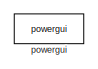
[diagram: root canvas - part 1/153, top left region]
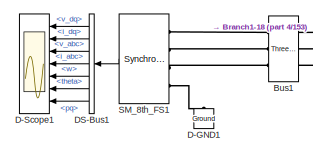
[diagram: root canvas - part 2/153, top left region]
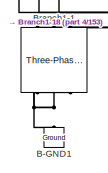
[diagram: root canvas - part 3/153, top left region]
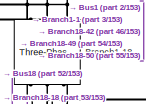
[diagram: root canvas - part 4/153, top left region]
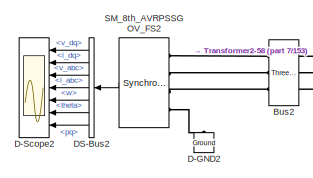
[diagram: root canvas - part 5/153, top left region]
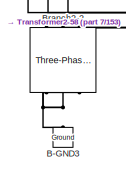
[diagram: root canvas - part 6/153, top left region]
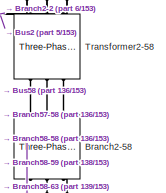
[diagram: root canvas - part 7/153, top right region]
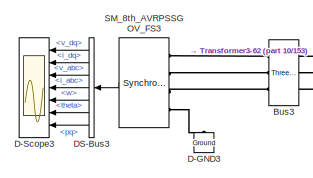
[diagram: root canvas - part 8/153, top left region]
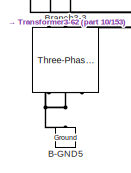
[diagram: root canvas - part 9/153, top left region]
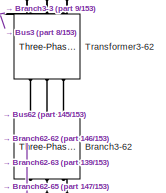
[diagram: root canvas - part 10/153, top right region]
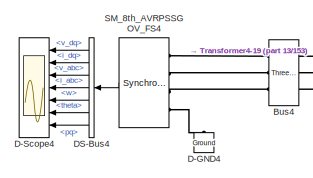
[diagram: root canvas - part 11/153, top left region]
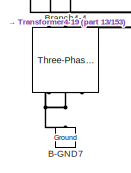
[diagram: root canvas - part 12/153, top left region]
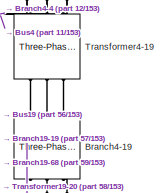
[diagram: root canvas - part 13/153, top left region]
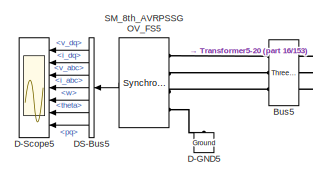
[diagram: root canvas - part 14/153, top left region]
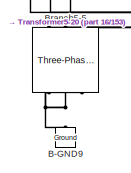
[diagram: root canvas - part 15/153, top left region]
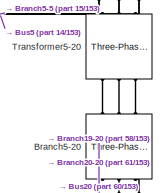
[diagram: root canvas - part 16/153, top left region]
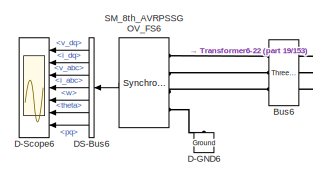
[diagram: root canvas - part 17/153, top left region]
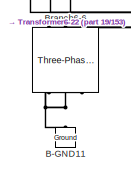
[diagram: root canvas - part 18/153, top left region]
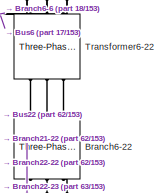
[diagram: root canvas - part 19/153, top left region]
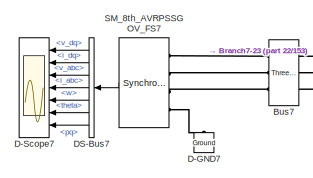
[diagram: root canvas - part 20/153, top left region]
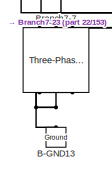
[diagram: root canvas - part 21/153, top left region]
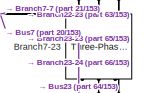
[diagram: root canvas - part 22/153, top left region]
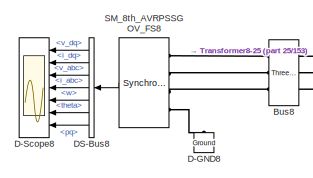
[diagram: root canvas - part 23/153, top left region]
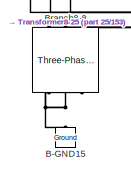
[diagram: root canvas - part 24/153, top left region]
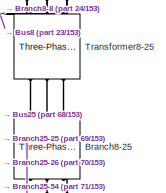
[diagram: root canvas - part 25/153, top center region]
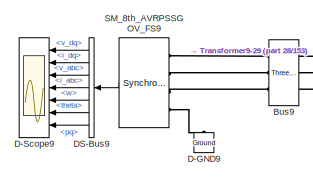
[diagram: root canvas - part 26/153, top left region]
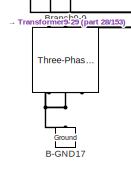
[diagram: root canvas - part 27/153, top left region]
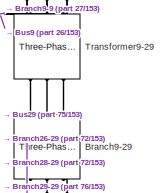
[diagram: root canvas - part 28/153, top center region]
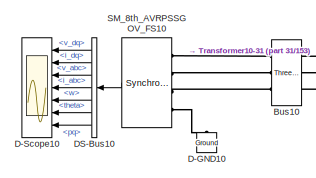
[diagram: root canvas - part 29/153, top left region]
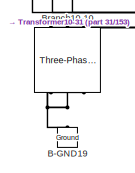
[diagram: root canvas - part 30/153, top left region]
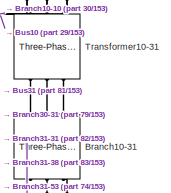
[diagram: root canvas - part 31/153, top center region]
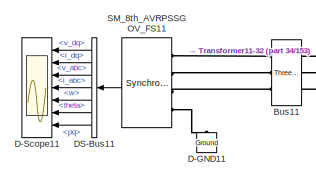
[diagram: root canvas - part 32/153, top left region]
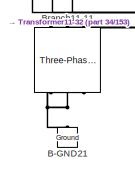
[diagram: root canvas - part 33/153, top left region]
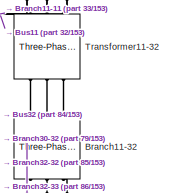
[diagram: root canvas - part 34/153, top center region]
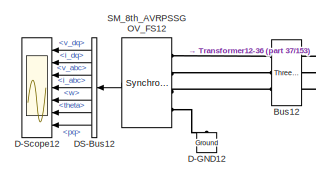
[diagram: root canvas - part 35/153, top left region]
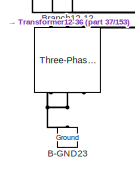
[diagram: root canvas - part 36/153, top left region]
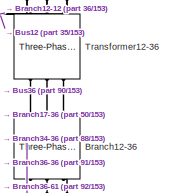
[diagram: root canvas - part 37/153, top center region]
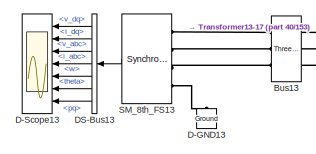
[diagram: root canvas - part 38/153, top left region]
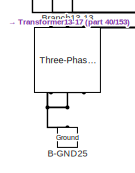
[diagram: root canvas - part 39/153, top left region]
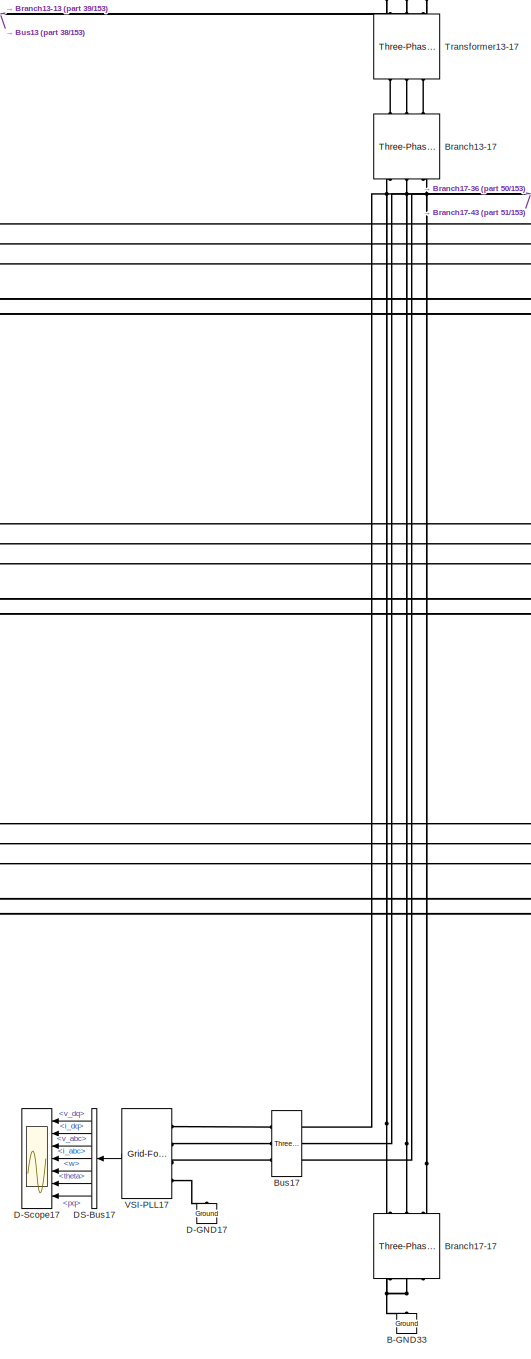
[diagram: root canvas - part 40/153, top left region]
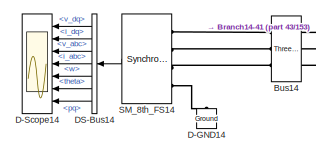
[diagram: root canvas - part 41/153, top left region]
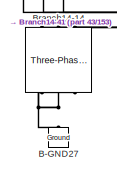
[diagram: root canvas - part 42/153, top left region]
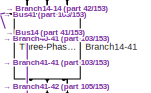
[diagram: root canvas - part 43/153, top center region]
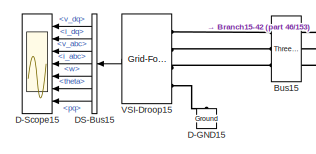
[diagram: root canvas - part 44/153, top left region]
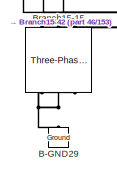
[diagram: root canvas - part 45/153, top left region]
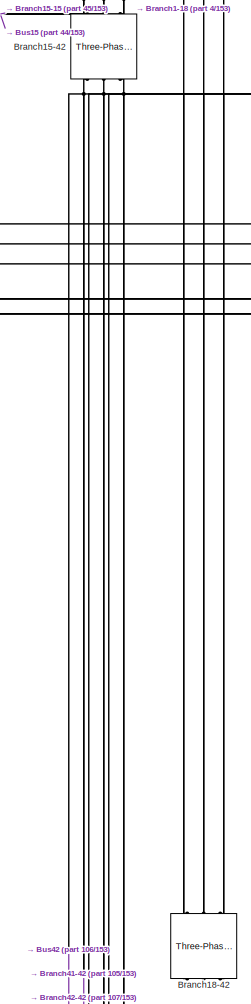
[diagram: root canvas - part 46/153, top center region]
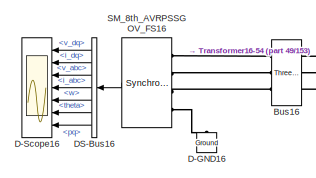
[diagram: root canvas - part 47/153, top left region]
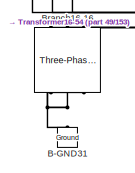
[diagram: root canvas - part 48/153, top left region]
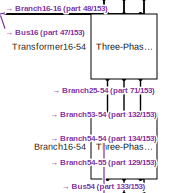
[diagram: root canvas - part 49/153, top right region]
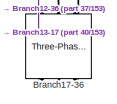
[diagram: root canvas - part 50/153, top center region]
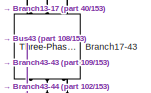
[diagram: root canvas - part 51/153, top center region]
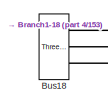
[diagram: root canvas - part 52/153, top left region]
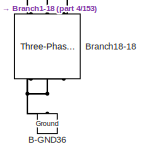
[diagram: root canvas - part 53/153, top left region]
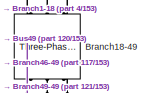
[diagram: root canvas - part 54/153, top right region]
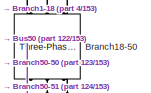
[diagram: root canvas - part 55/153, top right region]
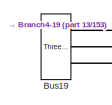
[diagram: root canvas - part 56/153, top left region]
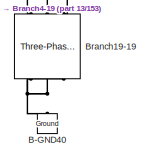
[diagram: root canvas - part 57/153, top left region]
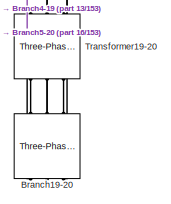
[diagram: root canvas - part 58/153, top left region]
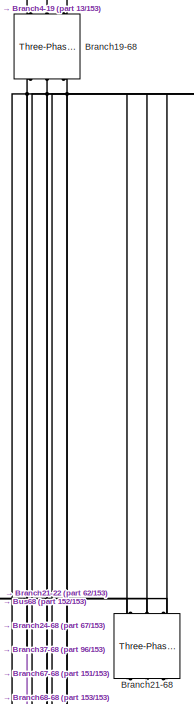
[diagram: root canvas - part 59/153, top right region]
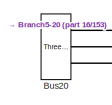
[diagram: root canvas - part 60/153, top left region]
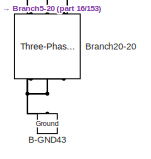
[diagram: root canvas - part 61/153, top left region]
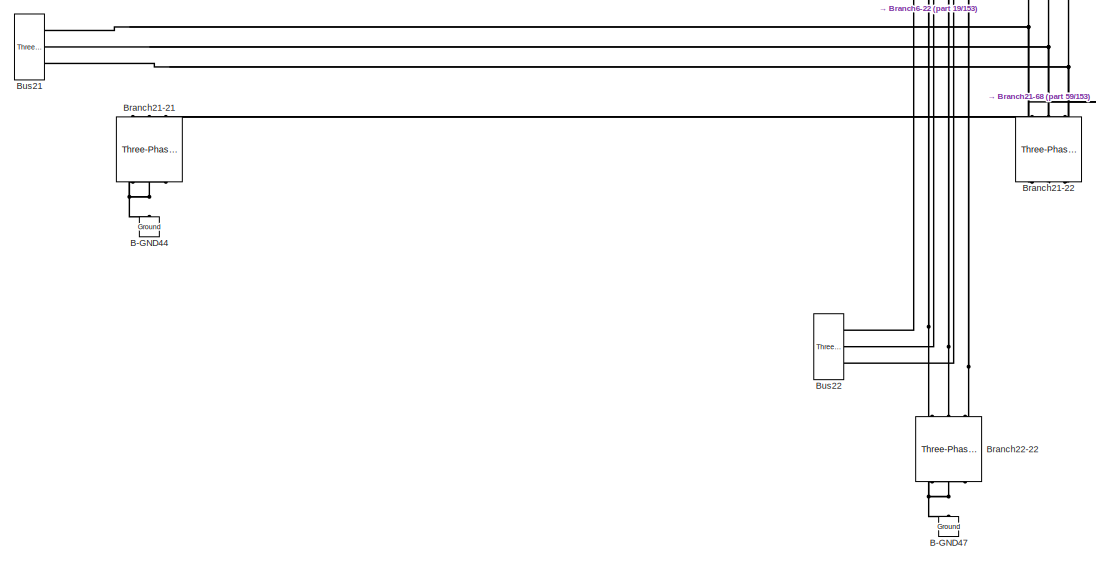
[diagram: root canvas - part 62/153, top left region]
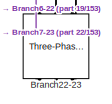
[diagram: root canvas - part 63/153, top left region]
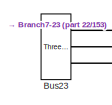
[diagram: root canvas - part 64/153, middle left region]
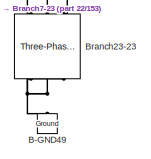
[diagram: root canvas - part 65/153, middle left region]
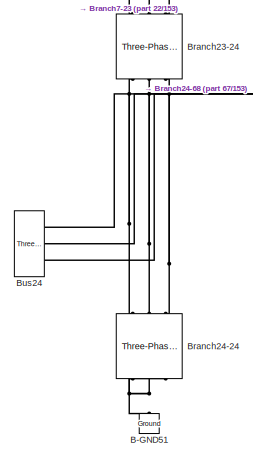
[diagram: root canvas - part 66/153, central region]
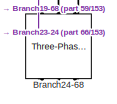
[diagram: root canvas - part 67/153, middle right region]
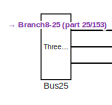
[diagram: root canvas - part 68/153, central region]
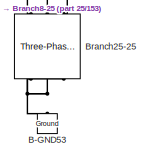
[diagram: root canvas - part 69/153, central region]
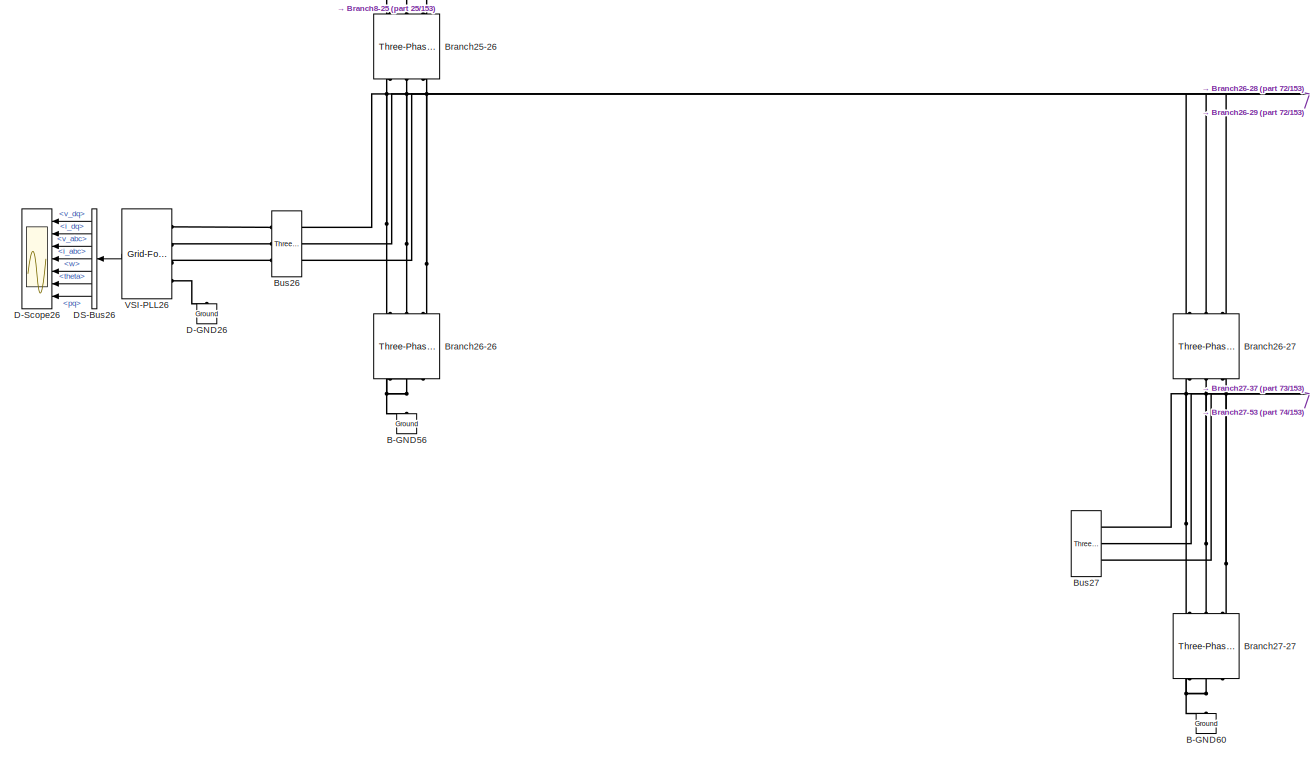
[diagram: root canvas - part 70/153, central region]
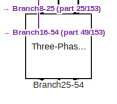
[diagram: root canvas - part 71/153, middle right region]
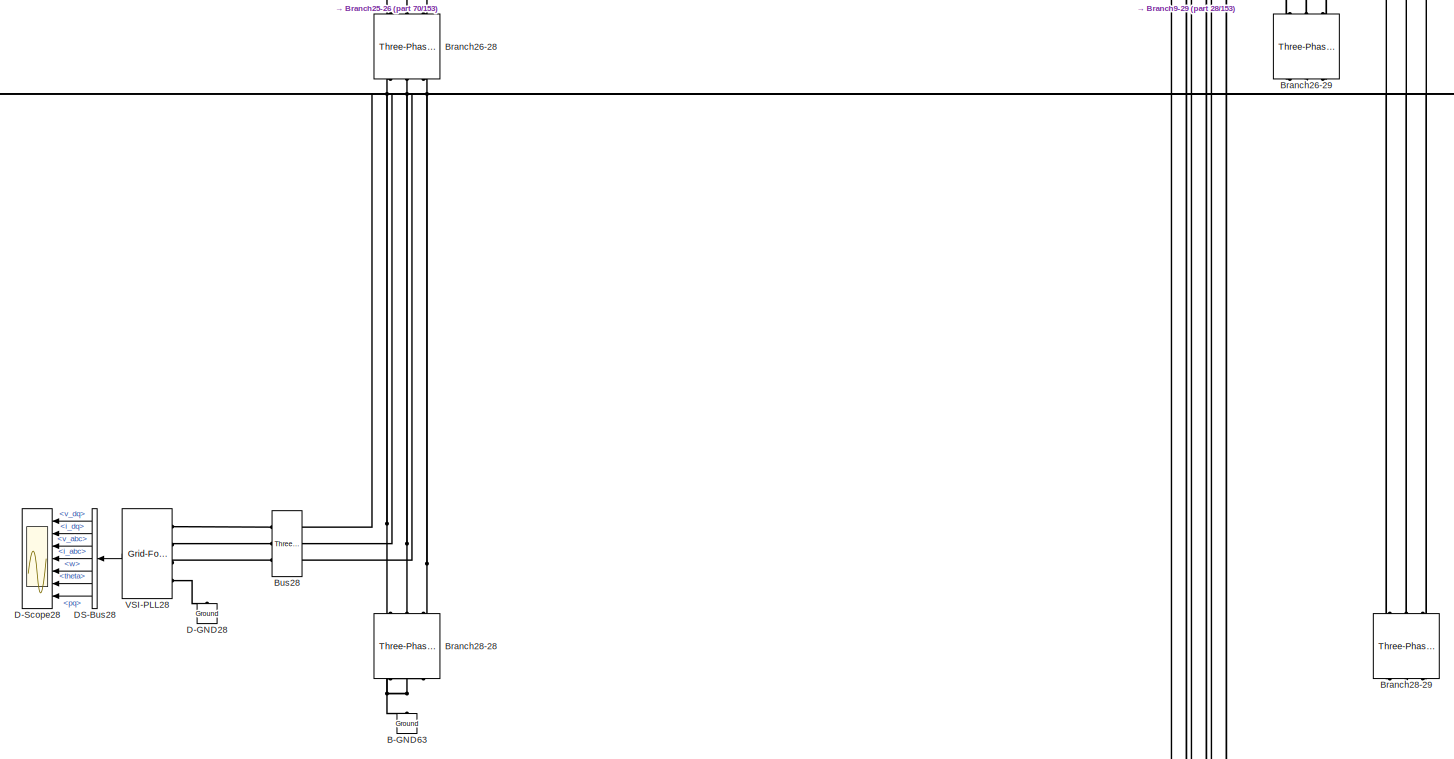
[diagram: root canvas - part 72/153, central region]
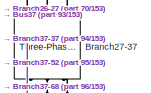
[diagram: root canvas - part 73/153, central region]
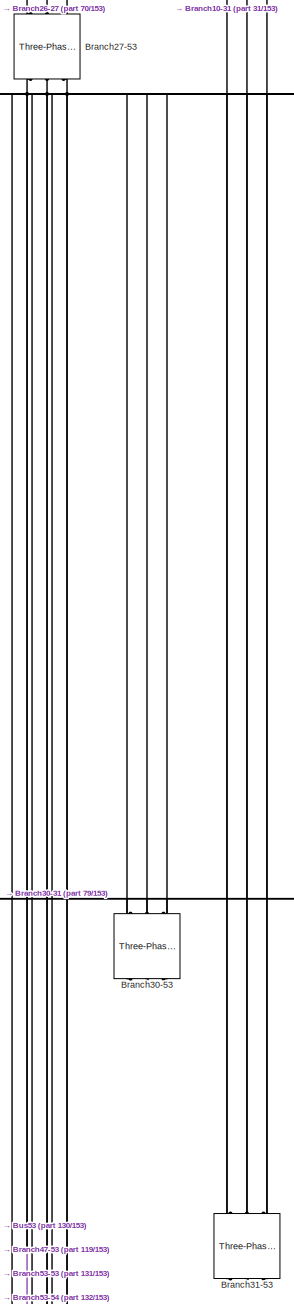
[diagram: root canvas - part 74/153, middle right region]
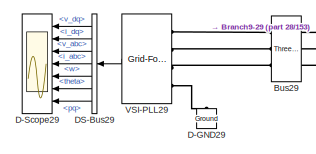
[diagram: root canvas - part 75/153, central region]
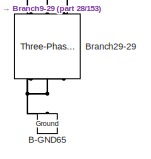
[diagram: root canvas - part 76/153, central region]
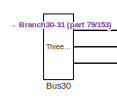
[diagram: root canvas - part 77/153, central region]
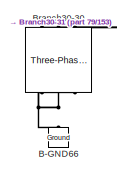
[diagram: root canvas - part 78/153, central region]
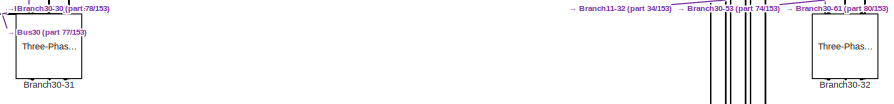
[diagram: root canvas - part 79/153, central region]
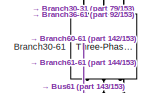
[diagram: root canvas - part 80/153, middle right region]
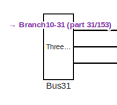
[diagram: root canvas - part 81/153, central region]
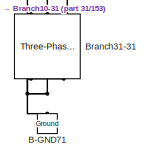
[diagram: root canvas - part 82/153, central region]
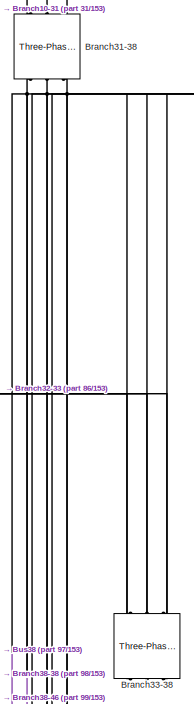
[diagram: root canvas - part 83/153, central region]
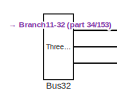
[diagram: root canvas - part 84/153, central region]
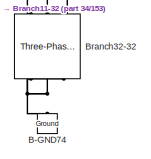
[diagram: root canvas - part 85/153, central region]
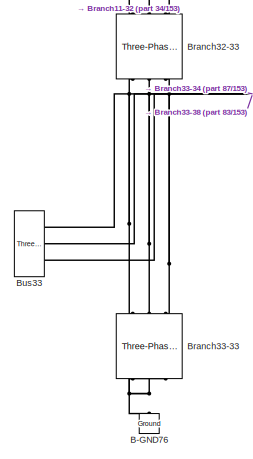
[diagram: root canvas - part 86/153, central region]
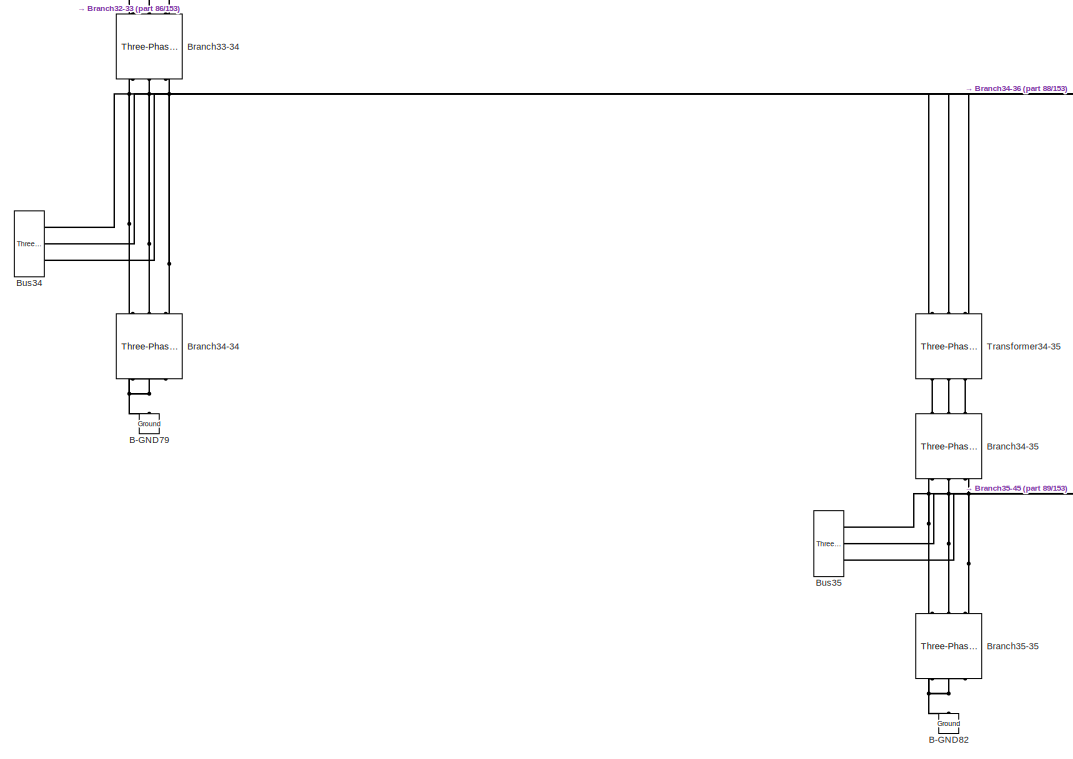
[diagram: root canvas - part 87/153, central region]
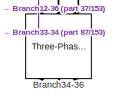
[diagram: root canvas - part 88/153, central region]
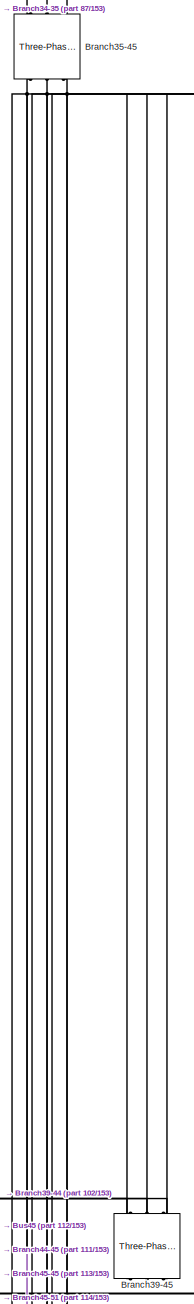
[diagram: root canvas - part 89/153, central region]
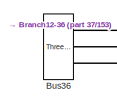
[diagram: root canvas - part 90/153, central region]
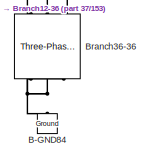
[diagram: root canvas - part 91/153, central region]
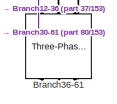
[diagram: root canvas - part 92/153, middle right region]
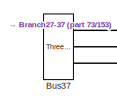
[diagram: root canvas - part 93/153, central region]
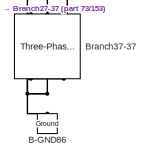
[diagram: root canvas - part 94/153, central region]
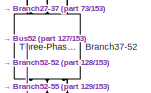
[diagram: root canvas - part 95/153, middle right region]
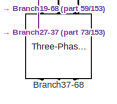
[diagram: root canvas - part 96/153, middle right region]
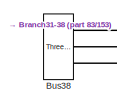
[diagram: root canvas - part 97/153, central region]
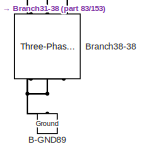
[diagram: root canvas - part 98/153, central region]
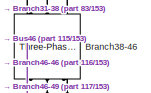
[diagram: root canvas - part 99/153, middle right region]
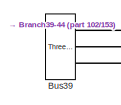
[diagram: root canvas - part 100/153, central region]
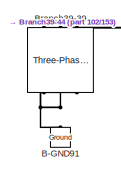
[diagram: root canvas - part 101/153, central region]
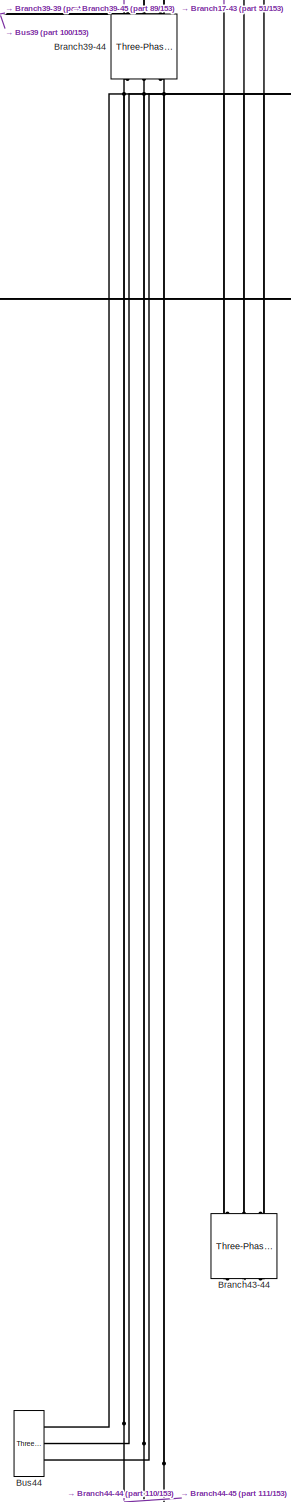
[diagram: root canvas - part 102/153, central region]
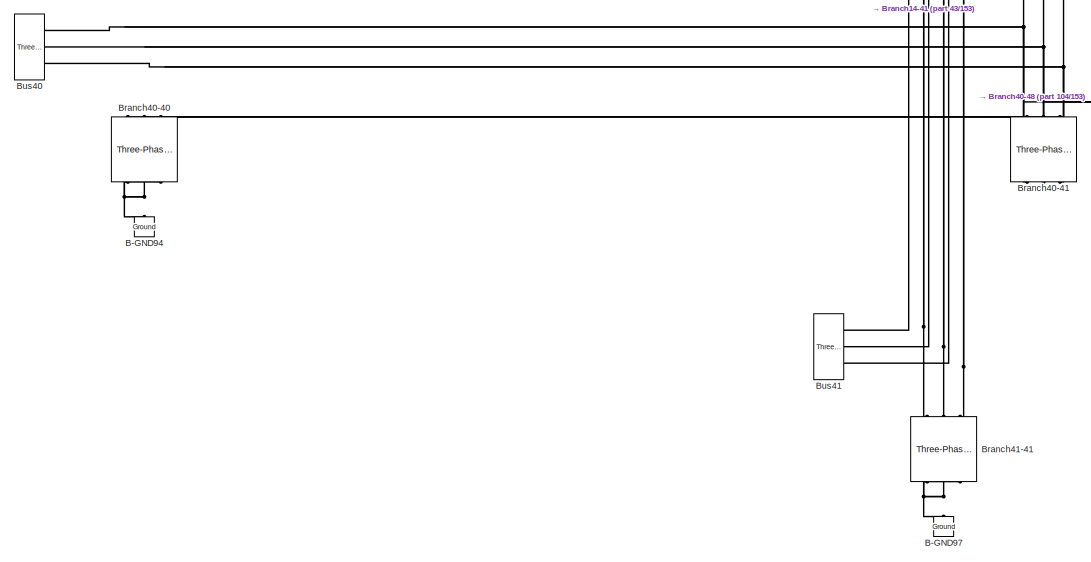
[diagram: root canvas - part 103/153, central region]
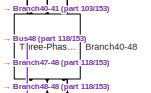
[diagram: root canvas - part 104/153, middle right region]
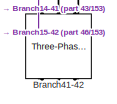
[diagram: root canvas - part 105/153, central region]
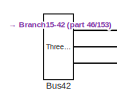
[diagram: root canvas - part 106/153, central region]
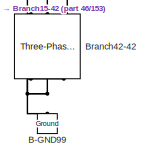
[diagram: root canvas - part 107/153, central region]
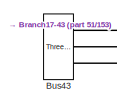
[diagram: root canvas - part 108/153, central region]
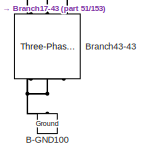
[diagram: root canvas - part 109/153, central region]
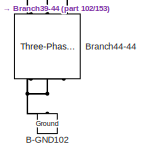
[diagram: root canvas - part 110/153, central region]
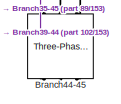
[diagram: root canvas - part 111/153, central region]
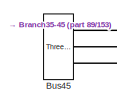
[diagram: root canvas - part 112/153, central region]
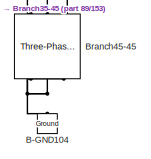
[diagram: root canvas - part 113/153, central region]
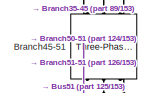
[diagram: root canvas - part 114/153, middle right region]
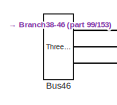
[diagram: root canvas - part 115/153, bottom center region]
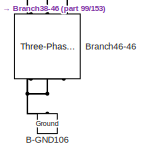
[diagram: root canvas - part 116/153, bottom right region]
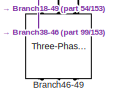
[diagram: root canvas - part 117/153, bottom right region]
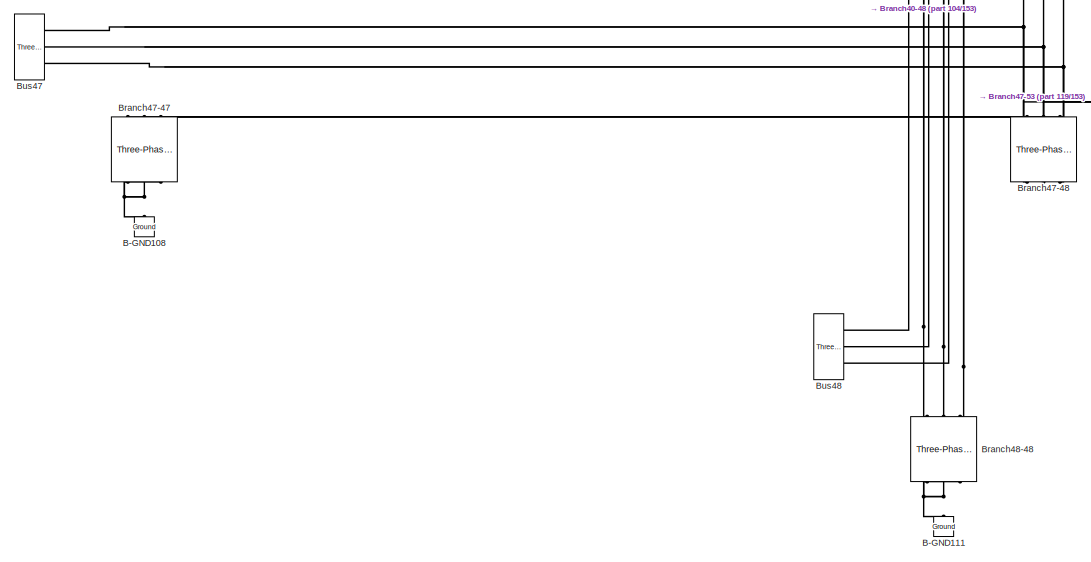
[diagram: root canvas - part 118/153, bottom right region]
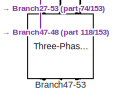
[diagram: root canvas - part 119/153, bottom right region]
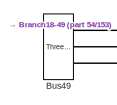
[diagram: root canvas - part 120/153, bottom right region]
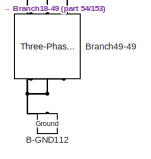
[diagram: root canvas - part 121/153, bottom right region]
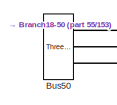
[diagram: root canvas - part 122/153, bottom right region]
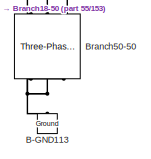
[diagram: root canvas - part 123/153, bottom right region]
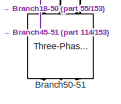
[diagram: root canvas - part 124/153, bottom right region]
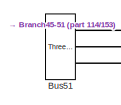
[diagram: root canvas - part 125/153, bottom right region]
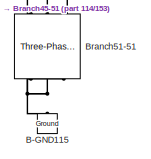
[diagram: root canvas - part 126/153, bottom right region]
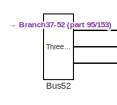
[diagram: root canvas - part 127/153, bottom right region]
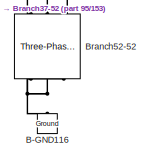
[diagram: root canvas - part 128/153, bottom right region]
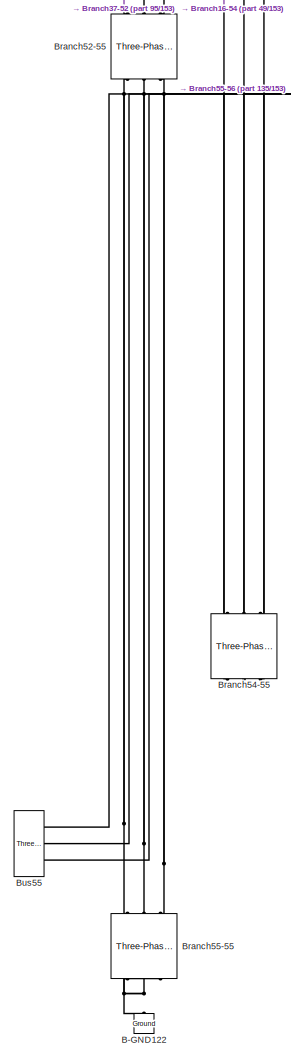
[diagram: root canvas - part 129/153, bottom right region]
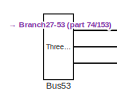
[diagram: root canvas - part 130/153, bottom right region]
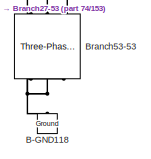
[diagram: root canvas - part 131/153, bottom right region]
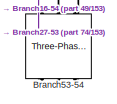
[diagram: root canvas - part 132/153, bottom right region]
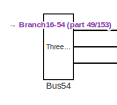
[diagram: root canvas - part 133/153, bottom right region]
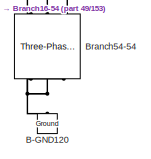
[diagram: root canvas - part 134/153, bottom right region]
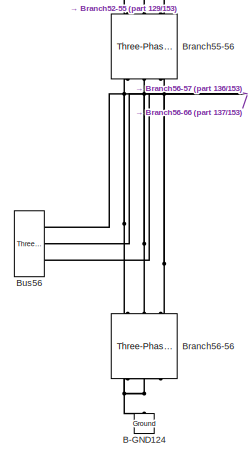
[diagram: root canvas - part 135/153, bottom right region]
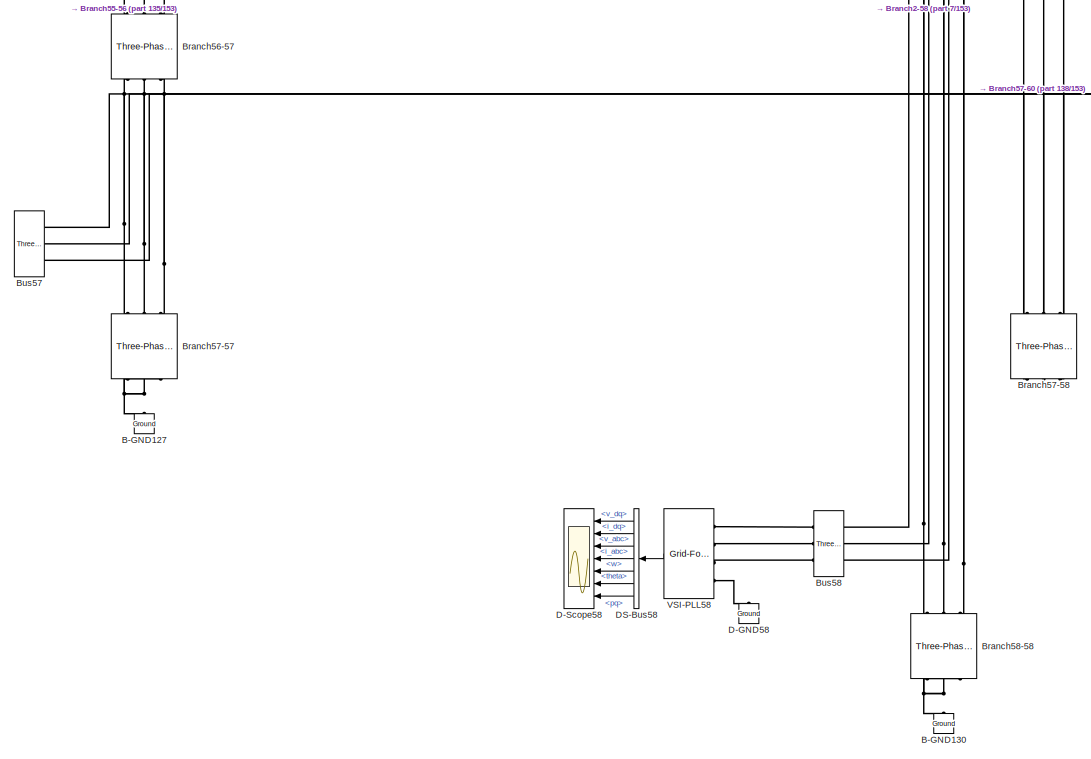
[diagram: root canvas - part 136/153, bottom right region]
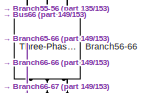
[diagram: root canvas - part 137/153, bottom right region]
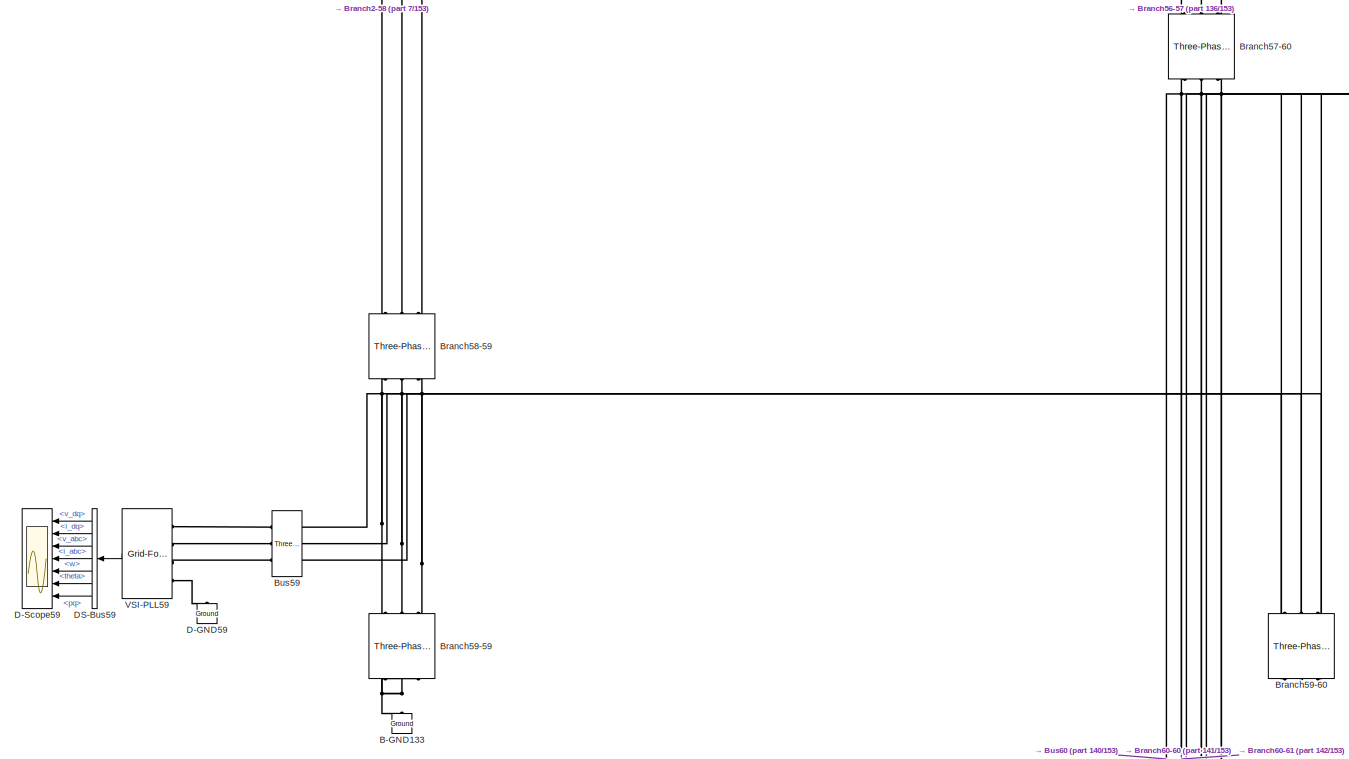
[diagram: root canvas - part 138/153, bottom right region]
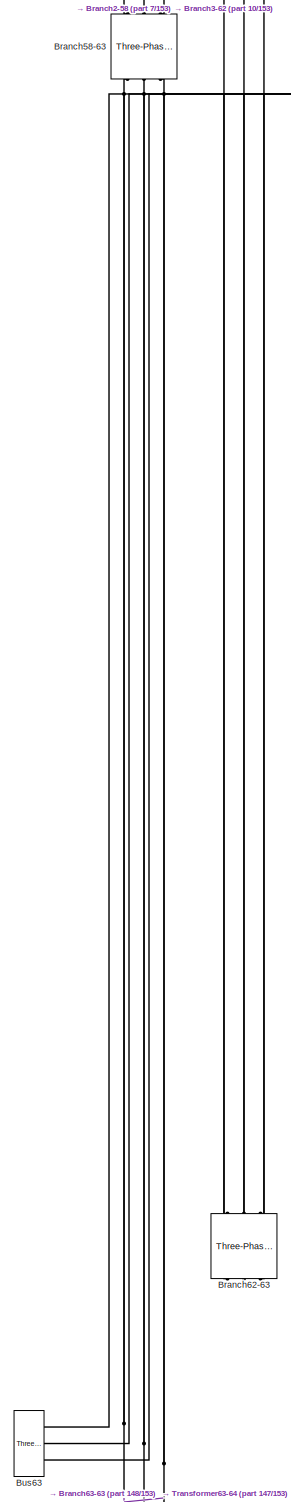
[diagram: root canvas - part 139/153, bottom right region]
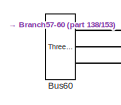
[diagram: root canvas - part 140/153, bottom right region]
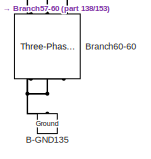
[diagram: root canvas - part 141/153, bottom right region]
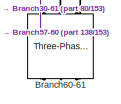
[diagram: root canvas - part 142/153, bottom right region]
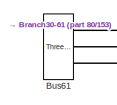
[diagram: root canvas - part 143/153, bottom right region]
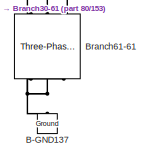
[diagram: root canvas - part 144/153, bottom right region]
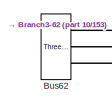
[diagram: root canvas - part 145/153, bottom right region]
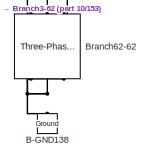
[diagram: root canvas - part 146/153, bottom right region]
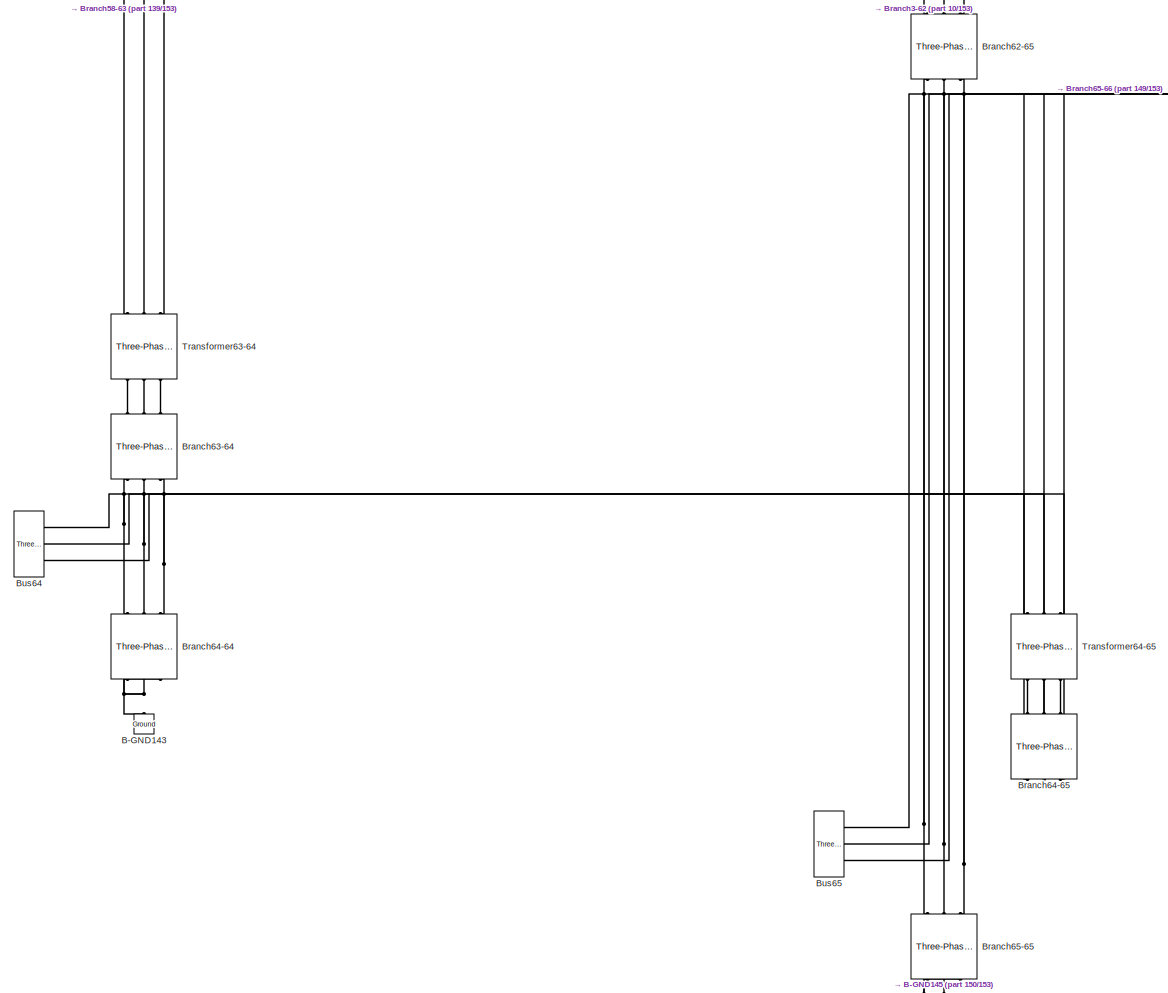
[diagram: root canvas - part 147/153, bottom right region]
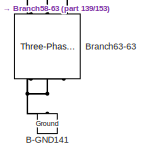
[diagram: root canvas - part 148/153, bottom right region]
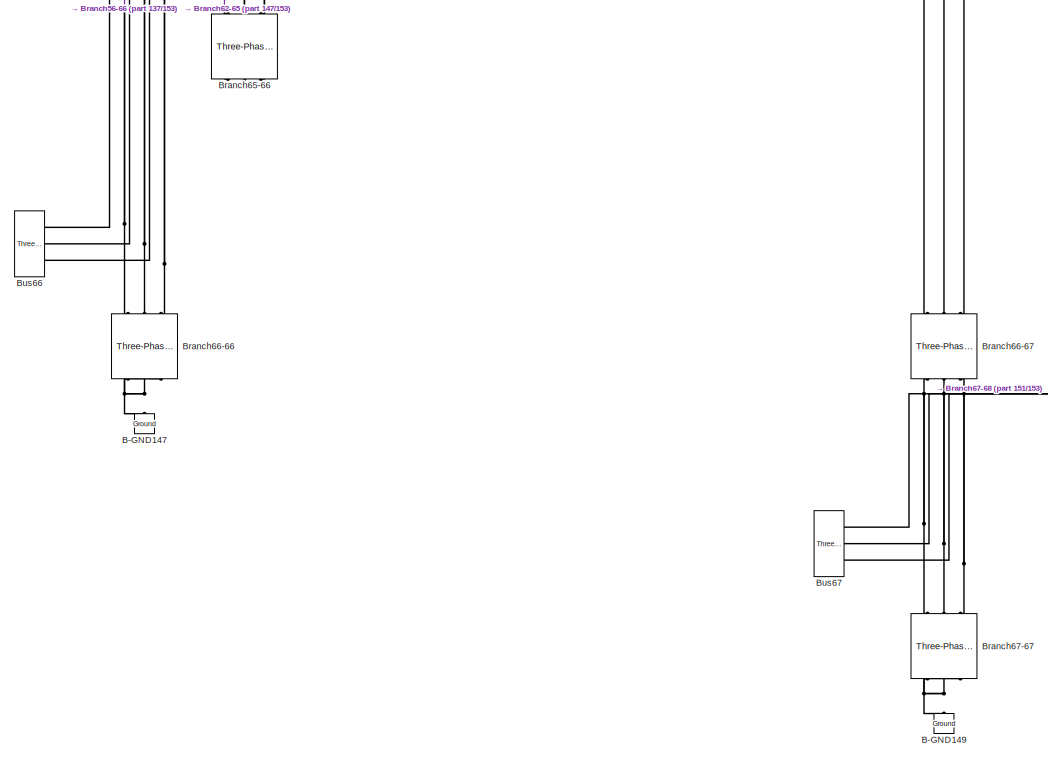
[diagram: root canvas - part 149/153, bottom right region]
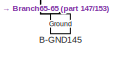
[diagram: root canvas - part 150/153, bottom right region]
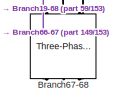
[diagram: root canvas - part 151/153, bottom right region]
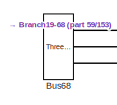
[diagram: root canvas - part 152/153, bottom right region]
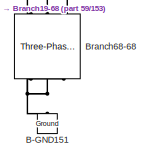
[diagram: root canvas - part 153/153, bottom right region]
MODEL slx_240998246144
KIND model
CONFIG AbsTol = auto
CONFIG EnableMultiTasking = off
CONFIG FixedStep = Ts
CONFIG MaxStep = auto
CONFIG MinStep = auto
CONFIG RelTol = 1e-3
CONFIG SampleTimeConstraint = Unconstrained
CONFIG Solver = FixedStepAuto
CONFIG SolverName = FixedStepAuto
CONFIG StartTime = 0
CONFIG StopTime = 5
BLOCK [Reference] B-GND1  REF=powerlib/Elements/Ground
  Ports = [0, 0, 0, 0, 0, 1]
  SourceBlock = powerlib/Elements/Ground
  SourceProductBaseCode = PS
  SourceProductName = Simscape Power Systems
  SourceType = Ground
BLOCK [Reference] B-GND100  REF=powerlib/Elements/Ground
  Ports = [0, 0, 0, 0, 0, 1]
  SourceBlock = powerlib/Elements/Ground
  SourceProductBaseCode = PS
  SourceProductName = Simscape Power Systems
  SourceType = Ground
BLOCK [Reference] B-GND102  REF=powerlib/Elements/Ground
  Ports = [0, 0, 0, 0, 0, 1]
  SourceBlock = powerlib/Elements/Ground
  SourceProductBaseCode = PS
  SourceProductName = Simscape Power Systems
  SourceType = Ground
BLOCK [Reference] B-GND104  REF=powerlib/Elements/Ground
  Ports = [0, 0, 0, 0, 0, 1]
  SourceBlock = powerlib/Elements/Ground
  SourceProductBaseCode = PS
  SourceProductName = Simscape Power Systems
  SourceType = Ground
BLOCK [Reference] B-GND106  REF=powerlib/Elements/Ground
  Ports = [0, 0, 0, 0, 0, 1]
  SourceBlock = powerlib/Elements/Ground
  SourceProductBaseCode = PS
  SourceProductName = Simscape Power Systems
  SourceType = Ground
BLOCK [Reference] B-GND108  REF=powerlib/Elements/Ground
  Ports = [0, 0, 0, 0, 0, 1]
  SourceBlock = powerlib/Elements/Ground
  SourceProductBaseCode = PS
  SourceProductName = Simscape Power Systems
  SourceType = Ground
BLOCK [Reference] B-GND11  REF=powerlib/Elements/Ground
  Ports = [0, 0, 0, 0, 0, 1]
  SourceBlock = powerlib/Elements/Ground
  SourceProductBaseCode = PS
  SourceProductName = Simscape Power Systems
  SourceType = Ground
BLOCK [Reference] B-GND111  REF=powerlib/Elements/Ground
  Ports = [0, 0, 0, 0, 0, 1]
  SourceBlock = powerlib/Elements/Ground
  SourceProductBaseCode = PS
  SourceProductName = Simscape Power Systems
  SourceType = Ground
BLOCK [Reference] B-GND112  REF=powerlib/Elements/Ground
  Ports = [0, 0, 0, 0, 0, 1]
  SourceBlock = powerlib/Elements/Ground
  SourceProductBaseCode = PS
  SourceProductName = Simscape Power Systems
  SourceType = Ground
BLOCK [Reference] B-GND113  REF=powerlib/Elements/Ground
  Ports = [0, 0, 0, 0, 0, 1]
  SourceBlock = powerlib/Elements/Ground
  SourceProductBaseCode = PS
  SourceProductName = Simscape Power Systems
  SourceType = Ground
BLOCK [Reference] B-GND115  REF=powerlib/Elements/Ground
  Ports = [0, 0, 0, 0, 0, 1]
  SourceBlock = powerlib/Elements/Ground
  SourceProductBaseCode = PS
  SourceProductName = Simscape Power Systems
  SourceType = Ground
BLOCK [Reference] B-GND116  REF=powerlib/Elements/Ground
  Ports = [0, 0, 0, 0, 0, 1]
  SourceBlock = powerlib/Elements/Ground
  SourceProductBaseCode = PS
  SourceProductName = Simscape Power Systems
  SourceType = Ground
BLOCK [Reference] B-GND118  REF=powerlib/Elements/Ground
  Ports = [0, 0, 0, 0, 0, 1]
  SourceBlock = powerlib/Elements/Ground
  SourceProductBaseCode = PS
  SourceProductName = Simscape Power Systems
  SourceType = Ground
BLOCK [Reference] B-GND120  REF=powerlib/Elements/Ground
  Ports = [0, 0, 0, 0, 0, 1]
  SourceBlock = powerlib/Elements/Ground
  SourceProductBaseCode = PS
  SourceProductName = Simscape Power Systems
  SourceType = Ground
BLOCK [Reference] B-GND122  REF=powerlib/Elements/Ground
  Ports = [0, 0, 0, 0, 0, 1]
  SourceBlock = powerlib/Elements/Ground
  SourceProductBaseCode = PS
  SourceProductName = Simscape Power Systems
  SourceType = Ground
BLOCK [Reference] B-GND124  REF=powerlib/Elements/Ground
  Ports = [0, 0, 0, 0, 0, 1]
  SourceBlock = powerlib/Elements/Ground
  SourceProductBaseCode = PS
  SourceProductName = Simscape Power Systems
  SourceType = Ground
BLOCK [Reference] B-GND127  REF=powerlib/Elements/Ground
  Ports = [0, 0, 0, 0, 0, 1]
  SourceBlock = powerlib/Elements/Ground
  SourceProductBaseCode = PS
  SourceProductName = Simscape Power Systems
  SourceType = Ground
BLOCK [Reference] B-GND13  REF=powerlib/Elements/Ground
  Ports = [0, 0, 0, 0, 0, 1]
  SourceBlock = powerlib/Elements/Ground
  SourceProductBaseCode = PS
  SourceProductName = Simscape Power Systems
  SourceType = Ground
BLOCK [Reference] B-GND130  REF=powerlib/Elements/Ground
  Ports = [0, 0, 0, 0, 0, 1]
  SourceBlock = powerlib/Elements/Ground
  SourceProductBaseCode = PS
  SourceProductName = Simscape Power Systems
  SourceType = Ground
BLOCK [Reference] B-GND133  REF=powerlib/Elements/Ground
  Ports = [0, 0, 0, 0, 0, 1]
  SourceBlock = powerlib/Elements/Ground
  SourceProductBaseCode = PS
  SourceProductName = Simscape Power Systems
  SourceType = Ground
BLOCK [Reference] B-GND135  REF=powerlib/Elements/Ground
  Ports = [0, 0, 0, 0, 0, 1]
  SourceBlock = powerlib/Elements/Ground
  SourceProductBaseCode = PS
  SourceProductName = Simscape Power Systems
  SourceType = Ground
BLOCK [Reference] B-GND137  REF=powerlib/Elements/Ground
  Ports = [0, 0, 0, 0, 0, 1]
  SourceBlock = powerlib/Elements/Ground
  SourceProductBaseCode = PS
  SourceProductName = Simscape Power Systems
  SourceType = Ground
BLOCK [Reference] B-GND138  REF=powerlib/Elements/Ground
  Ports = [0, 0, 0, 0, 0, 1]
  SourceBlock = powerlib/Elements/Ground
  SourceProductBaseCode = PS
  SourceProductName = Simscape Power Systems
  SourceType = Ground
BLOCK [Reference] B-GND141  REF=powerlib/Elements/Ground
  Ports = [0, 0, 0, 0, 0, 1]
  SourceBlock = powerlib/Elements/Ground
  SourceProductBaseCode = PS
  SourceProductName = Simscape Power Systems
  SourceType = Ground
BLOCK [Reference] B-GND143  REF=powerlib/Elements/Ground
  Ports = [0, 0, 0, 0, 0, 1]
  SourceBlock = powerlib/Elements/Ground
  SourceProductBaseCode = PS
  SourceProductName = Simscape Power Systems
  SourceType = Ground
BLOCK [Reference] B-GND145  REF=powerlib/Elements/Ground
  Ports = [0, 0, 0, 0, 0, 1]
  SourceBlock = powerlib/Elements/Ground
  SourceProductBaseCode = PS
  SourceProductName = Simscape Power Systems
  SourceType = Ground
BLOCK [Reference] B-GND147  REF=powerlib/Elements/Ground
  Ports = [0, 0, 0, 0, 0, 1]
  SourceBlock = powerlib/Elements/Ground
  SourceProductBaseCode = PS
  SourceProductName = Simscape Power Systems
  SourceType = Ground
BLOCK [Reference] B-GND149  REF=powerlib/Elements/Ground
  Ports = [0, 0, 0, 0, 0, 1]
  SourceBlock = powerlib/Elements/Ground
  SourceProductBaseCode = PS
  SourceProductName = Simscape Power Systems
  SourceType = Ground
BLOCK [Reference] B-GND15  REF=powerlib/Elements/Ground
  Ports = [0, 0, 0, 0, 0, 1]
  SourceBlock = powerlib/Elements/Ground
  SourceProductBaseCode = PS
  SourceProductName = Simscape Power Systems
  SourceType = Ground
BLOCK [Reference] B-GND151  REF=powerlib/Elements/Ground
  Ports = [0, 0, 0, 0, 0, 1]
  SourceBlock = powerlib/Elements/Ground
  SourceProductBaseCode = PS
  SourceProductName = Simscape Power Systems
  SourceType = Ground
BLOCK [Reference] B-GND17  REF=powerlib/Elements/Ground
  Ports = [0, 0, 0, 0, 0, 1]
  SourceBlock = powerlib/Elements/Ground
  SourceProductBaseCode = PS
  SourceProductName = Simscape Power Systems
  SourceType = Ground
BLOCK [Reference] B-GND19  REF=powerlib/Elements/Ground
  Ports = [0, 0, 0, 0, 0, 1]
  SourceBlock = powerlib/Elements/Ground
  SourceProductBaseCode = PS
  SourceProductName = Simscape Power Systems
  SourceType = Ground
BLOCK [Reference] B-GND21  REF=powerlib/Elements/Ground
  Ports = [0, 0, 0, 0, 0, 1]
  SourceBlock = powerlib/Elements/Ground
  SourceProductBaseCode = PS
  SourceProductName = Simscape Power Systems
  SourceType = Ground
BLOCK [Reference] B-GND23  REF=powerlib/Elements/Ground
  Ports = [0, 0, 0, 0, 0, 1]
  SourceBlock = powerlib/Elements/Ground
  SourceProductBaseCode = PS
  SourceProductName = Simscape Power Systems
  SourceType = Ground
BLOCK [Reference] B-GND25  REF=powerlib/Elements/Ground
  Ports = [0, 0, 0, 0, 0, 1]
  SourceBlock = powerlib/Elements/Ground
  SourceProductBaseCode = PS
  SourceProductName = Simscape Power Systems
  SourceType = Ground
BLOCK [Reference] B-GND27  REF=powerlib/Elements/Ground
  Ports = [0, 0, 0, 0, 0, 1]
  SourceBlock = powerlib/Elements/Ground
  SourceProductBaseCode = PS
  SourceProductName = Simscape Power Systems
  SourceType = Ground
BLOCK [Reference] B-GND29  REF=powerlib/Elements/Ground
  Ports = [0, 0, 0, 0, 0, 1]
  SourceBlock = powerlib/Elements/Ground
  SourceProductBaseCode = PS
  SourceProductName = Simscape Power Systems
  SourceType = Ground
BLOCK [Reference] B-GND3  REF=powerlib/Elements/Ground
  Ports = [0, 0, 0, 0, 0, 1]
  SourceBlock = powerlib/Elements/Ground
  SourceProductBaseCode = PS
  SourceProductName = Simscape Power Systems
  SourceType = Ground
BLOCK [Reference] B-GND31  REF=powerlib/Elements/Ground
  Ports = [0, 0, 0, 0, 0, 1]
  SourceBlock = powerlib/Elements/Ground
  SourceProductBaseCode = PS
  SourceProductName = Simscape Power Systems
  SourceType = Ground
BLOCK [Reference] B-GND33  REF=powerlib/Elements/Ground
  Ports = [0, 0, 0, 0, 0, 1]
  SourceBlock = powerlib/Elements/Ground
  SourceProductBaseCode = PS
  SourceProductName = Simscape Power Systems
  SourceType = Ground
BLOCK [Reference] B-GND36  REF=powerlib/Elements/Ground
  Ports = [0, 0, 0, 0, 0, 1]
  SourceBlock = powerlib/Elements/Ground
  SourceProductBaseCode = PS
  SourceProductName = Simscape Power Systems
  SourceType = Ground
BLOCK [Reference] B-GND40  REF=powerlib/Elements/Ground
  Ports = [0, 0, 0, 0, 0, 1]
  SourceBlock = powerlib/Elements/Ground
  SourceProductBaseCode = PS
  SourceProductName = Simscape Power Systems
  SourceType = Ground
BLOCK [Reference] B-GND43  REF=powerlib/Elements/Ground
  Ports = [0, 0, 0, 0, 0, 1]
  SourceBlock = powerlib/Elements/Ground
  SourceProductBaseCode = PS
  SourceProductName = Simscape Power Systems
  SourceType = Ground
BLOCK [Reference] B-GND44  REF=powerlib/Elements/Ground
  Ports = [0, 0, 0, 0, 0, 1]
  SourceBlock = powerlib/Elements/Ground
  SourceProductBaseCode = PS
  SourceProductName = Simscape Power Systems
  SourceType = Ground
BLOCK [Reference] B-GND47  REF=powerlib/Elements/Ground
  Ports = [0, 0, 0, 0, 0, 1]
  SourceBlock = powerlib/Elements/Ground
  SourceProductBaseCode = PS
  SourceProductName = Simscape Power Systems
  SourceType = Ground
BLOCK [Reference] B-GND49  REF=powerlib/Elements/Ground
  Ports = [0, 0, 0, 0, 0, 1]
  SourceBlock = powerlib/Elements/Ground
  SourceProductBaseCode = PS
  SourceProductName = Simscape Power Systems
  SourceType = Ground
BLOCK [Reference] B-GND5  REF=powerlib/Elements/Ground
  Ports = [0, 0, 0, 0, 0, 1]
  SourceBlock = powerlib/Elements/Ground
  SourceProductBaseCode = PS
  SourceProductName = Simscape Power Systems
  SourceType = Ground
BLOCK [Reference] B-GND51  REF=powerlib/Elements/Ground
  Ports = [0, 0, 0, 0, 0, 1]
  SourceBlock = powerlib/Elements/Ground
  SourceProductBaseCode = PS
  SourceProductName = Simscape Power Systems
  SourceType = Ground
BLOCK [Reference] B-GND53  REF=powerlib/Elements/Ground
  Ports = [0, 0, 0, 0, 0, 1]
  SourceBlock = powerlib/Elements/Ground
  SourceProductBaseCode = PS
  SourceProductName = Simscape Power Systems
  SourceType = Ground
BLOCK [Reference] B-GND56  REF=powerlib/Elements/Ground
  Ports = [0, 0, 0, 0, 0, 1]
  SourceBlock = powerlib/Elements/Ground
  SourceProductBaseCode = PS
  SourceProductName = Simscape Power Systems
  SourceType = Ground
BLOCK [Reference] B-GND60  REF=powerlib/Elements/Ground
  Ports = [0, 0, 0, 0, 0, 1]
  SourceBlock = powerlib/Elements/Ground
  SourceProductBaseCode = PS
  SourceProductName = Simscape Power Systems
  SourceType = Ground
BLOCK [Reference] B-GND63  REF=powerlib/Elements/Ground
  Ports = [0, 0, 0, 0, 0, 1]
  SourceBlock = powerlib/Elements/Ground
  SourceProductBaseCode = PS
  SourceProductName = Simscape Power Systems
  SourceType = Ground
BLOCK [Reference] B-GND65  REF=powerlib/Elements/Ground
  Ports = [0, 0, 0, 0, 0, 1]
  SourceBlock = powerlib/Elements/Ground
  SourceProductBaseCode = PS
  SourceProductName = Simscape Power Systems
  SourceType = Ground
BLOCK [Reference] B-GND66  REF=powerlib/Elements/Ground
  Ports = [0, 0, 0, 0, 0, 1]
  SourceBlock = powerlib/Elements/Ground
  SourceProductBaseCode = PS
  SourceProductName = Simscape Power Systems
  SourceType = Ground
BLOCK [Reference] B-GND7  REF=powerlib/Elements/Ground
  Ports = [0, 0, 0, 0, 0, 1]
  SourceBlock = powerlib/Elements/Ground
  SourceProductBaseCode = PS
  SourceProductName = Simscape Power Systems
  SourceType = Ground
BLOCK [Reference] B-GND71  REF=powerlib/Elements/Ground
  Ports = [0, 0, 0, 0, 0, 1]
  SourceBlock = powerlib/Elements/Ground
  SourceProductBaseCode = PS
  SourceProductName = Simscape Power Systems
  SourceType = Ground
BLOCK [Reference] B-GND74  REF=powerlib/Elements/Ground
  Ports = [0, 0, 0, 0, 0, 1]
  SourceBlock = powerlib/Elements/Ground
  SourceProductBaseCode = PS
  SourceProductName = Simscape Power Systems
  SourceType = Ground
BLOCK [Reference] B-GND76  REF=powerlib/Elements/Ground
  Ports = [0, 0, 0, 0, 0, 1]
  SourceBlock = powerlib/Elements/Ground
  SourceProductBaseCode = PS
  SourceProductName = Simscape Power Systems
  SourceType = Ground
BLOCK [Reference] B-GND79  REF=powerlib/Elements/Ground
  Ports = [0, 0, 0, 0, 0, 1]
  SourceBlock = powerlib/Elements/Ground
  SourceProductBaseCode = PS
  SourceProductName = Simscape Power Systems
  SourceType = Ground
BLOCK [Reference] B-GND82  REF=powerlib/Elements/Ground
  Ports = [0, 0, 0, 0, 0, 1]
  SourceBlock = powerlib/Elements/Ground
  SourceProductBaseCode = PS
  SourceProductName = Simscape Power Systems
  SourceType = Ground
BLOCK [Reference] B-GND84  REF=powerlib/Elements/Ground
  Ports = [0, 0, 0, 0, 0, 1]
  SourceBlock = powerlib/Elements/Ground
  SourceProductBaseCode = PS
  SourceProductName = Simscape Power Systems
  SourceType = Ground
BLOCK [Reference] B-GND86  REF=powerlib/Elements/Ground
  Ports = [0, 0, 0, 0, 0, 1]
  SourceBlock = powerlib/Elements/Ground
  SourceProductBaseCode = PS
  SourceProductName = Simscape Power Systems
  SourceType = Ground
BLOCK [Reference] B-GND89  REF=powerlib/Elements/Ground
  Ports = [0, 0, 0, 0, 0, 1]
  SourceBlock = powerlib/Elements/Ground
  SourceProductBaseCode = PS
  SourceProductName = Simscape Power Systems
  SourceType = Ground
BLOCK [Reference] B-GND9  REF=powerlib/Elements/Ground
  Ports = [0, 0, 0, 0, 0, 1]
  SourceBlock = powerlib/Elements/Ground
  SourceProductBaseCode = PS
  SourceProductName = Simscape Power Systems
  SourceType = Ground
BLOCK [Reference] B-GND91  REF=powerlib/Elements/Ground
  Ports = [0, 0, 0, 0, 0, 1]
  SourceBlock = powerlib/Elements/Ground
  SourceProductBaseCode = PS
  SourceProductName = Simscape Power Systems
  SourceType = Ground
BLOCK [Reference] B-GND94  REF=powerlib/Elements/Ground
  Ports = [0, 0, 0, 0, 0, 1]
  SourceBlock = powerlib/Elements/Ground
  SourceProductBaseCode = PS
  SourceProductName = Simscape Power Systems
  SourceType = Ground
BLOCK [Reference] B-GND97  REF=powerlib/Elements/Ground
  Ports = [0, 0, 0, 0, 0, 1]
  SourceBlock = powerlib/Elements/Ground
  SourceProductBaseCode = PS
  SourceProductName = Simscape Power Systems
  SourceType = Ground
BLOCK [Reference] B-GND99  REF=powerlib/Elements/Ground
  Ports = [0, 0, 0, 0, 0, 1]
  SourceBlock = powerlib/Elements/Ground
  SourceProductBaseCode = PS
  SourceProductName = Simscape Power Systems
  SourceType = Ground
BLOCK [Reference] Branch1-1  REF=powerlib/Elements/Three-Phase
Parallel RLC Branch
  AttributesFormatString = \n
  Ports = [0, 0, 0, 0, 0, 3, 3]
  SourceBlock = powerlib/Elements/Three-Phase\nParallel RLC Branch
  SourceProductBaseCode = PS
  SourceProductName = Simscape Power Systems
  SourceType = Three-Phase Parallel RLC Branch
BLOCK [Reference] Branch1-18  REF=powerlib/Elements/Three-Phase
Series RLC Branch
  AttributesFormatString = \n
  Ports = [0, 0, 0, 0, 0, 3, 3]
  SourceBlock = powerlib/Elements/Three-Phase\nSeries RLC Branch
  SourceProductBaseCode = PS
  SourceProductName = Simscape Power Systems
  SourceType = Three-Phase Series RLC Branch
BLOCK [Reference] Branch10-10  REF=powerlib/Elements/Three-Phase
Parallel RLC Branch
  AttributesFormatString = \n
  Ports = [0, 0, 0, 0, 0, 3, 3]
  SourceBlock = powerlib/Elements/Three-Phase\nParallel RLC Branch
  SourceProductBaseCode = PS
  SourceProductName = Simscape Power Systems
  SourceType = Three-Phase Parallel RLC Branch
BLOCK [Reference] Branch10-31  REF=powerlib/Elements/Three-Phase
Series RLC Branch
  AttributesFormatString = \n
  Ports = [0, 0, 0, 0, 0, 3, 3]
  SourceBlock = powerlib/Elements/Three-Phase\nSeries RLC Branch
  SourceProductBaseCode = PS
  SourceProductName = Simscape Power Systems
  SourceType = Three-Phase Series RLC Branch
BLOCK [Reference] Branch11-11  REF=powerlib/Elements/Three-Phase
Parallel RLC Branch
  AttributesFormatString = \n
  Ports = [0, 0, 0, 0, 0, 3, 3]
  SourceBlock = powerlib/Elements/Three-Phase\nParallel RLC Branch
  SourceProductBaseCode = PS
  SourceProductName = Simscape Power Systems
  SourceType = Three-Phase Parallel RLC Branch
BLOCK [Reference] Branch11-32  REF=powerlib/Elements/Three-Phase
Series RLC Branch
  AttributesFormatString = \n
  Ports = [0, 0, 0, 0, 0, 3, 3]
  SourceBlock = powerlib/Elements/Three-Phase\nSeries RLC Branch
  SourceProductBaseCode = PS
  SourceProductName = Simscape Power Systems
  SourceType = Three-Phase Series RLC Branch
BLOCK [Reference] Branch12-12  REF=powerlib/Elements/Three-Phase
Parallel RLC Branch
  AttributesFormatString = \n
  Ports = [0, 0, 0, 0, 0, 3, 3]
  SourceBlock = powerlib/Elements/Three-Phase\nParallel RLC Branch
  SourceProductBaseCode = PS
  SourceProductName = Simscape Power Systems
  SourceType = Three-Phase Parallel RLC Branch
BLOCK [Reference] Branch12-36  REF=powerlib/Elements/Three-Phase
Series RLC Branch
  AttributesFormatString = \n
  Ports = [0, 0, 0, 0, 0, 3, 3]
  SourceBlock = powerlib/Elements/Three-Phase\nSeries RLC Branch
  SourceProductBaseCode = PS
  SourceProductName = Simscape Power Systems
  SourceType = Three-Phase Series RLC Branch
BLOCK [Reference] Branch13-13  REF=powerlib/Elements/Three-Phase
Parallel RLC Branch
  AttributesFormatString = \n
  Ports = [0, 0, 0, 0, 0, 3, 3]
  SourceBlock = powerlib/Elements/Three-Phase\nParallel RLC Branch
  SourceProductBaseCode = PS
  SourceProductName = Simscape Power Systems
  SourceType = Three-Phase Parallel RLC Branch
BLOCK [Reference] Branch13-17  REF=powerlib/Elements/Three-Phase
Series RLC Branch
  AttributesFormatString = \n
  Ports = [0, 0, 0, 0, 0, 3, 3]
  SourceBlock = powerlib/Elements/Three-Phase\nSeries RLC Branch
  SourceProductBaseCode = PS
  SourceProductName = Simscape Power Systems
  SourceType = Three-Phase Series RLC Branch
BLOCK [Reference] Branch14-14  REF=powerlib/Elements/Three-Phase
Parallel RLC Branch
  AttributesFormatString = \n
  Ports = [0, 0, 0, 0, 0, 3, 3]
  SourceBlock = powerlib/Elements/Three-Phase\nParallel RLC Branch
  SourceProductBaseCode = PS
  SourceProductName = Simscape Power Systems
  SourceType = Three-Phase Parallel RLC Branch
BLOCK [Reference] Branch14-41  REF=powerlib/Elements/Three-Phase
Series RLC Branch
  AttributesFormatString = \n
  Ports = [0, 0, 0, 0, 0, 3, 3]
  SourceBlock = powerlib/Elements/Three-Phase\nSeries RLC Branch
  SourceProductBaseCode = PS
  SourceProductName = Simscape Power Systems
  SourceType = Three-Phase Series RLC Branch
BLOCK [Reference] Branch15-15  REF=powerlib/Elements/Three-Phase
Parallel RLC Branch
  AttributesFormatString = \n
  Ports = [0, 0, 0, 0, 0, 3, 3]
  SourceBlock = powerlib/Elements/Three-Phase\nParallel RLC Branch
  SourceProductBaseCode = PS
  SourceProductName = Simscape Power Systems
  SourceType = Three-Phase Parallel RLC Branch
BLOCK [Reference] Branch15-42  REF=powerlib/Elements/Three-Phase
Series RLC Branch
  AttributesFormatString = \n
  Ports = [0, 0, 0, 0, 0, 3, 3]
  SourceBlock = powerlib/Elements/Three-Phase\nSeries RLC Branch
  SourceProductBaseCode = PS
  SourceProductName = Simscape Power Systems
  SourceType = Three-Phase Series RLC Branch
BLOCK [Reference] Branch16-16  REF=powerlib/Elements/Three-Phase
Parallel RLC Branch
  AttributesFormatString = \n
  Ports = [0, 0, 0, 0, 0, 3, 3]
  SourceBlock = powerlib/Elements/Three-Phase\nParallel RLC Branch
  SourceProductBaseCode = PS
  SourceProductName = Simscape Power Systems
  SourceType = Three-Phase Parallel RLC Branch
BLOCK [Reference] Branch16-54  REF=powerlib/Elements/Three-Phase
Series RLC Branch
  AttributesFormatString = \n
  Ports = [0, 0, 0, 0, 0, 3, 3]
  SourceBlock = powerlib/Elements/Three-Phase\nSeries RLC Branch
  SourceProductBaseCode = PS
  SourceProductName = Simscape Power Systems
  SourceType = Three-Phase Series RLC Branch
BLOCK [Reference] Branch17-17  REF=powerlib/Elements/Three-Phase
Parallel RLC Branch
  AttributesFormatString = \n
  Ports = [0, 0, 0, 0, 0, 3, 3]
  SourceBlock = powerlib/Elements/Three-Phase\nParallel RLC Branch
  SourceProductBaseCode = PS
  SourceProductName = Simscape Power Systems
  SourceType = Three-Phase Parallel RLC Branch
BLOCK [Reference] Branch17-36  REF=powerlib/Elements/Three-Phase
Series RLC Branch
  AttributesFormatString = \n
  Ports = [0, 0, 0, 0, 0, 3, 3]
  SourceBlock = powerlib/Elements/Three-Phase\nSeries RLC Branch
  SourceProductBaseCode = PS
  SourceProductName = Simscape Power Systems
  SourceType = Three-Phase Series RLC Branch
BLOCK [Reference] Branch17-43  REF=powerlib/Elements/Three-Phase
Series RLC Branch
  AttributesFormatString = \n
  Ports = [0, 0, 0, 0, 0, 3, 3]
  SourceBlock = powerlib/Elements/Three-Phase\nSeries RLC Branch
  SourceProductBaseCode = PS
  SourceProductName = Simscape Power Systems
  SourceType = Three-Phase Series RLC Branch
BLOCK [Reference] Branch18-18  REF=powerlib/Elements/Three-Phase
Parallel RLC Branch
  AttributesFormatString = \n
  Ports = [0, 0, 0, 0, 0, 3, 3]
  SourceBlock = powerlib/Elements/Three-Phase\nParallel RLC Branch
  SourceProductBaseCode = PS
  SourceProductName = Simscape Power Systems
  SourceType = Three-Phase Parallel RLC Branch
BLOCK [Reference] Branch18-42  REF=powerlib/Elements/Three-Phase
Series RLC Branch
  AttributesFormatString = \n
  Ports = [0, 0, 0, 0, 0, 3, 3]
  SourceBlock = powerlib/Elements/Three-Phase\nSeries RLC Branch
  SourceProductBaseCode = PS
  SourceProductName = Simscape Power Systems
  SourceType = Three-Phase Series RLC Branch
BLOCK [Reference] Branch18-49  REF=powerlib/Elements/Three-Phase
Series RLC Branch
  AttributesFormatString = \n
  Ports = [0, 0, 0, 0, 0, 3, 3]
  SourceBlock = powerlib/Elements/Three-Phase\nSeries RLC Branch
  SourceProductBaseCode = PS
  SourceProductName = Simscape Power Systems
  SourceType = Three-Phase Series RLC Branch
BLOCK [Reference] Branch18-50  REF=powerlib/Elements/Three-Phase
Series RLC Branch
  AttributesFormatString = \n
  Ports = [0, 0, 0, 0, 0, 3, 3]
  SourceBlock = powerlib/Elements/Three-Phase\nSeries RLC Branch
  SourceProductBaseCode = PS
  SourceProductName = Simscape Power Systems
  SourceType = Three-Phase Series RLC Branch
BLOCK [Reference] Branch19-19  REF=powerlib/Elements/Three-Phase
Parallel RLC Branch
  AttributesFormatString = \n
  Ports = [0, 0, 0, 0, 0, 3, 3]
  SourceBlock = powerlib/Elements/Three-Phase\nParallel RLC Branch
  SourceProductBaseCode = PS
  SourceProductName = Simscape Power Systems
  SourceType = Three-Phase Parallel RLC Branch
BLOCK [Reference] Branch19-20  REF=powerlib/Elements/Three-Phase
Series RLC Branch
  AttributesFormatString = \n
  Ports = [0, 0, 0, 0, 0, 3, 3]
  SourceBlock = powerlib/Elements/Three-Phase\nSeries RLC Branch
  SourceProductBaseCode = PS
  SourceProductName = Simscape Power Systems
  SourceType = Three-Phase Series RLC Branch
BLOCK [Reference] Branch19-68  REF=powerlib/Elements/Three-Phase
Series RLC Branch
  AttributesFormatString = \n
  Ports = [0, 0, 0, 0, 0, 3, 3]
  SourceBlock = powerlib/Elements/Three-Phase\nSeries RLC Branch
  SourceProductBaseCode = PS
  SourceProductName = Simscape Power Systems
  SourceType = Three-Phase Series RLC Branch
BLOCK [Reference] Branch2-2  REF=powerlib/Elements/Three-Phase
Parallel RLC Branch
  AttributesFormatString = \n
  Ports = [0, 0, 0, 0, 0, 3, 3]
  SourceBlock = powerlib/Elements/Three-Phase\nParallel RLC Branch
  SourceProductBaseCode = PS
  SourceProductName = Simscape Power Systems
  SourceType = Three-Phase Parallel RLC Branch
BLOCK [Reference] Branch2-58  REF=powerlib/Elements/Three-Phase
Series RLC Branch
  AttributesFormatString = \n
  Ports = [0, 0, 0, 0, 0, 3, 3]
  SourceBlock = powerlib/Elements/Three-Phase\nSeries RLC Branch
  SourceProductBaseCode = PS
  SourceProductName = Simscape Power Systems
  SourceType = Three-Phase Series RLC Branch
BLOCK [Reference] Branch20-20  REF=powerlib/Elements/Three-Phase
Parallel RLC Branch
  AttributesFormatString = \n
  Ports = [0, 0, 0, 0, 0, 3, 3]
  SourceBlock = powerlib/Elements/Three-Phase\nParallel RLC Branch
  SourceProductBaseCode = PS
  SourceProductName = Simscape Power Systems
  SourceType = Three-Phase Parallel RLC Branch
BLOCK [Reference] Branch21-21  REF=powerlib/Elements/Three-Phase
Parallel RLC Branch
  AttributesFormatString = \n
  Ports = [0, 0, 0, 0, 0, 3, 3]
  SourceBlock = powerlib/Elements/Three-Phase\nParallel RLC Branch
  SourceProductBaseCode = PS
  SourceProductName = Simscape Power Systems
  SourceType = Three-Phase Parallel RLC Branch
BLOCK [Reference] Branch21-22  REF=powerlib/Elements/Three-Phase
Series RLC Branch
  AttributesFormatString = \n
  Ports = [0, 0, 0, 0, 0, 3, 3]
  SourceBlock = powerlib/Elements/Three-Phase\nSeries RLC Branch
  SourceProductBaseCode = PS
  SourceProductName = Simscape Power Systems
  SourceType = Three-Phase Series RLC Branch
BLOCK [Reference] Branch21-68  REF=powerlib/Elements/Three-Phase
Series RLC Branch
  AttributesFormatString = \n
  Ports = [0, 0, 0, 0, 0, 3, 3]
  SourceBlock = powerlib/Elements/Three-Phase\nSeries RLC Branch
  SourceProductBaseCode = PS
  SourceProductName = Simscape Power Systems
  SourceType = Three-Phase Series RLC Branch
BLOCK [Reference] Branch22-22  REF=powerlib/Elements/Three-Phase
Parallel RLC Branch
  AttributesFormatString = \n
  Ports = [0, 0, 0, 0, 0, 3, 3]
  SourceBlock = powerlib/Elements/Three-Phase\nParallel RLC Branch
  SourceProductBaseCode = PS
  SourceProductName = Simscape Power Systems
  SourceType = Three-Phase Parallel RLC Branch
BLOCK [Reference] Branch22-23  REF=powerlib/Elements/Three-Phase
Series RLC Branch
  AttributesFormatString = \n
  Ports = [0, 0, 0, 0, 0, 3, 3]
  SourceBlock = powerlib/Elements/Three-Phase\nSeries RLC Branch
  SourceProductBaseCode = PS
  SourceProductName = Simscape Power Systems
  SourceType = Three-Phase Series RLC Branch
BLOCK [Reference] Branch23-23  REF=powerlib/Elements/Three-Phase
Parallel RLC Branch
  AttributesFormatString = \n
  Ports = [0, 0, 0, 0, 0, 3, 3]
  SourceBlock = powerlib/Elements/Three-Phase\nParallel RLC Branch
  SourceProductBaseCode = PS
  SourceProductName = Simscape Power Systems
  SourceType = Three-Phase Parallel RLC Branch
BLOCK [Reference] Branch23-24  REF=powerlib/Elements/Three-Phase
Series RLC Branch
  AttributesFormatString = \n
  Ports = [0, 0, 0, 0, 0, 3, 3]
  SourceBlock = powerlib/Elements/Three-Phase\nSeries RLC Branch
  SourceProductBaseCode = PS
  SourceProductName = Simscape Power Systems
  SourceType = Three-Phase Series RLC Branch
BLOCK [Reference] Branch24-24  REF=powerlib/Elements/Three-Phase
Parallel RLC Branch
  AttributesFormatString = \n
  Ports = [0, 0, 0, 0, 0, 3, 3]
  SourceBlock = powerlib/Elements/Three-Phase\nParallel RLC Branch
  SourceProductBaseCode = PS
  SourceProductName = Simscape Power Systems
  SourceType = Three-Phase Parallel RLC Branch
BLOCK [Reference] Branch24-68  REF=powerlib/Elements/Three-Phase
Series RLC Branch
  AttributesFormatString = \n
  Ports = [0, 0, 0, 0, 0, 3, 3]
  SourceBlock = powerlib/Elements/Three-Phase\nSeries RLC Branch
  SourceProductBaseCode = PS
  SourceProductName = Simscape Power Systems
  SourceType = Three-Phase Series RLC Branch
BLOCK [Reference] Branch25-25  REF=powerlib/Elements/Three-Phase
Parallel RLC Branch
  AttributesFormatString = \n
  Ports = [0, 0, 0, 0, 0, 3, 3]
  SourceBlock = powerlib/Elements/Three-Phase\nParallel RLC Branch
  SourceProductBaseCode = PS
  SourceProductName = Simscape Power Systems
  SourceType = Three-Phase Parallel RLC Branch
BLOCK [Reference] Branch25-26  REF=powerlib/Elements/Three-Phase
Series RLC Branch
  AttributesFormatString = \n
  Ports = [0, 0, 0, 0, 0, 3, 3]
  SourceBlock = powerlib/Elements/Three-Phase\nSeries RLC Branch
  SourceProductBaseCode = PS
  SourceProductName = Simscape Power Systems
  SourceType = Three-Phase Series RLC Branch
BLOCK [Reference] Branch25-54  REF=powerlib/Elements/Three-Phase
Series RLC Branch
  AttributesFormatString = \n
  Ports = [0, 0, 0, 0, 0, 3, 3]
  SourceBlock = powerlib/Elements/Three-Phase\nSeries RLC Branch
  SourceProductBaseCode = PS
  SourceProductName = Simscape Power Systems
  SourceType = Three-Phase Series RLC Branch
BLOCK [Reference] Branch26-26  REF=powerlib/Elements/Three-Phase
Parallel RLC Branch
  AttributesFormatString = \n
  Ports = [0, 0, 0, 0, 0, 3, 3]
  SourceBlock = powerlib/Elements/Three-Phase\nParallel RLC Branch
  SourceProductBaseCode = PS
  SourceProductName = Simscape Power Systems
  SourceType = Three-Phase Parallel RLC Branch
BLOCK [Reference] Branch26-27  REF=powerlib/Elements/Three-Phase
Series RLC Branch
  AttributesFormatString = \n
  Ports = [0, 0, 0, 0, 0, 3, 3]
  SourceBlock = powerlib/Elements/Three-Phase\nSeries RLC Branch
  SourceProductBaseCode = PS
  SourceProductName = Simscape Power Systems
  SourceType = Three-Phase Series RLC Branch
BLOCK [Reference] Branch26-28  REF=powerlib/Elements/Three-Phase
Series RLC Branch
  AttributesFormatString = \n
  Ports = [0, 0, 0, 0, 0, 3, 3]
  SourceBlock = powerlib/Elements/Three-Phase\nSeries RLC Branch
  SourceProductBaseCode = PS
  SourceProductName = Simscape Power Systems
  SourceType = Three-Phase Series RLC Branch
BLOCK [Reference] Branch26-29  REF=powerlib/Elements/Three-Phase
Series RLC Branch
  AttributesFormatString = \n
  Ports = [0, 0, 0, 0, 0, 3, 3]
  SourceBlock = powerlib/Elements/Three-Phase\nSeries RLC Branch
  SourceProductBaseCode = PS
  SourceProductName = Simscape Power Systems
  SourceType = Three-Phase Series RLC Branch
BLOCK [Reference] Branch27-27  REF=powerlib/Elements/Three-Phase
Parallel RLC Branch
  AttributesFormatString = \n
  Ports = [0, 0, 0, 0, 0, 3, 3]
  SourceBlock = powerlib/Elements/Three-Phase\nParallel RLC Branch
  SourceProductBaseCode = PS
  SourceProductName = Simscape Power Systems
  SourceType = Three-Phase Parallel RLC Branch
BLOCK [Reference] Branch27-37  REF=powerlib/Elements/Three-Phase
Series RLC Branch
  AttributesFormatString = \n
  Ports = [0, 0, 0, 0, 0, 3, 3]
  SourceBlock = powerlib/Elements/Three-Phase\nSeries RLC Branch
  SourceProductBaseCode = PS
  SourceProductName = Simscape Power Systems
  SourceType = Three-Phase Series RLC Branch
BLOCK [Reference] Branch27-53  REF=powerlib/Elements/Three-Phase
Series RLC Branch
  AttributesFormatString = \n
  Ports = [0, 0, 0, 0, 0, 3, 3]
  SourceBlock = powerlib/Elements/Three-Phase\nSeries RLC Branch
  SourceProductBaseCode = PS
  SourceProductName = Simscape Power Systems
  SourceType = Three-Phase Series RLC Branch
BLOCK [Reference] Branch28-28  REF=powerlib/Elements/Three-Phase
Parallel RLC Branch
  AttributesFormatString = \n
  Ports = [0, 0, 0, 0, 0, 3, 3]
  SourceBlock = powerlib/Elements/Three-Phase\nParallel RLC Branch
  SourceProductBaseCode = PS
  SourceProductName = Simscape Power Systems
  SourceType = Three-Phase Parallel RLC Branch
BLOCK [Reference] Branch28-29  REF=powerlib/Elements/Three-Phase
Series RLC Branch
  AttributesFormatString = \n
  Ports = [0, 0, 0, 0, 0, 3, 3]
  SourceBlock = powerlib/Elements/Three-Phase\nSeries RLC Branch
  SourceProductBaseCode = PS
  SourceProductName = Simscape Power Systems
  SourceType = Three-Phase Series RLC Branch
BLOCK [Reference] Branch29-29  REF=powerlib/Elements/Three-Phase
Parallel RLC Branch
  AttributesFormatString = \n
  Ports = [0, 0, 0, 0, 0, 3, 3]
  SourceBlock = powerlib/Elements/Three-Phase\nParallel RLC Branch
  SourceProductBaseCode = PS
  SourceProductName = Simscape Power Systems
  SourceType = Three-Phase Parallel RLC Branch
BLOCK [Reference] Branch3-3  REF=powerlib/Elements/Three-Phase
Parallel RLC Branch
  AttributesFormatString = \n
  Ports = [0, 0, 0, 0, 0, 3, 3]
  SourceBlock = powerlib/Elements/Three-Phase\nParallel RLC Branch
  SourceProductBaseCode = PS
  SourceProductName = Simscape Power Systems
  SourceType = Three-Phase Parallel RLC Branch
BLOCK [Reference] Branch3-62  REF=powerlib/Elements/Three-Phase
Series RLC Branch
  AttributesFormatString = \n
  Ports = [0, 0, 0, 0, 0, 3, 3]
  SourceBlock = powerlib/Elements/Three-Phase\nSeries RLC Branch
  SourceProductBaseCode = PS
  SourceProductName = Simscape Power Systems
  SourceType = Three-Phase Series RLC Branch
BLOCK [Reference] Branch30-30  REF=powerlib/Elements/Three-Phase
Parallel RLC Branch
  AttributesFormatString = \n
  Ports = [0, 0, 0, 0, 0, 3, 3]
  SourceBlock = powerlib/Elements/Three-Phase\nParallel RLC Branch
  SourceProductBaseCode = PS
  SourceProductName = Simscape Power Systems
  SourceType = Three-Phase Parallel RLC Branch
BLOCK [Reference] Branch30-31  REF=powerlib/Elements/Three-Phase
Series RLC Branch
  AttributesFormatString = \n
  Ports = [0, 0, 0, 0, 0, 3, 3]
  SourceBlock = powerlib/Elements/Three-Phase\nSeries RLC Branch
  SourceProductBaseCode = PS
  SourceProductName = Simscape Power Systems
  SourceType = Three-Phase Series RLC Branch
BLOCK [Reference] Branch30-32  REF=powerlib/Elements/Three-Phase
Series RLC Branch
  AttributesFormatString = \n
  Ports = [0, 0, 0, 0, 0, 3, 3]
  SourceBlock = powerlib/Elements/Three-Phase\nSeries RLC Branch
  SourceProductBaseCode = PS
  SourceProductName = Simscape Power Systems
  SourceType = Three-Phase Series RLC Branch
BLOCK [Reference] Branch30-53  REF=powerlib/Elements/Three-Phase
Series RLC Branch
  AttributesFormatString = \n
  Ports = [0, 0, 0, 0, 0, 3, 3]
  SourceBlock = powerlib/Elements/Three-Phase\nSeries RLC Branch
  SourceProductBaseCode = PS
  SourceProductName = Simscape Power Systems
  SourceType = Three-Phase Series RLC Branch
BLOCK [Reference] Branch30-61  REF=powerlib/Elements/Three-Phase
Series RLC Branch
  AttributesFormatString = \n
  Ports = [0, 0, 0, 0, 0, 3, 3]
  SourceBlock = powerlib/Elements/Three-Phase\nSeries RLC Branch
  SourceProductBaseCode = PS
  SourceProductName = Simscape Power Systems
  SourceType = Three-Phase Series RLC Branch
BLOCK [Reference] Branch31-31  REF=powerlib/Elements/Three-Phase
Parallel RLC Branch
  AttributesFormatString = \n
  Ports = [0, 0, 0, 0, 0, 3, 3]
  SourceBlock = powerlib/Elements/Three-Phase\nParallel RLC Branch
  SourceProductBaseCode = PS
  SourceProductName = Simscape Power Systems
  SourceType = Three-Phase Parallel RLC Branch
BLOCK [Reference] Branch31-38  REF=powerlib/Elements/Three-Phase
Series RLC Branch
  AttributesFormatString = \n
  Ports = [0, 0, 0, 0, 0, 3, 3]
  SourceBlock = powerlib/Elements/Three-Phase\nSeries RLC Branch
  SourceProductBaseCode = PS
  SourceProductName = Simscape Power Systems
  SourceType = Three-Phase Series RLC Branch
BLOCK [Reference] Branch31-53  REF=powerlib/Elements/Three-Phase
Series RLC Branch
  AttributesFormatString = \n
  Ports = [0, 0, 0, 0, 0, 3, 3]
  SourceBlock = powerlib/Elements/Three-Phase\nSeries RLC Branch
  SourceProductBaseCode = PS
  SourceProductName = Simscape Power Systems
  SourceType = Three-Phase Series RLC Branch
BLOCK [Reference] Branch32-32  REF=powerlib/Elements/Three-Phase
Parallel RLC Branch
  AttributesFormatString = \n
  Ports = [0, 0, 0, 0, 0, 3, 3]
  SourceBlock = powerlib/Elements/Three-Phase\nParallel RLC Branch
  SourceProductBaseCode = PS
  SourceProductName = Simscape Power Systems
  SourceType = Three-Phase Parallel RLC Branch
BLOCK [Reference] Branch32-33  REF=powerlib/Elements/Three-Phase
Series RLC Branch
  AttributesFormatString = \n
  Ports = [0, 0, 0, 0, 0, 3, 3]
  SourceBlock = powerlib/Elements/Three-Phase\nSeries RLC Branch
  SourceProductBaseCode = PS
  SourceProductName = Simscape Power Systems
  SourceType = Three-Phase Series RLC Branch
BLOCK [Reference] Branch33-33  REF=powerlib/Elements/Three-Phase
Parallel RLC Branch
  AttributesFormatString = \n
  Ports = [0, 0, 0, 0, 0, 3, 3]
  SourceBlock = powerlib/Elements/Three-Phase\nParallel RLC Branch
  SourceProductBaseCode = PS
  SourceProductName = Simscape Power Systems
  SourceType = Three-Phase Parallel RLC Branch
BLOCK [Reference] Branch33-34  REF=powerlib/Elements/Three-Phase
Series RLC Branch
  AttributesFormatString = \n
  Ports = [0, 0, 0, 0, 0, 3, 3]
  SourceBlock = powerlib/Elements/Three-Phase\nSeries RLC Branch
  SourceProductBaseCode = PS
  SourceProductName = Simscape Power Systems
  SourceType = Three-Phase Series RLC Branch
BLOCK [Reference] Branch33-38  REF=powerlib/Elements/Three-Phase
Series RLC Branch
  AttributesFormatString = \n
  Ports = [0, 0, 0, 0, 0, 3, 3]
  SourceBlock = powerlib/Elements/Three-Phase\nSeries RLC Branch
  SourceProductBaseCode = PS
  SourceProductName = Simscape Power Systems
  SourceType = Three-Phase Series RLC Branch
BLOCK [Reference] Branch34-34  REF=powerlib/Elements/Three-Phase
Parallel RLC Branch
  AttributesFormatString = \n
  Ports = [0, 0, 0, 0, 0, 3, 3]
  SourceBlock = powerlib/Elements/Three-Phase\nParallel RLC Branch
  SourceProductBaseCode = PS
  SourceProductName = Simscape Power Systems
  SourceType = Three-Phase Parallel RLC Branch
BLOCK [Reference] Branch34-35  REF=powerlib/Elements/Three-Phase
Series RLC Branch
  AttributesFormatString = \n
  Ports = [0, 0, 0, 0, 0, 3, 3]
  SourceBlock = powerlib/Elements/Three-Phase\nSeries RLC Branch
  SourceProductBaseCode = PS
  SourceProductName = Simscape Power Systems
  SourceType = Three-Phase Series RLC Branch
BLOCK [Reference] Branch34-36  REF=powerlib/Elements/Three-Phase
Series RLC Branch
  AttributesFormatString = \n
  Ports = [0, 0, 0, 0, 0, 3, 3]
  SourceBlock = powerlib/Elements/Three-Phase\nSeries RLC Branch
  SourceProductBaseCode = PS
  SourceProductName = Simscape Power Systems
  SourceType = Three-Phase Series RLC Branch
BLOCK [Reference] Branch35-35  REF=powerlib/Elements/Three-Phase
Parallel RLC Branch
  AttributesFormatString = \n
  Ports = [0, 0, 0, 0, 0, 3, 3]
  SourceBlock = powerlib/Elements/Three-Phase\nParallel RLC Branch
  SourceProductBaseCode = PS
  SourceProductName = Simscape Power Systems
  SourceType = Three-Phase Parallel RLC Branch
BLOCK [Reference] Branch35-45  REF=powerlib/Elements/Three-Phase
Series RLC Branch
  AttributesFormatString = \n
  Ports = [0, 0, 0, 0, 0, 3, 3]
  SourceBlock = powerlib/Elements/Three-Phase\nSeries RLC Branch
  SourceProductBaseCode = PS
  SourceProductName = Simscape Power Systems
  SourceType = Three-Phase Series RLC Branch
BLOCK [Reference] Branch36-36  REF=powerlib/Elements/Three-Phase
Parallel RLC Branch
  AttributesFormatString = \n
  Ports = [0, 0, 0, 0, 0, 3, 3]
  SourceBlock = powerlib/Elements/Three-Phase\nParallel RLC Branch
  SourceProductBaseCode = PS
  SourceProductName = Simscape Power Systems
  SourceType = Three-Phase Parallel RLC Branch
BLOCK [Reference] Branch36-61  REF=powerlib/Elements/Three-Phase
Series RLC Branch
  AttributesFormatString = \n
  Ports = [0, 0, 0, 0, 0, 3, 3]
  SourceBlock = powerlib/Elements/Three-Phase\nSeries RLC Branch
  SourceProductBaseCode = PS
  SourceProductName = Simscape Power Systems
  SourceType = Three-Phase Series RLC Branch
BLOCK [Reference] Branch37-37  REF=powerlib/Elements/Three-Phase
Parallel RLC Branch
  AttributesFormatString = \n
  Ports = [0, 0, 0, 0, 0, 3, 3]
  SourceBlock = powerlib/Elements/Three-Phase\nParallel RLC Branch
  SourceProductBaseCode = PS
  SourceProductName = Simscape Power Systems
  SourceType = Three-Phase Parallel RLC Branch
BLOCK [Reference] Branch37-52  REF=powerlib/Elements/Three-Phase
Series RLC Branch
  AttributesFormatString = \n
  Ports = [0, 0, 0, 0, 0, 3, 3]
  SourceBlock = powerlib/Elements/Three-Phase\nSeries RLC Branch
  SourceProductBaseCode = PS
  SourceProductName = Simscape Power Systems
  SourceType = Three-Phase Series RLC Branch
BLOCK [Reference] Branch37-68  REF=powerlib/Elements/Three-Phase
Series RLC Branch
  AttributesFormatString = \n
  Ports = [0, 0, 0, 0, 0, 3, 3]
  SourceBlock = powerlib/Elements/Three-Phase\nSeries RLC Branch
  SourceProductBaseCode = PS
  SourceProductName = Simscape Power Systems
  SourceType = Three-Phase Series RLC Branch
BLOCK [Reference] Branch38-38  REF=powerlib/Elements/Three-Phase
Parallel RLC Branch
  AttributesFormatString = \n
  Ports = [0, 0, 0, 0, 0, 3, 3]
  SourceBlock = powerlib/Elements/Three-Phase\nParallel RLC Branch
  SourceProductBaseCode = PS
  SourceProductName = Simscape Power Systems
  SourceType = Three-Phase Parallel RLC Branch
BLOCK [Reference] Branch38-46  REF=powerlib/Elements/Three-Phase
Series RLC Branch
  AttributesFormatString = \n
  Ports = [0, 0, 0, 0, 0, 3, 3]
  SourceBlock = powerlib/Elements/Three-Phase\nSeries RLC Branch
  SourceProductBaseCode = PS
  SourceProductName = Simscape Power Systems
  SourceType = Three-Phase Series RLC Branch
BLOCK [Reference] Branch39-39  REF=powerlib/Elements/Three-Phase
Parallel RLC Branch
  AttributesFormatString = \n
  Ports = [0, 0, 0, 0, 0, 3, 3]
  SourceBlock = powerlib/Elements/Three-Phase\nParallel RLC Branch
  SourceProductBaseCode = PS
  SourceProductName = Simscape Power Systems
  SourceType = Three-Phase Parallel RLC Branch
BLOCK [Reference] Branch39-44  REF=powerlib/Elements/Three-Phase
Series RLC Branch
  AttributesFormatString = \n
  Ports = [0, 0, 0, 0, 0, 3, 3]
  SourceBlock = powerlib/Elements/Three-Phase\nSeries RLC Branch
  SourceProductBaseCode = PS
  SourceProductName = Simscape Power Systems
  SourceType = Three-Phase Series RLC Branch
BLOCK [Reference] Branch39-45  REF=powerlib/Elements/Three-Phase
Series RLC Branch
  AttributesFormatString = \n
  Ports = [0, 0, 0, 0, 0, 3, 3]
  SourceBlock = powerlib/Elements/Three-Phase\nSeries RLC Branch
  SourceProductBaseCode = PS
  SourceProductName = Simscape Power Systems
  SourceType = Three-Phase Series RLC Branch
BLOCK [Reference] Branch4-19  REF=powerlib/Elements/Three-Phase
Series RLC Branch
  AttributesFormatString = \n
  Ports = [0, 0, 0, 0, 0, 3, 3]
  SourceBlock = powerlib/Elements/Three-Phase\nSeries RLC Branch
  SourceProductBaseCode = PS
  SourceProductName = Simscape Power Systems
  SourceType = Three-Phase Series RLC Branch
BLOCK [Reference] Branch4-4  REF=powerlib/Elements/Three-Phase
Parallel RLC Branch
  AttributesFormatString = \n
  Ports = [0, 0, 0, 0, 0, 3, 3]
  SourceBlock = powerlib/Elements/Three-Phase\nParallel RLC Branch
  SourceProductBaseCode = PS
  SourceProductName = Simscape Power Systems
  SourceType = Three-Phase Parallel RLC Branch
BLOCK [Reference] Branch40-40  REF=powerlib/Elements/Three-Phase
Parallel RLC Branch
  AttributesFormatString = \n
  Ports = [0, 0, 0, 0, 0, 3, 3]
  SourceBlock = powerlib/Elements/Three-Phase\nParallel RLC Branch
  SourceProductBaseCode = PS
  SourceProductName = Simscape Power Systems
  SourceType = Three-Phase Parallel RLC Branch
BLOCK [Reference] Branch40-41  REF=powerlib/Elements/Three-Phase
Series RLC Branch
  AttributesFormatString = \n
  Ports = [0, 0, 0, 0, 0, 3, 3]
  SourceBlock = powerlib/Elements/Three-Phase\nSeries RLC Branch
  SourceProductBaseCode = PS
  SourceProductName = Simscape Power Systems
  SourceType = Three-Phase Series RLC Branch
BLOCK [Reference] Branch40-48  REF=powerlib/Elements/Three-Phase
Series RLC Branch
  AttributesFormatString = \n
  Ports = [0, 0, 0, 0, 0, 3, 3]
  SourceBlock = powerlib/Elements/Three-Phase\nSeries RLC Branch
  SourceProductBaseCode = PS
  SourceProductName = Simscape Power Systems
  SourceType = Three-Phase Series RLC Branch
BLOCK [Reference] Branch41-41  REF=powerlib/Elements/Three-Phase
Parallel RLC Branch
  AttributesFormatString = \n
  Ports = [0, 0, 0, 0, 0, 3, 3]
  SourceBlock = powerlib/Elements/Three-Phase\nParallel RLC Branch
  SourceProductBaseCode = PS
  SourceProductName = Simscape Power Systems
  SourceType = Three-Phase Parallel RLC Branch
BLOCK [Reference] Branch41-42  REF=powerlib/Elements/Three-Phase
Series RLC Branch
  AttributesFormatString = \n
  Ports = [0, 0, 0, 0, 0, 3, 3]
  SourceBlock = powerlib/Elements/Three-Phase\nSeries RLC Branch
  SourceProductBaseCode = PS
  SourceProductName = Simscape Power Systems
  SourceType = Three-Phase Series RLC Branch
BLOCK [Reference] Branch42-42  REF=powerlib/Elements/Three-Phase
Parallel RLC Branch
  AttributesFormatString = \n
  Ports = [0, 0, 0, 0, 0, 3, 3]
  SourceBlock = powerlib/Elements/Three-Phase\nParallel RLC Branch
  SourceProductBaseCode = PS
  SourceProductName = Simscape Power Systems
  SourceType = Three-Phase Parallel RLC Branch
BLOCK [Reference] Branch43-43  REF=powerlib/Elements/Three-Phase
Parallel RLC Branch
  AttributesFormatString = \n
  Ports = [0, 0, 0, 0, 0, 3, 3]
  SourceBlock = powerlib/Elements/Three-Phase\nParallel RLC Branch
  SourceProductBaseCode = PS
  SourceProductName = Simscape Power Systems
  SourceType = Three-Phase Parallel RLC Branch
BLOCK [Reference] Branch43-44  REF=powerlib/Elements/Three-Phase
Series RLC Branch
  AttributesFormatString = \n
  Ports = [0, 0, 0, 0, 0, 3, 3]
  SourceBlock = powerlib/Elements/Three-Phase\nSeries RLC Branch
  SourceProductBaseCode = PS
  SourceProductName = Simscape Power Systems
  SourceType = Three-Phase Series RLC Branch
BLOCK [Reference] Branch44-44  REF=powerlib/Elements/Three-Phase
Parallel RLC Branch
  AttributesFormatString = \n
  Ports = [0, 0, 0, 0, 0, 3, 3]
  SourceBlock = powerlib/Elements/Three-Phase\nParallel RLC Branch
  SourceProductBaseCode = PS
  SourceProductName = Simscape Power Systems
  SourceType = Three-Phase Parallel RLC Branch
BLOCK [Reference] Branch44-45  REF=powerlib/Elements/Three-Phase
Series RLC Branch
  AttributesFormatString = \n
  Ports = [0, 0, 0, 0, 0, 3, 3]
  SourceBlock = powerlib/Elements/Three-Phase\nSeries RLC Branch
  SourceProductBaseCode = PS
  SourceProductName = Simscape Power Systems
  SourceType = Three-Phase Series RLC Branch
BLOCK [Reference] Branch45-45  REF=powerlib/Elements/Three-Phase
Parallel RLC Branch
  AttributesFormatString = \n
  Ports = [0, 0, 0, 0, 0, 3, 3]
  SourceBlock = powerlib/Elements/Three-Phase\nParallel RLC Branch
  SourceProductBaseCode = PS
  SourceProductName = Simscape Power Systems
  SourceType = Three-Phase Parallel RLC Branch
BLOCK [Reference] Branch45-51  REF=powerlib/Elements/Three-Phase
Series RLC Branch
  AttributesFormatString = \n
  Ports = [0, 0, 0, 0, 0, 3, 3]
  SourceBlock = powerlib/Elements/Three-Phase\nSeries RLC Branch
  SourceProductBaseCode = PS
  SourceProductName = Simscape Power Systems
  SourceType = Three-Phase Series RLC Branch
BLOCK [Reference] Branch46-46  REF=powerlib/Elements/Three-Phase
Parallel RLC Branch
  AttributesFormatString = \n
  Ports = [0, 0, 0, 0, 0, 3, 3]
  SourceBlock = powerlib/Elements/Three-Phase\nParallel RLC Branch
  SourceProductBaseCode = PS
  SourceProductName = Simscape Power Systems
  SourceType = Three-Phase Parallel RLC Branch
BLOCK [Reference] Branch46-49  REF=powerlib/Elements/Three-Phase
Series RLC Branch
  AttributesFormatString = \n
  Ports = [0, 0, 0, 0, 0, 3, 3]
  SourceBlock = powerlib/Elements/Three-Phase\nSeries RLC Branch
  SourceProductBaseCode = PS
  SourceProductName = Simscape Power Systems
  SourceType = Three-Phase Series RLC Branch
BLOCK [Reference] Branch47-47  REF=powerlib/Elements/Three-Phase
Parallel RLC Branch
  AttributesFormatString = \n
  Ports = [0, 0, 0, 0, 0, 3, 3]
  SourceBlock = powerlib/Elements/Three-Phase\nParallel RLC Branch
  SourceProductBaseCode = PS
  SourceProductName = Simscape Power Systems
  SourceType = Three-Phase Parallel RLC Branch
BLOCK [Reference] Branch47-48  REF=powerlib/Elements/Three-Phase
Series RLC Branch
  AttributesFormatString = \n
  Ports = [0, 0, 0, 0, 0, 3, 3]
  SourceBlock = powerlib/Elements/Three-Phase\nSeries RLC Branch
  SourceProductBaseCode = PS
  SourceProductName = Simscape Power Systems
  SourceType = Three-Phase Series RLC Branch
BLOCK [Reference] Branch47-53  REF=powerlib/Elements/Three-Phase
Series RLC Branch
  AttributesFormatString = \n
  Ports = [0, 0, 0, 0, 0, 3, 3]
  SourceBlock = powerlib/Elements/Three-Phase\nSeries RLC Branch
  SourceProductBaseCode = PS
  SourceProductName = Simscape Power Systems
  SourceType = Three-Phase Series RLC Branch
BLOCK [Reference] Branch48-48  REF=powerlib/Elements/Three-Phase
Parallel RLC Branch
  AttributesFormatString = \n
  Ports = [0, 0, 0, 0, 0, 3, 3]
  SourceBlock = powerlib/Elements/Three-Phase\nParallel RLC Branch
  SourceProductBaseCode = PS
  SourceProductName = Simscape Power Systems
  SourceType = Three-Phase Parallel RLC Branch
BLOCK [Reference] Branch49-49  REF=powerlib/Elements/Three-Phase
Parallel RLC Branch
  AttributesFormatString = \n
  Ports = [0, 0, 0, 0, 0, 3, 3]
  SourceBlock = powerlib/Elements/Three-Phase\nParallel RLC Branch
  SourceProductBaseCode = PS
  SourceProductName = Simscape Power Systems
  SourceType = Three-Phase Parallel RLC Branch
BLOCK [Reference] Branch5-20  REF=powerlib/Elements/Three-Phase
Series RLC Branch
  AttributesFormatString = \n
  Ports = [0, 0, 0, 0, 0, 3, 3]
  SourceBlock = powerlib/Elements/Three-Phase\nSeries RLC Branch
  SourceProductBaseCode = PS
  SourceProductName = Simscape Power Systems
  SourceType = Three-Phase Series RLC Branch
BLOCK [Reference] Branch5-5  REF=powerlib/Elements/Three-Phase
Parallel RLC Branch
  AttributesFormatString = \n
  Ports = [0, 0, 0, 0, 0, 3, 3]
  SourceBlock = powerlib/Elements/Three-Phase\nParallel RLC Branch
  SourceProductBaseCode = PS
  SourceProductName = Simscape Power Systems
  SourceType = Three-Phase Parallel RLC Branch
BLOCK [Reference] Branch50-50  REF=powerlib/Elements/Three-Phase
Parallel RLC Branch
  AttributesFormatString = \n
  Ports = [0, 0, 0, 0, 0, 3, 3]
  SourceBlock = powerlib/Elements/Three-Phase\nParallel RLC Branch
  SourceProductBaseCode = PS
  SourceProductName = Simscape Power Systems
  SourceType = Three-Phase Parallel RLC Branch
BLOCK [Reference] Branch50-51  REF=powerlib/Elements/Three-Phase
Series RLC Branch
  AttributesFormatString = \n
  Ports = [0, 0, 0, 0, 0, 3, 3]
  SourceBlock = powerlib/Elements/Three-Phase\nSeries RLC Branch
  SourceProductBaseCode = PS
  SourceProductName = Simscape Power Systems
  SourceType = Three-Phase Series RLC Branch
BLOCK [Reference] Branch51-51  REF=powerlib/Elements/Three-Phase
Parallel RLC Branch
  AttributesFormatString = \n
  Ports = [0, 0, 0, 0, 0, 3, 3]
  SourceBlock = powerlib/Elements/Three-Phase\nParallel RLC Branch
  SourceProductBaseCode = PS
  SourceProductName = Simscape Power Systems
  SourceType = Three-Phase Parallel RLC Branch
BLOCK [Reference] Branch52-52  REF=powerlib/Elements/Three-Phase
Parallel RLC Branch
  AttributesFormatString = \n
  Ports = [0, 0, 0, 0, 0, 3, 3]
  SourceBlock = powerlib/Elements/Three-Phase\nParallel RLC Branch
  SourceProductBaseCode = PS
  SourceProductName = Simscape Power Systems
  SourceType = Three-Phase Parallel RLC Branch
BLOCK [Reference] Branch52-55  REF=powerlib/Elements/Three-Phase
Series RLC Branch
  AttributesFormatString = \n
  Ports = [0, 0, 0, 0, 0, 3, 3]
  SourceBlock = powerlib/Elements/Three-Phase\nSeries RLC Branch
  SourceProductBaseCode = PS
  SourceProductName = Simscape Power Systems
  SourceType = Three-Phase Series RLC Branch
BLOCK [Reference] Branch53-53  REF=powerlib/Elements/Three-Phase
Parallel RLC Branch
  AttributesFormatString = \n
  Ports = [0, 0, 0, 0, 0, 3, 3]
  SourceBlock = powerlib/Elements/Three-Phase\nParallel RLC Branch
  SourceProductBaseCode = PS
  SourceProductName = Simscape Power Systems
  SourceType = Three-Phase Parallel RLC Branch
BLOCK [Reference] Branch53-54  REF=powerlib/Elements/Three-Phase
Series RLC Branch
  AttributesFormatString = \n
  Ports = [0, 0, 0, 0, 0, 3, 3]
  SourceBlock = powerlib/Elements/Three-Phase\nSeries RLC Branch
  SourceProductBaseCode = PS
  SourceProductName = Simscape Power Systems
  SourceType = Three-Phase Series RLC Branch
BLOCK [Reference] Branch54-54  REF=powerlib/Elements/Three-Phase
Parallel RLC Branch
  AttributesFormatString = \n
  Ports = [0, 0, 0, 0, 0, 3, 3]
  SourceBlock = powerlib/Elements/Three-Phase\nParallel RLC Branch
  SourceProductBaseCode = PS
  SourceProductName = Simscape Power Systems
  SourceType = Three-Phase Parallel RLC Branch
BLOCK [Reference] Branch54-55  REF=powerlib/Elements/Three-Phase
Series RLC Branch
  AttributesFormatString = \n
  Ports = [0, 0, 0, 0, 0, 3, 3]
  SourceBlock = powerlib/Elements/Three-Phase\nSeries RLC Branch
  SourceProductBaseCode = PS
  SourceProductName = Simscape Power Systems
  SourceType = Three-Phase Series RLC Branch
BLOCK [Reference] Branch55-55  REF=powerlib/Elements/Three-Phase
Parallel RLC Branch
  AttributesFormatString = \n
  Ports = [0, 0, 0, 0, 0, 3, 3]
  SourceBlock = powerlib/Elements/Three-Phase\nParallel RLC Branch
  SourceProductBaseCode = PS
  SourceProductName = Simscape Power Systems
  SourceType = Three-Phase Parallel RLC Branch
BLOCK [Reference] Branch55-56  REF=powerlib/Elements/Three-Phase
Series RLC Branch
  AttributesFormatString = \n
  Ports = [0, 0, 0, 0, 0, 3, 3]
  SourceBlock = powerlib/Elements/Three-Phase\nSeries RLC Branch
  SourceProductBaseCode = PS
  SourceProductName = Simscape Power Systems
  SourceType = Three-Phase Series RLC Branch
BLOCK [Reference] Branch56-56  REF=powerlib/Elements/Three-Phase
Parallel RLC Branch
  AttributesFormatString = \n
  Ports = [0, 0, 0, 0, 0, 3, 3]
  SourceBlock = powerlib/Elements/Three-Phase\nParallel RLC Branch
  SourceProductBaseCode = PS
  SourceProductName = Simscape Power Systems
  SourceType = Three-Phase Parallel RLC Branch
BLOCK [Reference] Branch56-57  REF=powerlib/Elements/Three-Phase
Series RLC Branch
  AttributesFormatString = \n
  Ports = [0, 0, 0, 0, 0, 3, 3]
  SourceBlock = powerlib/Elements/Three-Phase\nSeries RLC Branch
  SourceProductBaseCode = PS
  SourceProductName = Simscape Power Systems
  SourceType = Three-Phase Series RLC Branch
BLOCK [Reference] Branch56-66  REF=powerlib/Elements/Three-Phase
Series RLC Branch
  AttributesFormatString = \n
  Ports = [0, 0, 0, 0, 0, 3, 3]
  SourceBlock = powerlib/Elements/Three-Phase\nSeries RLC Branch
  SourceProductBaseCode = PS
  SourceProductName = Simscape Power Systems
  SourceType = Three-Phase Series RLC Branch
BLOCK [Reference] Branch57-57  REF=powerlib/Elements/Three-Phase
Parallel RLC Branch
  AttributesFormatString = \n
  Ports = [0, 0, 0, 0, 0, 3, 3]
  SourceBlock = powerlib/Elements/Three-Phase\nParallel RLC Branch
  SourceProductBaseCode = PS
  SourceProductName = Simscape Power Systems
  SourceType = Three-Phase Parallel RLC Branch
BLOCK [Reference] Branch57-58  REF=powerlib/Elements/Three-Phase
Series RLC Branch
  AttributesFormatString = \n
  Ports = [0, 0, 0, 0, 0, 3, 3]
  SourceBlock = powerlib/Elements/Three-Phase\nSeries RLC Branch
  SourceProductBaseCode = PS
  SourceProductName = Simscape Power Systems
  SourceType = Three-Phase Series RLC Branch
BLOCK [Reference] Branch57-60  REF=powerlib/Elements/Three-Phase
Series RLC Branch
  AttributesFormatString = \n
  Ports = [0, 0, 0, 0, 0, 3, 3]
  SourceBlock = powerlib/Elements/Three-Phase\nSeries RLC Branch
  SourceProductBaseCode = PS
  SourceProductName = Simscape Power Systems
  SourceType = Three-Phase Series RLC Branch
BLOCK [Reference] Branch58-58  REF=powerlib/Elements/Three-Phase
Parallel RLC Branch
  AttributesFormatString = \n
  Ports = [0, 0, 0, 0, 0, 3, 3]
  SourceBlock = powerlib/Elements/Three-Phase\nParallel RLC Branch
  SourceProductBaseCode = PS
  SourceProductName = Simscape Power Systems
  SourceType = Three-Phase Parallel RLC Branch
BLOCK [Reference] Branch58-59  REF=powerlib/Elements/Three-Phase
Series RLC Branch
  AttributesFormatString = \n
  Ports = [0, 0, 0, 0, 0, 3, 3]
  SourceBlock = powerlib/Elements/Three-Phase\nSeries RLC Branch
  SourceProductBaseCode = PS
  SourceProductName = Simscape Power Systems
  SourceType = Three-Phase Series RLC Branch
BLOCK [Reference] Branch58-63  REF=powerlib/Elements/Three-Phase
Series RLC Branch
  AttributesFormatString = \n
  Ports = [0, 0, 0, 0, 0, 3, 3]
  SourceBlock = powerlib/Elements/Three-Phase\nSeries RLC Branch
  SourceProductBaseCode = PS
  SourceProductName = Simscape Power Systems
  SourceType = Three-Phase Series RLC Branch
BLOCK [Reference] Branch59-59  REF=powerlib/Elements/Three-Phase
Parallel RLC Branch
  AttributesFormatString = \n
  Ports = [0, 0, 0, 0, 0, 3, 3]
  SourceBlock = powerlib/Elements/Three-Phase\nParallel RLC Branch
  SourceProductBaseCode = PS
  SourceProductName = Simscape Power Systems
  SourceType = Three-Phase Parallel RLC Branch
BLOCK [Reference] Branch59-60  REF=powerlib/Elements/Three-Phase
Series RLC Branch
  AttributesFormatString = \n
  Ports = [0, 0, 0, 0, 0, 3, 3]
  SourceBlock = powerlib/Elements/Three-Phase\nSeries RLC Branch
  SourceProductBaseCode = PS
  SourceProductName = Simscape Power Systems
  SourceType = Three-Phase Series RLC Branch
BLOCK [Reference] Branch6-22  REF=powerlib/Elements/Three-Phase
Series RLC Branch
  AttributesFormatString = \n
  Ports = [0, 0, 0, 0, 0, 3, 3]
  SourceBlock = powerlib/Elements/Three-Phase\nSeries RLC Branch
  SourceProductBaseCode = PS
  SourceProductName = Simscape Power Systems
  SourceType = Three-Phase Series RLC Branch
BLOCK [Reference] Branch6-6  REF=powerlib/Elements/Three-Phase
Parallel RLC Branch
  AttributesFormatString = \n
  Ports = [0, 0, 0, 0, 0, 3, 3]
  SourceBlock = powerlib/Elements/Three-Phase\nParallel RLC Branch
  SourceProductBaseCode = PS
  SourceProductName = Simscape Power Systems
  SourceType = Three-Phase Parallel RLC Branch
BLOCK [Reference] Branch60-60  REF=powerlib/Elements/Three-Phase
Parallel RLC Branch
  AttributesFormatString = \n
  Ports = [0, 0, 0, 0, 0, 3, 3]
  SourceBlock = powerlib/Elements/Three-Phase\nParallel RLC Branch
  SourceProductBaseCode = PS
  SourceProductName = Simscape Power Systems
  SourceType = Three-Phase Parallel RLC Branch
BLOCK [Reference] Branch60-61  REF=powerlib/Elements/Three-Phase
Series RLC Branch
  AttributesFormatString = \n
  Ports = [0, 0, 0, 0, 0, 3, 3]
  SourceBlock = powerlib/Elements/Three-Phase\nSeries RLC Branch
  SourceProductBaseCode = PS
  SourceProductName = Simscape Power Systems
  SourceType = Three-Phase Series RLC Branch
BLOCK [Reference] Branch61-61  REF=powerlib/Elements/Three-Phase
Parallel RLC Branch
  AttributesFormatString = \n
  Ports = [0, 0, 0, 0, 0, 3, 3]
  SourceBlock = powerlib/Elements/Three-Phase\nParallel RLC Branch
  SourceProductBaseCode = PS
  SourceProductName = Simscape Power Systems
  SourceType = Three-Phase Parallel RLC Branch
BLOCK [Reference] Branch62-62  REF=powerlib/Elements/Three-Phase
Parallel RLC Branch
  AttributesFormatString = \n
  Ports = [0, 0, 0, 0, 0, 3, 3]
  SourceBlock = powerlib/Elements/Three-Phase\nParallel RLC Branch
  SourceProductBaseCode = PS
  SourceProductName = Simscape Power Systems
  SourceType = Three-Phase Parallel RLC Branch
BLOCK [Reference] Branch62-63  REF=powerlib/Elements/Three-Phase
Series RLC Branch
  AttributesFormatString = \n
  Ports = [0, 0, 0, 0, 0, 3, 3]
  SourceBlock = powerlib/Elements/Three-Phase\nSeries RLC Branch
  SourceProductBaseCode = PS
  SourceProductName = Simscape Power Systems
  SourceType = Three-Phase Series RLC Branch
BLOCK [Reference] Branch62-65  REF=powerlib/Elements/Three-Phase
Series RLC Branch
  AttributesFormatString = \n
  Ports = [0, 0, 0, 0, 0, 3, 3]
  SourceBlock = powerlib/Elements/Three-Phase\nSeries RLC Branch
  SourceProductBaseCode = PS
  SourceProductName = Simscape Power Systems
  SourceType = Three-Phase Series RLC Branch
BLOCK [Reference] Branch63-63  REF=powerlib/Elements/Three-Phase
Parallel RLC Branch
  AttributesFormatString = \n
  Ports = [0, 0, 0, 0, 0, 3, 3]
  SourceBlock = powerlib/Elements/Three-Phase\nParallel RLC Branch
  SourceProductBaseCode = PS
  SourceProductName = Simscape Power Systems
  SourceType = Three-Phase Parallel RLC Branch
BLOCK [Reference] Branch63-64  REF=powerlib/Elements/Three-Phase
Series RLC Branch
  AttributesFormatString = \n
  Ports = [0, 0, 0, 0, 0, 3, 3]
  SourceBlock = powerlib/Elements/Three-Phase\nSeries RLC Branch
  SourceProductBaseCode = PS
  SourceProductName = Simscape Power Systems
  SourceType = Three-Phase Series RLC Branch
BLOCK [Reference] Branch64-64  REF=powerlib/Elements/Three-Phase
Parallel RLC Branch
  AttributesFormatString = \n
  Ports = [0, 0, 0, 0, 0, 3, 3]
  SourceBlock = powerlib/Elements/Three-Phase\nParallel RLC Branch
  SourceProductBaseCode = PS
  SourceProductName = Simscape Power Systems
  SourceType = Three-Phase Parallel RLC Branch
BLOCK [Reference] Branch64-65  REF=powerlib/Elements/Three-Phase
Series RLC Branch
  AttributesFormatString = \n
  Ports = [0, 0, 0, 0, 0, 3, 3]
  SourceBlock = powerlib/Elements/Three-Phase\nSeries RLC Branch
  SourceProductBaseCode = PS
  SourceProductName = Simscape Power Systems
  SourceType = Three-Phase Series RLC Branch
BLOCK [Reference] Branch65-65  REF=powerlib/Elements/Three-Phase
Parallel RLC Branch
  AttributesFormatString = \n
  Ports = [0, 0, 0, 0, 0, 3, 3]
  SourceBlock = powerlib/Elements/Three-Phase\nParallel RLC Branch
  SourceProductBaseCode = PS
  SourceProductName = Simscape Power Systems
  SourceType = Three-Phase Parallel RLC Branch
BLOCK [Reference] Branch65-66  REF=powerlib/Elements/Three-Phase
Series RLC Branch
  AttributesFormatString = \n
  Ports = [0, 0, 0, 0, 0, 3, 3]
  SourceBlock = powerlib/Elements/Three-Phase\nSeries RLC Branch
  SourceProductBaseCode = PS
  SourceProductName = Simscape Power Systems
  SourceType = Three-Phase Series RLC Branch
BLOCK [Reference] Branch66-66  REF=powerlib/Elements/Three-Phase
Parallel RLC Branch
  AttributesFormatString = \n
  Ports = [0, 0, 0, 0, 0, 3, 3]
  SourceBlock = powerlib/Elements/Three-Phase\nParallel RLC Branch
  SourceProductBaseCode = PS
  SourceProductName = Simscape Power Systems
  SourceType = Three-Phase Parallel RLC Branch
BLOCK [Reference] Branch66-67  REF=powerlib/Elements/Three-Phase
Series RLC Branch
  AttributesFormatString = \n
  Ports = [0, 0, 0, 0, 0, 3, 3]
  SourceBlock = powerlib/Elements/Three-Phase\nSeries RLC Branch
  SourceProductBaseCode = PS
  SourceProductName = Simscape Power Systems
  SourceType = Three-Phase Series RLC Branch
BLOCK [Reference] Branch67-67  REF=powerlib/Elements/Three-Phase
Parallel RLC Branch
  AttributesFormatString = \n
  Ports = [0, 0, 0, 0, 0, 3, 3]
  SourceBlock = powerlib/Elements/Three-Phase\nParallel RLC Branch
  SourceProductBaseCode = PS
  SourceProductName = Simscape Power Systems
  SourceType = Three-Phase Parallel RLC Branch
BLOCK [Reference] Branch67-68  REF=powerlib/Elements/Three-Phase
Series RLC Branch
  AttributesFormatString = \n
  Ports = [0, 0, 0, 0, 0, 3, 3]
  SourceBlock = powerlib/Elements/Three-Phase\nSeries RLC Branch
  SourceProductBaseCode = PS
  SourceProductName = Simscape Power Systems
  SourceType = Three-Phase Series RLC Branch
BLOCK [Reference] Branch68-68  REF=powerlib/Elements/Three-Phase
Parallel RLC Branch
  AttributesFormatString = \n
  Ports = [0, 0, 0, 0, 0, 3, 3]
  SourceBlock = powerlib/Elements/Three-Phase\nParallel RLC Branch
  SourceProductBaseCode = PS
  SourceProductName = Simscape Power Systems
  SourceType = Three-Phase Parallel RLC Branch
BLOCK [Reference] Branch7-23  REF=powerlib/Elements/Three-Phase
Series RLC Branch
  AttributesFormatString = \n
  Ports = [0, 0, 0, 0, 0, 3, 3]
  SourceBlock = powerlib/Elements/Three-Phase\nSeries RLC Branch
  SourceProductBaseCode = PS
  SourceProductName = Simscape Power Systems
  SourceType = Three-Phase Series RLC Branch
BLOCK [Reference] Branch7-7  REF=powerlib/Elements/Three-Phase
Parallel RLC Branch
  AttributesFormatString = \n
  Ports = [0, 0, 0, 0, 0, 3, 3]
  SourceBlock = powerlib/Elements/Three-Phase\nParallel RLC Branch
  SourceProductBaseCode = PS
  SourceProductName = Simscape Power Systems
  SourceType = Three-Phase Parallel RLC Branch
BLOCK [Reference] Branch8-25  REF=powerlib/Elements/Three-Phase
Series RLC Branch
  AttributesFormatString = \n
  Ports = [0, 0, 0, 0, 0, 3, 3]
  SourceBlock = powerlib/Elements/Three-Phase\nSeries RLC Branch
  SourceProductBaseCode = PS
  SourceProductName = Simscape Power Systems
  SourceType = Three-Phase Series RLC Branch
BLOCK [Reference] Branch8-8  REF=powerlib/Elements/Three-Phase
Parallel RLC Branch
  AttributesFormatString = \n
  Ports = [0, 0, 0, 0, 0, 3, 3]
  SourceBlock = powerlib/Elements/Three-Phase\nParallel RLC Branch
  SourceProductBaseCode = PS
  SourceProductName = Simscape Power Systems
  SourceType = Three-Phase Parallel RLC Branch
BLOCK [Reference] Branch9-29  REF=powerlib/Elements/Three-Phase
Series RLC Branch
  AttributesFormatString = \n
  Ports = [0, 0, 0, 0, 0, 3, 3]
  SourceBlock = powerlib/Elements/Three-Phase\nSeries RLC Branch
  SourceProductBaseCode = PS
  SourceProductName = Simscape Power Systems
  SourceType = Three-Phase Series RLC Branch
BLOCK [Reference] Branch9-9  REF=powerlib/Elements/Three-Phase
Parallel RLC Branch
  AttributesFormatString = \n
  Ports = [0, 0, 0, 0, 0, 3, 3]
  SourceBlock = powerlib/Elements/Three-Phase\nParallel RLC Branch
  SourceProductBaseCode = PS
  SourceProductName = Simscape Power Systems
  SourceType = Three-Phase Parallel RLC Branch
BLOCK [Reference] Bus1  REF=SimplusGT/Three-Phase Bus
  Ports = [0, 0, 0, 0, 0, 3, 3]
  SourceBlock = SimplusGT/Three-Phase Bus
  SourceProductName = Simplus Grid Tool
BLOCK [Reference] Bus10  REF=SimplusGT/Three-Phase Bus
  Ports = [0, 0, 0, 0, 0, 3, 3]
  SourceBlock = SimplusGT/Three-Phase Bus
  SourceProductName = Simplus Grid Tool
BLOCK [Reference] Bus11  REF=SimplusGT/Three-Phase Bus
  Ports = [0, 0, 0, 0, 0, 3, 3]
  SourceBlock = SimplusGT/Three-Phase Bus
  SourceProductName = Simplus Grid Tool
BLOCK [Reference] Bus12  REF=SimplusGT/Three-Phase Bus
  Ports = [0, 0, 0, 0, 0, 3, 3]
  SourceBlock = SimplusGT/Three-Phase Bus
  SourceProductName = Simplus Grid Tool
BLOCK [Reference] Bus13  REF=SimplusGT/Three-Phase Bus
  Ports = [0, 0, 0, 0, 0, 3, 3]
  SourceBlock = SimplusGT/Three-Phase Bus
  SourceProductName = Simplus Grid Tool
BLOCK [Reference] Bus14  REF=SimplusGT/Three-Phase Bus
  Ports = [0, 0, 0, 0, 0, 3, 3]
  SourceBlock = SimplusGT/Three-Phase Bus
  SourceProductName = Simplus Grid Tool
BLOCK [Reference] Bus15  REF=SimplusGT/Three-Phase Bus
  Ports = [0, 0, 0, 0, 0, 3, 3]
  SourceBlock = SimplusGT/Three-Phase Bus
  SourceProductName = Simplus Grid Tool
BLOCK [Reference] Bus16  REF=SimplusGT/Three-Phase Bus
  Ports = [0, 0, 0, 0, 0, 3, 3]
  SourceBlock = SimplusGT/Three-Phase Bus
  SourceProductName = Simplus Grid Tool
BLOCK [Reference] Bus17  REF=SimplusGT/Three-Phase Bus
  Ports = [0, 0, 0, 0, 0, 3, 3]
  SourceBlock = SimplusGT/Three-Phase Bus
  SourceProductName = Simplus Grid Tool
BLOCK [Reference] Bus18  REF=SimplusGT/Three-Phase Bus
  Ports = [0, 0, 0, 0, 0, 3, 3]
  SourceBlock = SimplusGT/Three-Phase Bus
  SourceProductName = Simplus Grid Tool
BLOCK [Reference] Bus19  REF=SimplusGT/Three-Phase Bus
  Ports = [0, 0, 0, 0, 0, 3, 3]
  SourceBlock = SimplusGT/Three-Phase Bus
  SourceProductName = Simplus Grid Tool
BLOCK [Reference] Bus2  REF=SimplusGT/Three-Phase Bus
  Ports = [0, 0, 0, 0, 0, 3, 3]
  SourceBlock = SimplusGT/Three-Phase Bus
  SourceProductName = Simplus Grid Tool
BLOCK [Reference] Bus20  REF=SimplusGT/Three-Phase Bus
  Ports = [0, 0, 0, 0, 0, 3, 3]
  SourceBlock = SimplusGT/Three-Phase Bus
  SourceProductName = Simplus Grid Tool
BLOCK [Reference] Bus21  REF=SimplusGT/Three-Phase Bus
  Ports = [0, 0, 0, 0, 0, 3, 3]
  SourceBlock = SimplusGT/Three-Phase Bus
  SourceProductName = Simplus Grid Tool
BLOCK [Reference] Bus22  REF=SimplusGT/Three-Phase Bus
  Ports = [0, 0, 0, 0, 0, 3, 3]
  SourceBlock = SimplusGT/Three-Phase Bus
  SourceProductName = Simplus Grid Tool
BLOCK [Reference] Bus23  REF=SimplusGT/Three-Phase Bus
  Ports = [0, 0, 0, 0, 0, 3, 3]
  SourceBlock = SimplusGT/Three-Phase Bus
  SourceProductName = Simplus Grid Tool
BLOCK [Reference] Bus24  REF=SimplusGT/Three-Phase Bus
  Ports = [0, 0, 0, 0, 0, 3, 3]
  SourceBlock = SimplusGT/Three-Phase Bus
  SourceProductName = Simplus Grid Tool
BLOCK [Reference] Bus25  REF=SimplusGT/Three-Phase Bus
  Ports = [0, 0, 0, 0, 0, 3, 3]
  SourceBlock = SimplusGT/Three-Phase Bus
  SourceProductName = Simplus Grid Tool
BLOCK [Reference] Bus26  REF=SimplusGT/Three-Phase Bus
  Ports = [0, 0, 0, 0, 0, 3, 3]
  SourceBlock = SimplusGT/Three-Phase Bus
  SourceProductName = Simplus Grid Tool
BLOCK [Reference] Bus27  REF=SimplusGT/Three-Phase Bus
  Ports = [0, 0, 0, 0, 0, 3, 3]
  SourceBlock = SimplusGT/Three-Phase Bus
  SourceProductName = Simplus Grid Tool
BLOCK [Reference] Bus28  REF=SimplusGT/Three-Phase Bus
  Ports = [0, 0, 0, 0, 0, 3, 3]
  SourceBlock = SimplusGT/Three-Phase Bus
  SourceProductName = Simplus Grid Tool
BLOCK [Reference] Bus29  REF=SimplusGT/Three-Phase Bus
  Ports = [0, 0, 0, 0, 0, 3, 3]
  SourceBlock = SimplusGT/Three-Phase Bus
  SourceProductName = Simplus Grid Tool
BLOCK [Reference] Bus3  REF=SimplusGT/Three-Phase Bus
  Ports = [0, 0, 0, 0, 0, 3, 3]
  SourceBlock = SimplusGT/Three-Phase Bus
  SourceProductName = Simplus Grid Tool
BLOCK [Reference] Bus30  REF=SimplusGT/Three-Phase Bus
  Ports = [0, 0, 0, 0, 0, 3, 3]
  SourceBlock = SimplusGT/Three-Phase Bus
  SourceProductName = Simplus Grid Tool
BLOCK [Reference] Bus31  REF=SimplusGT/Three-Phase Bus
  Ports = [0, 0, 0, 0, 0, 3, 3]
  SourceBlock = SimplusGT/Three-Phase Bus
  SourceProductName = Simplus Grid Tool
BLOCK [Reference] Bus32  REF=SimplusGT/Three-Phase Bus
  Ports = [0, 0, 0, 0, 0, 3, 3]
  SourceBlock = SimplusGT/Three-Phase Bus
  SourceProductName = Simplus Grid Tool
BLOCK [Reference] Bus33  REF=SimplusGT/Three-Phase Bus
  Ports = [0, 0, 0, 0, 0, 3, 3]
  SourceBlock = SimplusGT/Three-Phase Bus
  SourceProductName = Simplus Grid Tool
BLOCK [Reference] Bus34  REF=SimplusGT/Three-Phase Bus
  Ports = [0, 0, 0, 0, 0, 3, 3]
  SourceBlock = SimplusGT/Three-Phase Bus
  SourceProductName = Simplus Grid Tool
BLOCK [Reference] Bus35  REF=SimplusGT/Three-Phase Bus
  Ports = [0, 0, 0, 0, 0, 3, 3]
  SourceBlock = SimplusGT/Three-Phase Bus
  SourceProductName = Simplus Grid Tool
BLOCK [Reference] Bus36  REF=SimplusGT/Three-Phase Bus
  Ports = [0, 0, 0, 0, 0, 3, 3]
  SourceBlock = SimplusGT/Three-Phase Bus
  SourceProductName = Simplus Grid Tool
BLOCK [Reference] Bus37  REF=SimplusGT/Three-Phase Bus
  Ports = [0, 0, 0, 0, 0, 3, 3]
  SourceBlock = SimplusGT/Three-Phase Bus
  SourceProductName = Simplus Grid Tool
BLOCK [Reference] Bus38  REF=SimplusGT/Three-Phase Bus
  Ports = [0, 0, 0, 0, 0, 3, 3]
  SourceBlock = SimplusGT/Three-Phase Bus
  SourceProductName = Simplus Grid Tool
BLOCK [Reference] Bus39  REF=SimplusGT/Three-Phase Bus
  Ports = [0, 0, 0, 0, 0, 3, 3]
  SourceBlock = SimplusGT/Three-Phase Bus
  SourceProductName = Simplus Grid Tool
BLOCK [Reference] Bus4  REF=SimplusGT/Three-Phase Bus
  Ports = [0, 0, 0, 0, 0, 3, 3]
  SourceBlock = SimplusGT/Three-Phase Bus
  SourceProductName = Simplus Grid Tool
BLOCK [Reference] Bus40  REF=SimplusGT/Three-Phase Bus
  Ports = [0, 0, 0, 0, 0, 3, 3]
  SourceBlock = SimplusGT/Three-Phase Bus
  SourceProductName = Simplus Grid Tool
BLOCK [Reference] Bus41  REF=SimplusGT/Three-Phase Bus
  Ports = [0, 0, 0, 0, 0, 3, 3]
  SourceBlock = SimplusGT/Three-Phase Bus
  SourceProductName = Simplus Grid Tool
BLOCK [Reference] Bus42  REF=SimplusGT/Three-Phase Bus
  Ports = [0, 0, 0, 0, 0, 3, 3]
  SourceBlock = SimplusGT/Three-Phase Bus
  SourceProductName = Simplus Grid Tool
BLOCK [Reference] Bus43  REF=SimplusGT/Three-Phase Bus
  Ports = [0, 0, 0, 0, 0, 3, 3]
  SourceBlock = SimplusGT/Three-Phase Bus
  SourceProductName = Simplus Grid Tool
BLOCK [Reference] Bus44  REF=SimplusGT/Three-Phase Bus
  Ports = [0, 0, 0, 0, 0, 3, 3]
  SourceBlock = SimplusGT/Three-Phase Bus
  SourceProductName = Simplus Grid Tool
BLOCK [Reference] Bus45  REF=SimplusGT/Three-Phase Bus
  Ports = [0, 0, 0, 0, 0, 3, 3]
  SourceBlock = SimplusGT/Three-Phase Bus
  SourceProductName = Simplus Grid Tool
BLOCK [Reference] Bus46  REF=SimplusGT/Three-Phase Bus
  Ports = [0, 0, 0, 0, 0, 3, 3]
  SourceBlock = SimplusGT/Three-Phase Bus
  SourceProductName = Simplus Grid Tool
BLOCK [Reference] Bus47  REF=SimplusGT/Three-Phase Bus
  Ports = [0, 0, 0, 0, 0, 3, 3]
  SourceBlock = SimplusGT/Three-Phase Bus
  SourceProductName = Simplus Grid Tool
BLOCK [Reference] Bus48  REF=SimplusGT/Three-Phase Bus
  Ports = [0, 0, 0, 0, 0, 3, 3]
  SourceBlock = SimplusGT/Three-Phase Bus
  SourceProductName = Simplus Grid Tool
BLOCK [Reference] Bus49  REF=SimplusGT/Three-Phase Bus
  Ports = [0, 0, 0, 0, 0, 3, 3]
  SourceBlock = SimplusGT/Three-Phase Bus
  SourceProductName = Simplus Grid Tool
BLOCK [Reference] Bus5  REF=SimplusGT/Three-Phase Bus
  Ports = [0, 0, 0, 0, 0, 3, 3]
  SourceBlock = SimplusGT/Three-Phase Bus
  SourceProductName = Simplus Grid Tool
BLOCK [Reference] Bus50  REF=SimplusGT/Three-Phase Bus
  Ports = [0, 0, 0, 0, 0, 3, 3]
  SourceBlock = SimplusGT/Three-Phase Bus
  SourceProductName = Simplus Grid Tool
BLOCK [Reference] Bus51  REF=SimplusGT/Three-Phase Bus
  Ports = [0, 0, 0, 0, 0, 3, 3]
  SourceBlock = SimplusGT/Three-Phase Bus
  SourceProductName = Simplus Grid Tool
BLOCK [Reference] Bus52  REF=SimplusGT/Three-Phase Bus
  Ports = [0, 0, 0, 0, 0, 3, 3]
  SourceBlock = SimplusGT/Three-Phase Bus
  SourceProductName = Simplus Grid Tool
BLOCK [Reference] Bus53  REF=SimplusGT/Three-Phase Bus
  Ports = [0, 0, 0, 0, 0, 3, 3]
  SourceBlock = SimplusGT/Three-Phase Bus
  SourceProductName = Simplus Grid Tool
BLOCK [Reference] Bus54  REF=SimplusGT/Three-Phase Bus
  Ports = [0, 0, 0, 0, 0, 3, 3]
  SourceBlock = SimplusGT/Three-Phase Bus
  SourceProductName = Simplus Grid Tool
BLOCK [Reference] Bus55  REF=SimplusGT/Three-Phase Bus
  Ports = [0, 0, 0, 0, 0, 3, 3]
  SourceBlock = SimplusGT/Three-Phase Bus
  SourceProductName = Simplus Grid Tool
BLOCK [Reference] Bus56  REF=SimplusGT/Three-Phase Bus
  Ports = [0, 0, 0, 0, 0, 3, 3]
  SourceBlock = SimplusGT/Three-Phase Bus
  SourceProductName = Simplus Grid Tool
BLOCK [Reference] Bus57  REF=SimplusGT/Three-Phase Bus
  Ports = [0, 0, 0, 0, 0, 3, 3]
  SourceBlock = SimplusGT/Three-Phase Bus
  SourceProductName = Simplus Grid Tool
BLOCK [Reference] Bus58  REF=SimplusGT/Three-Phase Bus
  Ports = [0, 0, 0, 0, 0, 3, 3]
  SourceBlock = SimplusGT/Three-Phase Bus
  SourceProductName = Simplus Grid Tool
BLOCK [Reference] Bus59  REF=SimplusGT/Three-Phase Bus
  Ports = [0, 0, 0, 0, 0, 3, 3]
  SourceBlock = SimplusGT/Three-Phase Bus
  SourceProductName = Simplus Grid Tool
BLOCK [Reference] Bus6  REF=SimplusGT/Three-Phase Bus
  Ports = [0, 0, 0, 0, 0, 3, 3]
  SourceBlock = SimplusGT/Three-Phase Bus
  SourceProductName = Simplus Grid Tool
BLOCK [Reference] Bus60  REF=SimplusGT/Three-Phase Bus
  Ports = [0, 0, 0, 0, 0, 3, 3]
  SourceBlock = SimplusGT/Three-Phase Bus
  SourceProductName = Simplus Grid Tool
BLOCK [Reference] Bus61  REF=SimplusGT/Three-Phase Bus
  Ports = [0, 0, 0, 0, 0, 3, 3]
  SourceBlock = SimplusGT/Three-Phase Bus
  SourceProductName = Simplus Grid Tool
BLOCK [Reference] Bus62  REF=SimplusGT/Three-Phase Bus
  Ports = [0, 0, 0, 0, 0, 3, 3]
  SourceBlock = SimplusGT/Three-Phase Bus
  SourceProductName = Simplus Grid Tool
BLOCK [Reference] Bus63  REF=SimplusGT/Three-Phase Bus
  Ports = [0, 0, 0, 0, 0, 3, 3]
  SourceBlock = SimplusGT/Three-Phase Bus
  SourceProductName = Simplus Grid Tool
BLOCK [Reference] Bus64  REF=SimplusGT/Three-Phase Bus
  Ports = [0, 0, 0, 0, 0, 3, 3]
  SourceBlock = SimplusGT/Three-Phase Bus
  SourceProductName = Simplus Grid Tool
BLOCK [Reference] Bus65  REF=SimplusGT/Three-Phase Bus
  Ports = [0, 0, 0, 0, 0, 3, 3]
  SourceBlock = SimplusGT/Three-Phase Bus
  SourceProductName = Simplus Grid Tool
BLOCK [Reference] Bus66  REF=SimplusGT/Three-Phase Bus
  Ports = [0, 0, 0, 0, 0, 3, 3]
  SourceBlock = SimplusGT/Three-Phase Bus
  SourceProductName = Simplus Grid Tool
BLOCK [Reference] Bus67  REF=SimplusGT/Three-Phase Bus
  Ports = [0, 0, 0, 0, 0, 3, 3]
  SourceBlock = SimplusGT/Three-Phase Bus
  SourceProductName = Simplus Grid Tool
BLOCK [Reference] Bus68  REF=SimplusGT/Three-Phase Bus
  Ports = [0, 0, 0, 0, 0, 3, 3]
  SourceBlock = SimplusGT/Three-Phase Bus
  SourceProductName = Simplus Grid Tool
BLOCK [Reference] Bus7  REF=SimplusGT/Three-Phase Bus
  Ports = [0, 0, 0, 0, 0, 3, 3]
  SourceBlock = SimplusGT/Three-Phase Bus
  SourceProductName = Simplus Grid Tool
BLOCK [Reference] Bus8  REF=SimplusGT/Three-Phase Bus
  Ports = [0, 0, 0, 0, 0, 3, 3]
  SourceBlock = SimplusGT/Three-Phase Bus
  SourceProductName = Simplus Grid Tool
BLOCK [Reference] Bus9  REF=SimplusGT/Three-Phase Bus
  Ports = [0, 0, 0, 0, 0, 3, 3]
  SourceBlock = SimplusGT/Three-Phase Bus
  SourceProductName = Simplus Grid Tool
BLOCK [Reference] D-GND1  REF=powerlib/Elements/Ground
  Ports = [0, 0, 0, 0, 0, 1]
  SourceBlock = powerlib/Elements/Ground
  SourceProductBaseCode = PS
  SourceProductName = Simscape Power Systems
  SourceType = Ground
BLOCK [Reference] D-GND10  REF=powerlib/Elements/Ground
  Ports = [0, 0, 0, 0, 0, 1]
  SourceBlock = powerlib/Elements/Ground
  SourceProductBaseCode = PS
  SourceProductName = Simscape Power Systems
  SourceType = Ground
BLOCK [Reference] D-GND11  REF=powerlib/Elements/Ground
  Ports = [0, 0, 0, 0, 0, 1]
  SourceBlock = powerlib/Elements/Ground
  SourceProductBaseCode = PS
  SourceProductName = Simscape Power Systems
  SourceType = Ground
BLOCK [Reference] D-GND12  REF=powerlib/Elements/Ground
  Ports = [0, 0, 0, 0, 0, 1]
  SourceBlock = powerlib/Elements/Ground
  SourceProductBaseCode = PS
  SourceProductName = Simscape Power Systems
  SourceType = Ground
BLOCK [Reference] D-GND13  REF=powerlib/Elements/Ground
  Ports = [0, 0, 0, 0, 0, 1]
  SourceBlock = powerlib/Elements/Ground
  SourceProductBaseCode = PS
  SourceProductName = Simscape Power Systems
  SourceType = Ground
BLOCK [Reference] D-GND14  REF=powerlib/Elements/Ground
  Ports = [0, 0, 0, 0, 0, 1]
  SourceBlock = powerlib/Elements/Ground
  SourceProductBaseCode = PS
  SourceProductName = Simscape Power Systems
  SourceType = Ground
BLOCK [Reference] D-GND15  REF=powerlib/Elements/Ground
  Ports = [0, 0, 0, 0, 0, 1]
  SourceBlock = powerlib/Elements/Ground
  SourceProductBaseCode = PS
  SourceProductName = Simscape Power Systems
  SourceType = Ground
BLOCK [Reference] D-GND16  REF=powerlib/Elements/Ground
  Ports = [0, 0, 0, 0, 0, 1]
  SourceBlock = powerlib/Elements/Ground
  SourceProductBaseCode = PS
  SourceProductName = Simscape Power Systems
  SourceType = Ground
BLOCK [Reference] D-GND17  REF=powerlib/Elements/Ground
  Ports = [0, 0, 0, 0, 0, 1]
  SourceBlock = powerlib/Elements/Ground
  SourceProductBaseCode = PS
  SourceProductName = Simscape Power Systems
  SourceType = Ground
BLOCK [Reference] D-GND2  REF=powerlib/Elements/Ground
  Ports = [0, 0, 0, 0, 0, 1]
  SourceBlock = powerlib/Elements/Ground
  SourceProductBaseCode = PS
  SourceProductName = Simscape Power Systems
  SourceType = Ground
BLOCK [Reference] D-GND26  REF=powerlib/Elements/Ground
  Ports = [0, 0, 0, 0, 0, 1]
  SourceBlock = powerlib/Elements/Ground
  SourceProductBaseCode = PS
  SourceProductName = Simscape Power Systems
  SourceType = Ground
BLOCK [Reference] D-GND28  REF=powerlib/Elements/Ground
  Ports = [0, 0, 0, 0, 0, 1]
  SourceBlock = powerlib/Elements/Ground
  SourceProductBaseCode = PS
  SourceProductName = Simscape Power Systems
  SourceType = Ground
BLOCK [Reference] D-GND29  REF=powerlib/Elements/Ground
  Ports = [0, 0, 0, 0, 0, 1]
  SourceBlock = powerlib/Elements/Ground
  SourceProductBaseCode = PS
  SourceProductName = Simscape Power Systems
  SourceType = Ground
BLOCK [Reference] D-GND3  REF=powerlib/Elements/Ground
  Ports = [0, 0, 0, 0, 0, 1]
  SourceBlock = powerlib/Elements/Ground
  SourceProductBaseCode = PS
  SourceProductName = Simscape Power Systems
  SourceType = Ground
BLOCK [Reference] D-GND4  REF=powerlib/Elements/Ground
  Ports = [0, 0, 0, 0, 0, 1]
  SourceBlock = powerlib/Elements/Ground
  SourceProductBaseCode = PS
  SourceProductName = Simscape Power Systems
  SourceType = Ground
BLOCK [Reference] D-GND5  REF=powerlib/Elements/Ground
  Ports = [0, 0, 0, 0, 0, 1]
  SourceBlock = powerlib/Elements/Ground
  SourceProductBaseCode = PS
  SourceProductName = Simscape Power Systems
  SourceType = Ground
BLOCK [Reference] D-GND58  REF=powerlib/Elements/Ground
  Ports = [0, 0, 0, 0, 0, 1]
  SourceBlock = powerlib/Elements/Ground
  SourceProductBaseCode = PS
  SourceProductName = Simscape Power Systems
  SourceType = Ground
BLOCK [Reference] D-GND59  REF=powerlib/Elements/Ground
  Ports = [0, 0, 0, 0, 0, 1]
  SourceBlock = powerlib/Elements/Ground
  SourceProductBaseCode = PS
  SourceProductName = Simscape Power Systems
  SourceType = Ground
BLOCK [Reference] D-GND6  REF=powerlib/Elements/Ground
  Ports = [0, 0, 0, 0, 0, 1]
  SourceBlock = powerlib/Elements/Ground
  SourceProductBaseCode = PS
  SourceProductName = Simscape Power Systems
  SourceType = Ground
BLOCK [Reference] D-GND7  REF=powerlib/Elements/Ground
  Ports = [0, 0, 0, 0, 0, 1]
  SourceBlock = powerlib/Elements/Ground
  SourceProductBaseCode = PS
  SourceProductName = Simscape Power Systems
  SourceType = Ground
BLOCK [Reference] D-GND8  REF=powerlib/Elements/Ground
  Ports = [0, 0, 0, 0, 0, 1]
  SourceBlock = powerlib/Elements/Ground
  SourceProductBaseCode = PS
  SourceProductName = Simscape Power Systems
  SourceType = Ground
BLOCK [Reference] D-GND9  REF=powerlib/Elements/Ground
  Ports = [0, 0, 0, 0, 0, 1]
  SourceBlock = powerlib/Elements/Ground
  SourceProductBaseCode = PS
  SourceProductName = Simscape Power Systems
  SourceType = Ground
BLOCK [Scope] D-Scope1
  Floating = off
  NumInputPorts = 7
  Ports = [7]
  ScopeSpecificationString = Simulink.scopes.TimeScopeBlockCfg('CurrentConfiguration', extmgr.ConfigurationSet(extmgr.Configuration('Core','General UI',true),extmgr.Configuration('Core','Source UI',true),extmgr.Configuration('Sources','WiredSimulink',true),extmgr.Configuration('Visuals','Time Domain',true,'SerializedDisplays',{struct('MinYLimReal','-7.87228','MaxYLimReal','9.03826','YLabelReal','','MinYLimMag','0.00000','MaxY...<+5591ch>
BLOCK [Scope] D-Scope10
  Floating = off
  NumInputPorts = 7
  Ports = [7]
  ScopeSpecificationString = Simulink.scopes.TimeScopeBlockCfg('CurrentConfiguration', extmgr.ConfigurationSet(extmgr.Configuration('Core','General UI',true),extmgr.Configuration('Core','Source UI',true),extmgr.Configuration('Sources','WiredSimulink',true),extmgr.Configuration('Visuals','Time Domain',true,'SerializedDisplays',{struct('MinYLimReal','-14.1925','MaxYLimReal','15.26411','YLabelReal','','MinYLimMag','0.00000','Max...<+5550ch>
BLOCK [Scope] D-Scope11
  Floating = off
  NumInputPorts = 7
  Ports = [7]
  ScopeSpecificationString = Simulink.scopes.TimeScopeBlockCfg('CurrentConfiguration', extmgr.ConfigurationSet(extmgr.Configuration('Core','General UI',true),extmgr.Configuration('Core','Source UI',true),extmgr.Configuration('Sources','WiredSimulink',true),extmgr.Configuration('Visuals','Time Domain',true,'SerializedDisplays',{struct('MinYLimReal','-9.2544','MaxYLimReal','10.70653','YLabelReal','','MinYLimMag','0.00000','MaxY...<+5551ch>
BLOCK [Scope] D-Scope12
  Floating = off
  NumInputPorts = 7
  Ports = [7]
  ScopeSpecificationString = Simulink.scopes.TimeScopeBlockCfg('CurrentConfiguration', extmgr.ConfigurationSet(extmgr.Configuration('Core','General UI',true),extmgr.Configuration('Core','Source UI',true),extmgr.Configuration('Sources','WiredSimulink',true),extmgr.Configuration('Visuals','Time Domain',true,'SerializedDisplays',{struct('MinYLimReal','-13.60062','MaxYLimReal','14.55014','YLabelReal','','MinYLimMag','0.00000','Ma...<+5557ch>
BLOCK [Scope] D-Scope13
  Floating = off
  NumInputPorts = 7
  Ports = [7]
  ScopeSpecificationString = Simulink.scopes.TimeScopeBlockCfg('CurrentConfiguration', extmgr.ConfigurationSet(extmgr.Configuration('Core','General UI',true),extmgr.Configuration('Core','Source UI',true),extmgr.Configuration('Sources','WiredSimulink',true),extmgr.Configuration('Visuals','Time Domain',true,'SerializedDisplays',{struct('MinYLimReal','-6.04841','MaxYLimReal','7.60896','YLabelReal','','MinYLimMag','0.00000','MaxY...<+5552ch>
BLOCK [Scope] D-Scope14
  Floating = off
  NumInputPorts = 7
  Ports = [7]
  ScopeSpecificationString = Simulink.scopes.TimeScopeBlockCfg('CurrentConfiguration', extmgr.ConfigurationSet(extmgr.Configuration('Core','General UI',true),extmgr.Configuration('Core','Source UI',true),extmgr.Configuration('Sources','WiredSimulink',true),extmgr.Configuration('Visuals','Time Domain',true,'SerializedDisplays',{struct('MinYLimReal','-2.67674','MaxYLimReal','4.08359','YLabelReal','','MinYLimMag','0.00000','MaxY...<+5547ch>
BLOCK [Scope] D-Scope15
  Floating = off
  NumInputPorts = 7
  Ports = [7]
  ScopeSpecificationString = Simulink.scopes.TimeScopeBlockCfg('CurrentConfiguration', extmgr.ConfigurationSet(extmgr.Configuration('Core','General UI',true),extmgr.Configuration('Core','Source UI',true),extmgr.Configuration('Sources','WiredSimulink',true),extmgr.Configuration('Visuals','Time Domain',true,'SerializedDisplays',{struct('MinYLimReal','-3.21796','MaxYLimReal','3.79159','YLabelReal','','MinYLimMag','0.00000','MaxY...<+5546ch>
BLOCK [Scope] D-Scope16
  Floating = off
  NumInputPorts = 7
  Ports = [7]
  ScopeSpecificationString = Simulink.scopes.TimeScopeBlockCfg('CurrentConfiguration', extmgr.ConfigurationSet(extmgr.Configuration('Core','General UI',true),extmgr.Configuration('Core','Source UI',true),extmgr.Configuration('Sources','WiredSimulink',true),extmgr.Configuration('Visuals','Time Domain',true,'SerializedDisplays',{struct('MinYLimReal','-4.64416','MaxYLimReal','5.24937','YLabelReal','','MinYLimMag','0.00000','MaxY...<+5546ch>
BLOCK [Scope] D-Scope17
  Floating = off
  NumInputPorts = 7
  Ports = [7]
  ScopeSpecificationString = Simulink.scopes.TimeScopeBlockCfg('CurrentConfiguration', extmgr.ConfigurationSet(extmgr.Configuration('Core','General UI',true),extmgr.Configuration('Core','Source UI',true),extmgr.Configuration('Sources','WiredSimulink',true),extmgr.Configuration('Visuals','Time Domain',true,'SerializedDisplays',{struct('MinYLimReal','-0.17981','MaxYLimReal','1.09578','YLabelReal','','MinYLimMag','0.00000','MaxY...<+5544ch>
BLOCK [Scope] D-Scope2
  Floating = off
  NumInputPorts = 7
  Ports = [7]
  ScopeSpecificationString = Simulink.scopes.TimeScopeBlockCfg('CurrentConfiguration', extmgr.ConfigurationSet(extmgr.Configuration('Core','General UI',true),extmgr.Configuration('Core','Source UI',true),extmgr.Configuration('Sources','WiredSimulink',true),extmgr.Configuration('Visuals','Time Domain',true,'SerializedDisplays',{struct('MinYLimReal','-9.07628','MaxYLimReal','10.10362','YLabelReal','','MinYLimMag','0.00000','Max...<+5550ch>
BLOCK [Scope] D-Scope26
  Floating = off
  NumInputPorts = 7
  Ports = [7]
  ScopeSpecificationString = Simulink.scopes.TimeScopeBlockCfg('CurrentConfiguration', extmgr.ConfigurationSet(extmgr.Configuration('Core','General UI',true),extmgr.Configuration('Core','Source UI',true),extmgr.Configuration('Sources','WiredSimulink',true),extmgr.Configuration('Visuals','Time Domain',true,'SerializedDisplays',{struct('MinYLimReal','-0.23973','MaxYLimReal','1.19047','YLabelReal','','MinYLimMag','0.00000','MaxY...<+5546ch>
BLOCK [Scope] D-Scope28
  Floating = off
  NumInputPorts = 7
  Ports = [7]
  ScopeSpecificationString = Simulink.scopes.TimeScopeBlockCfg('CurrentConfiguration', extmgr.ConfigurationSet(extmgr.Configuration('Core','General UI',true),extmgr.Configuration('Core','Source UI',true),extmgr.Configuration('Sources','WiredSimulink',true),extmgr.Configuration('Visuals','Time Domain',true,'SerializedDisplays',{struct('MinYLimReal','-0.261','MaxYLimReal','1.57207','YLabelReal','','MinYLimMag','0.00000','MaxYLi...<+5543ch>
BLOCK [Scope] D-Scope29
  Floating = off
  NumInputPorts = 7
  Ports = [7]
  ScopeSpecificationString = Simulink.scopes.TimeScopeBlockCfg('CurrentConfiguration', extmgr.ConfigurationSet(extmgr.Configuration('Core','General UI',true),extmgr.Configuration('Core','Source UI',true),extmgr.Configuration('Sources','WiredSimulink',true),extmgr.Configuration('Visuals','Time Domain',true,'SerializedDisplays',{struct('MinYLimReal','-0.28289','MaxYLimReal','1.64018','YLabelReal','','MinYLimMag','0.00000','MaxY...<+5544ch>
BLOCK [Scope] D-Scope3
  Floating = off
  NumInputPorts = 7
  Ports = [7]
  ScopeSpecificationString = Simulink.scopes.TimeScopeBlockCfg('CurrentConfiguration', extmgr.ConfigurationSet(extmgr.Configuration('Core','General UI',true),extmgr.Configuration('Core','Source UI',true),extmgr.Configuration('Sources','WiredSimulink',true),extmgr.Configuration('Visuals','Time Domain',true,'SerializedDisplays',{struct('MinYLimReal','-16.47202','MaxYLimReal','17.82748','YLabelReal','','MinYLimMag','0.00000','Ma...<+5549ch>
BLOCK [Scope] D-Scope4
  Floating = off
  NumInputPorts = 7
  Ports = [7]
  ScopeSpecificationString = Simulink.scopes.TimeScopeBlockCfg('CurrentConfiguration', extmgr.ConfigurationSet(extmgr.Configuration('Core','General UI',true),extmgr.Configuration('Core','Source UI',true),extmgr.Configuration('Sources','WiredSimulink',true),extmgr.Configuration('Visuals','Time Domain',true,'SerializedDisplays',{struct('MinYLimReal','-11.44167','MaxYLimReal','12.82325','YLabelReal','','MinYLimMag','0.00000','Ma...<+5552ch>
BLOCK [Scope] D-Scope5
  Floating = off
  NumInputPorts = 7
  Ports = [7]
  ScopeSpecificationString = Simulink.scopes.TimeScopeBlockCfg('CurrentConfiguration', extmgr.ConfigurationSet(extmgr.Configuration('Core','General UI',true),extmgr.Configuration('Core','Source UI',true),extmgr.Configuration('Sources','WiredSimulink',true),extmgr.Configuration('Visuals','Time Domain',true,'SerializedDisplays',{struct('MinYLimReal','-11.51417','MaxYLimReal','12.68516','YLabelReal','','MinYLimMag','0.00000','Ma...<+5550ch>
BLOCK [Scope] D-Scope58
  Floating = off
  NumInputPorts = 7
  Ports = [7]
  ScopeSpecificationString = Simulink.scopes.TimeScopeBlockCfg('CurrentConfiguration', extmgr.ConfigurationSet(extmgr.Configuration('Core','General UI',true),extmgr.Configuration('Core','Source UI',true),extmgr.Configuration('Sources','WiredSimulink',true),extmgr.Configuration('Visuals','Time Domain',true,'SerializedDisplays',{struct('MinYLimReal','-0.27927','MaxYLimReal','1.17851','YLabelReal','','MinYLimMag','0.00000','MaxY...<+5543ch>
BLOCK [Scope] D-Scope59
  Floating = off
  NumInputPorts = 7
  Ports = [7]
  ScopeSpecificationString = Simulink.scopes.TimeScopeBlockCfg('CurrentConfiguration', extmgr.ConfigurationSet(extmgr.Configuration('Core','General UI',true),extmgr.Configuration('Core','Source UI',true),extmgr.Configuration('Sources','WiredSimulink',true),extmgr.Configuration('Visuals','Time Domain',true,'SerializedDisplays',{struct('MinYLimReal','-0.23675','MaxYLimReal','1.16535','YLabelReal','','MinYLimMag','0.00000','MaxY...<+5543ch>
BLOCK [Scope] D-Scope6
  Floating = off
  NumInputPorts = 7
  Ports = [7]
  ScopeSpecificationString = Simulink.scopes.TimeScopeBlockCfg('CurrentConfiguration', extmgr.ConfigurationSet(extmgr.Configuration('Core','General UI',true),extmgr.Configuration('Core','Source UI',true),extmgr.Configuration('Sources','WiredSimulink',true),extmgr.Configuration('Visuals','Time Domain',true,'SerializedDisplays',{struct('MinYLimReal','-13.52914','MaxYLimReal','14.58195','YLabelReal','','MinYLimMag','0.00000','Ma...<+5551ch>
BLOCK [Scope] D-Scope7
  Floating = off
  NumInputPorts = 7
  Ports = [7]
  ScopeSpecificationString = Simulink.scopes.TimeScopeBlockCfg('CurrentConfiguration', extmgr.ConfigurationSet(extmgr.Configuration('Core','General UI',true),extmgr.Configuration('Core','Source UI',true),extmgr.Configuration('Sources','WiredSimulink',true),extmgr.Configuration('Visuals','Time Domain',true,'SerializedDisplays',{struct('MinYLimReal','-16.43442','MaxYLimReal','17.64947','YLabelReal','','MinYLimMag','0.00000','Ma...<+5551ch>
BLOCK [Scope] D-Scope8
  Floating = off
  NumInputPorts = 7
  Ports = [7]
  ScopeSpecificationString = Simulink.scopes.TimeScopeBlockCfg('CurrentConfiguration', extmgr.ConfigurationSet(extmgr.Configuration('Core','General UI',true),extmgr.Configuration('Core','Source UI',true),extmgr.Configuration('Sources','WiredSimulink',true),extmgr.Configuration('Visuals','Time Domain',true,'SerializedDisplays',{struct('MinYLimReal','-12.74112','MaxYLimReal','14.23853','YLabelReal','','MinYLimMag','0.00000','Ma...<+5552ch>
BLOCK [Scope] D-Scope9
  Floating = off
  NumInputPorts = 7
  Ports = [7]
  ScopeSpecificationString = Simulink.scopes.TimeScopeBlockCfg('CurrentConfiguration', extmgr.ConfigurationSet(extmgr.Configuration('Core','General UI',true),extmgr.Configuration('Core','Source UI',true),extmgr.Configuration('Sources','WiredSimulink',true),extmgr.Configuration('Visuals','Time Domain',true,'SerializedDisplays',{struct('MinYLimReal','-4.33279','MaxYLimReal','5.78044','YLabelReal','','MinYLimMag','0.00000','MaxY...<+5543ch>
BLOCK [BusSelector] DS-Bus1
  OutputAsBus = off
  OutputSignals = v_dq,i_dq,v_abc,i_abc,w,theta,pq
  Ports = [1, 7]
BLOCK [BusSelector] DS-Bus10
  OutputAsBus = off
  OutputSignals = v_dq,i_dq,v_abc,i_abc,w,theta,pq
  Ports = [1, 7]
BLOCK [BusSelector] DS-Bus11
  OutputAsBus = off
  OutputSignals = v_dq,i_dq,v_abc,i_abc,w,theta,pq
  Ports = [1, 7]
BLOCK [BusSelector] DS-Bus12
  OutputAsBus = off
  OutputSignals = v_dq,i_dq,v_abc,i_abc,w,theta,pq
  Ports = [1, 7]
BLOCK [BusSelector] DS-Bus13
  OutputAsBus = off
  OutputSignals = v_dq,i_dq,v_abc,i_abc,w,theta,pq
  Ports = [1, 7]
BLOCK [BusSelector] DS-Bus14
  OutputAsBus = off
  OutputSignals = v_dq,i_dq,v_abc,i_abc,w,theta,pq
  Ports = [1, 7]
BLOCK [BusSelector] DS-Bus15
  OutputAsBus = off
  OutputSignals = v_dq,i_dq,v_abc,i_abc,w,theta,pq
  Ports = [1, 7]
BLOCK [BusSelector] DS-Bus16
  OutputAsBus = off
  OutputSignals = v_dq,i_dq,v_abc,i_abc,w,theta,pq
  Ports = [1, 7]
BLOCK [BusSelector] DS-Bus17
  OutputAsBus = off
  OutputSignals = v_dq,i_dq,v_abc,i_abc,w,theta,pq
  Ports = [1, 7]
BLOCK [BusSelector] DS-Bus2
  OutputAsBus = off
  OutputSignals = v_dq,i_dq,v_abc,i_abc,w,theta,pq
  Ports = [1, 7]
BLOCK [BusSelector] DS-Bus26
  OutputAsBus = off
  OutputSignals = v_dq,i_dq,v_abc,i_abc,w,theta,pq
  Ports = [1, 7]
BLOCK [BusSelector] DS-Bus28
  OutputAsBus = off
  OutputSignals = v_dq,i_dq,v_abc,i_abc,w,theta,pq
  Ports = [1, 7]
BLOCK [BusSelector] DS-Bus29
  OutputAsBus = off
  OutputSignals = v_dq,i_dq,v_abc,i_abc,w,theta,pq
  Ports = [1, 7]
BLOCK [BusSelector] DS-Bus3
  OutputAsBus = off
  OutputSignals = v_dq,i_dq,v_abc,i_abc,w,theta,pq
  Ports = [1, 7]
BLOCK [BusSelector] DS-Bus4
  OutputAsBus = off
  OutputSignals = v_dq,i_dq,v_abc,i_abc,w,theta,pq
  Ports = [1, 7]
BLOCK [BusSelector] DS-Bus5
  OutputAsBus = off
  OutputSignals = v_dq,i_dq,v_abc,i_abc,w,theta,pq
  Ports = [1, 7]
BLOCK [BusSelector] DS-Bus58
  OutputAsBus = off
  OutputSignals = v_dq,i_dq,v_abc,i_abc,w,theta,pq
  Ports = [1, 7]
BLOCK [BusSelector] DS-Bus59
  OutputAsBus = off
  OutputSignals = v_dq,i_dq,v_abc,i_abc,w,theta,pq
  Ports = [1, 7]
BLOCK [BusSelector] DS-Bus6
  OutputAsBus = off
  OutputSignals = v_dq,i_dq,v_abc,i_abc,w,theta,pq
  Ports = [1, 7]
BLOCK [BusSelector] DS-Bus7
  OutputAsBus = off
  OutputSignals = v_dq,i_dq,v_abc,i_abc,w,theta,pq
  Ports = [1, 7]
BLOCK [BusSelector] DS-Bus8
  OutputAsBus = off
  OutputSignals = v_dq,i_dq,v_abc,i_abc,w,theta,pq
  Ports = [1, 7]
BLOCK [BusSelector] DS-Bus9
  OutputAsBus = off
  OutputSignals = v_dq,i_dq,v_abc,i_abc,w,theta,pq
  Ports = [1, 7]
BLOCK [Reference] SM_8th_AVRPSSGOV_FS10  REF=SimplusGT/SynchronousMachineFull_SMAVRPSSGOV_FS
(dq-Frame System Object)
  Ports = [0, 1, 0, 0, 0, 4]
  SourceBlock = SimplusGT/SynchronousMachineFull_SMAVRPSSGOV_FS\n(dq-Frame System Object)
  SourceProductName = Simplus Grid Tool
BLOCK [Reference] SM_8th_AVRPSSGOV_FS11  REF=SimplusGT/SynchronousMachineFull_SMAVRPSSGOV_FS
(dq-Frame System Object)
  Ports = [0, 1, 0, 0, 0, 4]
  SourceBlock = SimplusGT/SynchronousMachineFull_SMAVRPSSGOV_FS\n(dq-Frame System Object)
  SourceProductName = Simplus Grid Tool
BLOCK [Reference] SM_8th_AVRPSSGOV_FS12  REF=SimplusGT/SynchronousMachineFull_SMAVRPSSGOV_FS
(dq-Frame System Object)
  Ports = [0, 1, 0, 0, 0, 4]
  SourceBlock = SimplusGT/SynchronousMachineFull_SMAVRPSSGOV_FS\n(dq-Frame System Object)
  SourceProductName = Simplus Grid Tool
BLOCK [Reference] SM_8th_AVRPSSGOV_FS16  REF=SimplusGT/SynchronousMachineFull_SMAVRPSSGOV_FS
(dq-Frame System Object)
  Ports = [0, 1, 0, 0, 0, 4]
  SourceBlock = SimplusGT/SynchronousMachineFull_SMAVRPSSGOV_FS\n(dq-Frame System Object)
  SourceProductName = Simplus Grid Tool
BLOCK [Reference] SM_8th_AVRPSSGOV_FS2  REF=SimplusGT/SynchronousMachineFull_SMAVRPSSGOV_FS
(dq-Frame System Object)
  Ports = [0, 1, 0, 0, 0, 4]
  SourceBlock = SimplusGT/SynchronousMachineFull_SMAVRPSSGOV_FS\n(dq-Frame System Object)
  SourceProductName = Simplus Grid Tool
BLOCK [Reference] SM_8th_AVRPSSGOV_FS3  REF=SimplusGT/SynchronousMachineFull_SMAVRPSSGOV_FS
(dq-Frame System Object)
  Ports = [0, 1, 0, 0, 0, 4]
  SourceBlock = SimplusGT/SynchronousMachineFull_SMAVRPSSGOV_FS\n(dq-Frame System Object)
  SourceProductName = Simplus Grid Tool
BLOCK [Reference] SM_8th_AVRPSSGOV_FS4  REF=SimplusGT/SynchronousMachineFull_SMAVRPSSGOV_FS
(dq-Frame System Object)
  Ports = [0, 1, 0, 0, 0, 4]
  SourceBlock = SimplusGT/SynchronousMachineFull_SMAVRPSSGOV_FS\n(dq-Frame System Object)
  SourceProductName = Simplus Grid Tool
BLOCK [Reference] SM_8th_AVRPSSGOV_FS5  REF=SimplusGT/SynchronousMachineFull_SMAVRPSSGOV_FS
(dq-Frame System Object)
  Ports = [0, 1, 0, 0, 0, 4]
  SourceBlock = SimplusGT/SynchronousMachineFull_SMAVRPSSGOV_FS\n(dq-Frame System Object)
  SourceProductName = Simplus Grid Tool
BLOCK [Reference] SM_8th_AVRPSSGOV_FS6  REF=SimplusGT/SynchronousMachineFull_SMAVRPSSGOV_FS
(dq-Frame System Object)
  Ports = [0, 1, 0, 0, 0, 4]
  SourceBlock = SimplusGT/SynchronousMachineFull_SMAVRPSSGOV_FS\n(dq-Frame System Object)
  SourceProductName = Simplus Grid Tool
BLOCK [Reference] SM_8th_AVRPSSGOV_FS7  REF=SimplusGT/SynchronousMachineFull_SMAVRPSSGOV_FS
(dq-Frame System Object)
  Ports = [0, 1, 0, 0, 0, 4]
  SourceBlock = SimplusGT/SynchronousMachineFull_SMAVRPSSGOV_FS\n(dq-Frame System Object)
  SourceProductName = Simplus Grid Tool
BLOCK [Reference] SM_8th_AVRPSSGOV_FS8  REF=SimplusGT/SynchronousMachineFull_SMAVRPSSGOV_FS
(dq-Frame System Object)
  Ports = [0, 1, 0, 0, 0, 4]
  SourceBlock = SimplusGT/SynchronousMachineFull_SMAVRPSSGOV_FS\n(dq-Frame System Object)
  SourceProductName = Simplus Grid Tool
BLOCK [Reference] SM_8th_AVRPSSGOV_FS9  REF=SimplusGT/SynchronousMachineFull_SMAVRPSSGOV_FS
(dq-Frame System Object)
  Ports = [0, 1, 0, 0, 0, 4]
  SourceBlock = SimplusGT/SynchronousMachineFull_SMAVRPSSGOV_FS\n(dq-Frame System Object)
  SourceProductName = Simplus Grid Tool
BLOCK [Reference] SM_8th_FS1  REF=SimplusGT/SynchronousMachineFull_SMGOV_FS
(dq-Frame System Object)
  Ports = [0, 1, 0, 0, 0, 4]
  SourceBlock = SimplusGT/SynchronousMachineFull_SMGOV_FS\n(dq-Frame System Object)
  SourceProductName = Simplus Grid Tool
BLOCK [Reference] SM_8th_FS13  REF=SimplusGT/SynchronousMachineFull_SMGOV_FS
(dq-Frame System Object)
  Ports = [0, 1, 0, 0, 0, 4]
  SourceBlock = SimplusGT/SynchronousMachineFull_SMGOV_FS\n(dq-Frame System Object)
  SourceProductName = Simplus Grid Tool
BLOCK [Reference] SM_8th_FS14  REF=SimplusGT/SynchronousMachineFull_SMGOV_FS
(dq-Frame System Object)
  Ports = [0, 1, 0, 0, 0, 4]
  SourceBlock = SimplusGT/SynchronousMachineFull_SMGOV_FS\n(dq-Frame System Object)
  SourceProductName = Simplus Grid Tool
BLOCK [Reference] Transformer10-31  REF=powerlib/Elements/Three-Phase
Transformer
(Two Windings)
  Ports = [0, 0, 0, 0, 0, 3, 3]
  SourceBlock = powerlib/Elements/Three-Phase\nTransformer\n(Two Windings)
  SourceProductBaseCode = PS
  SourceProductName = Simscape Power Systems
  SourceType = Three-Phase Transformer (Two Windings)
BLOCK [Reference] Transformer11-32  REF=powerlib/Elements/Three-Phase
Transformer
(Two Windings)
  Ports = [0, 0, 0, 0, 0, 3, 3]
  SourceBlock = powerlib/Elements/Three-Phase\nTransformer\n(Two Windings)
  SourceProductBaseCode = PS
  SourceProductName = Simscape Power Systems
  SourceType = Three-Phase Transformer (Two Windings)
BLOCK [Reference] Transformer12-36  REF=powerlib/Elements/Three-Phase
Transformer
(Two Windings)
  Ports = [0, 0, 0, 0, 0, 3, 3]
  SourceBlock = powerlib/Elements/Three-Phase\nTransformer\n(Two Windings)
  SourceProductBaseCode = PS
  SourceProductName = Simscape Power Systems
  SourceType = Three-Phase Transformer (Two Windings)
BLOCK [Reference] Transformer13-17  REF=powerlib/Elements/Three-Phase
Transformer
(Two Windings)
  Ports = [0, 0, 0, 0, 0, 3, 3]
  SourceBlock = powerlib/Elements/Three-Phase\nTransformer\n(Two Windings)
  SourceProductBaseCode = PS
  SourceProductName = Simscape Power Systems
  SourceType = Three-Phase Transformer (Two Windings)
BLOCK [Reference] Transformer16-54  REF=powerlib/Elements/Three-Phase
Transformer
(Two Windings)
  Ports = [0, 0, 0, 0, 0, 3, 3]
  SourceBlock = powerlib/Elements/Three-Phase\nTransformer\n(Two Windings)
  SourceProductBaseCode = PS
  SourceProductName = Simscape Power Systems
  SourceType = Three-Phase Transformer (Two Windings)
BLOCK [Reference] Transformer19-20  REF=powerlib/Elements/Three-Phase
Transformer
(Two Windings)
  Ports = [0, 0, 0, 0, 0, 3, 3]
  SourceBlock = powerlib/Elements/Three-Phase\nTransformer\n(Two Windings)
  SourceProductBaseCode = PS
  SourceProductName = Simscape Power Systems
  SourceType = Three-Phase Transformer (Two Windings)
BLOCK [Reference] Transformer2-58  REF=powerlib/Elements/Three-Phase
Transformer
(Two Windings)
  Ports = [0, 0, 0, 0, 0, 3, 3]
  SourceBlock = powerlib/Elements/Three-Phase\nTransformer\n(Two Windings)
  SourceProductBaseCode = PS
  SourceProductName = Simscape Power Systems
  SourceType = Three-Phase Transformer (Two Windings)
BLOCK [Reference] Transformer3-62  REF=powerlib/Elements/Three-Phase
Transformer
(Two Windings)
  Ports = [0, 0, 0, 0, 0, 3, 3]
  SourceBlock = powerlib/Elements/Three-Phase\nTransformer\n(Two Windings)
  SourceProductBaseCode = PS
  SourceProductName = Simscape Power Systems
  SourceType = Three-Phase Transformer (Two Windings)
BLOCK [Reference] Transformer34-35  REF=powerlib/Elements/Three-Phase
Transformer
(Two Windings)
  Ports = [0, 0, 0, 0, 0, 3, 3]
  SourceBlock = powerlib/Elements/Three-Phase\nTransformer\n(Two Windings)
  SourceProductBaseCode = PS
  SourceProductName = Simscape Power Systems
  SourceType = Three-Phase Transformer (Two Windings)
BLOCK [Reference] Transformer4-19  REF=powerlib/Elements/Three-Phase
Transformer
(Two Windings)
  Ports = [0, 0, 0, 0, 0, 3, 3]
  SourceBlock = powerlib/Elements/Three-Phase\nTransformer\n(Two Windings)
  SourceProductBaseCode = PS
  SourceProductName = Simscape Power Systems
  SourceType = Three-Phase Transformer (Two Windings)
BLOCK [Reference] Transformer5-20  REF=powerlib/Elements/Three-Phase
Transformer
(Two Windings)
  Ports = [0, 0, 0, 0, 0, 3, 3]
  SourceBlock = powerlib/Elements/Three-Phase\nTransformer\n(Two Windings)
  SourceProductBaseCode = PS
  SourceProductName = Simscape Power Systems
  SourceType = Three-Phase Transformer (Two Windings)
BLOCK [Reference] Transformer6-22  REF=powerlib/Elements/Three-Phase
Transformer
(Two Windings)
  Ports = [0, 0, 0, 0, 0, 3, 3]
  SourceBlock = powerlib/Elements/Three-Phase\nTransformer\n(Two Windings)
  SourceProductBaseCode = PS
  SourceProductName = Simscape Power Systems
  SourceType = Three-Phase Transformer (Two Windings)
BLOCK [Reference] Transformer63-64  REF=powerlib/Elements/Three-Phase
Transformer
(Two Windings)
  Ports = [0, 0, 0, 0, 0, 3, 3]
  SourceBlock = powerlib/Elements/Three-Phase\nTransformer\n(Two Windings)
  SourceProductBaseCode = PS
  SourceProductName = Simscape Power Systems
  SourceType = Three-Phase Transformer (Two Windings)
BLOCK [Reference] Transformer64-65  REF=powerlib/Elements/Three-Phase
Transformer
(Two Windings)
  Ports = [0, 0, 0, 0, 0, 3, 3]
  SourceBlock = powerlib/Elements/Three-Phase\nTransformer\n(Two Windings)
  SourceProductBaseCode = PS
  SourceProductName = Simscape Power Systems
  SourceType = Three-Phase Transformer (Two Windings)
BLOCK [Reference] Transformer8-25  REF=powerlib/Elements/Three-Phase
Transformer
(Two Windings)
  Ports = [0, 0, 0, 0, 0, 3, 3]
  SourceBlock = powerlib/Elements/Three-Phase\nTransformer\n(Two Windings)
  SourceProductBaseCode = PS
  SourceProductName = Simscape Power Systems
  SourceType = Three-Phase Transformer (Two Windings)
BLOCK [Reference] Transformer9-29  REF=powerlib/Elements/Three-Phase
Transformer
(Two Windings)
  Ports = [0, 0, 0, 0, 0, 3, 3]
  SourceBlock = powerlib/Elements/Three-Phase\nTransformer\n(Two Windings)
  SourceProductBaseCode = PS
  SourceProductName = Simscape Power Systems
  SourceType = Three-Phase Transformer (Two Windings)
BLOCK [Reference] VSI-Droop15  REF=SimplusGT/Grid-Forming
Voltage-Source Inverter
(dq-Frame System Object)_old
  Ports = [0, 1, 0, 0, 0, 4]
  SourceBlock = SimplusGT/Grid-Forming\nVoltage-Source Inverter\n(dq-Frame System Object)_old
  SourceProductName = Simplus Grid Tool
BLOCK [Reference] VSI-PLL17  REF=SimplusGT/Grid-Following
Voltage-Source Inverter
(dq-Frame System Object)_old
  Ports = [0, 1, 0, 0, 0, 4]
  SourceBlock = SimplusGT/Grid-Following\nVoltage-Source Inverter\n(dq-Frame System Object)_old
  SourceProductName = Simplus Grid Tool
BLOCK [Reference] VSI-PLL26  REF=SimplusGT/Grid-Following
Voltage-Source Inverter
(dq-Frame System Object)_old
  Ports = [0, 1, 0, 0, 0, 4]
  SourceBlock = SimplusGT/Grid-Following\nVoltage-Source Inverter\n(dq-Frame System Object)_old
  SourceProductName = Simplus Grid Tool
BLOCK [Reference] VSI-PLL28  REF=SimplusGT/Grid-Following
Voltage-Source Inverter
(dq-Frame System Object)_old
  Ports = [0, 1, 0, 0, 0, 4]
  SourceBlock = SimplusGT/Grid-Following\nVoltage-Source Inverter\n(dq-Frame System Object)_old
  SourceProductName = Simplus Grid Tool
BLOCK [Reference] VSI-PLL29  REF=SimplusGT/Grid-Following
Voltage-Source Inverter
(dq-Frame System Object)_old
  Ports = [0, 1, 0, 0, 0, 4]
  SourceBlock = SimplusGT/Grid-Following\nVoltage-Source Inverter\n(dq-Frame System Object)_old
  SourceProductName = Simplus Grid Tool
BLOCK [Reference] VSI-PLL58  REF=SimplusGT/Grid-Following
Voltage-Source Inverter
(dq-Frame System Object)_old
  Ports = [0, 1, 0, 0, 0, 4]
  SourceBlock = SimplusGT/Grid-Following\nVoltage-Source Inverter\n(dq-Frame System Object)_old
  SourceProductName = Simplus Grid Tool
BLOCK [Reference] VSI-PLL59  REF=SimplusGT/Grid-Following
Voltage-Source Inverter
(dq-Frame System Object)_old
  Ports = [0, 1, 0, 0, 0, 4]
  SourceBlock = SimplusGT/Grid-Following\nVoltage-Source Inverter\n(dq-Frame System Object)_old
  SourceProductName = Simplus Grid Tool
BLOCK [Reference] powergui  REF=powerlib/powergui
  Ports = []
  Priority = 1
  SourceBlock = powerlib/powergui
  SourceProductBaseCode = PS
  SourceProductName = Simscape Power Systems
  SourceType = PSB option menu block
LINE DS-Bus10:1 -> D-Scope10:1
LINE DS-Bus10:2 -> D-Scope10:2
LINE DS-Bus10:3 -> D-Scope10:3
LINE DS-Bus10:4 -> D-Scope10:4
LINE DS-Bus10:5 -> D-Scope10:5
LINE DS-Bus10:6 -> D-Scope10:6
LINE DS-Bus10:7 -> D-Scope10:7
LINE DS-Bus11:1 -> D-Scope11:1
LINE DS-Bus11:2 -> D-Scope11:2
LINE DS-Bus11:3 -> D-Scope11:3
LINE DS-Bus11:4 -> D-Scope11:4
LINE DS-Bus11:5 -> D-Scope11:5
LINE DS-Bus11:6 -> D-Scope11:6
LINE DS-Bus11:7 -> D-Scope11:7
LINE DS-Bus12:1 -> D-Scope12:1
LINE DS-Bus12:2 -> D-Scope12:2
LINE DS-Bus12:3 -> D-Scope12:3
LINE DS-Bus12:4 -> D-Scope12:4
LINE DS-Bus12:5 -> D-Scope12:5
LINE DS-Bus12:6 -> D-Scope12:6
LINE DS-Bus12:7 -> D-Scope12:7
LINE DS-Bus13:1 -> D-Scope13:1
LINE DS-Bus13:2 -> D-Scope13:2
LINE DS-Bus13:3 -> D-Scope13:3
LINE DS-Bus13:4 -> D-Scope13:4
LINE DS-Bus13:5 -> D-Scope13:5
LINE DS-Bus13:6 -> D-Scope13:6
LINE DS-Bus13:7 -> D-Scope13:7
LINE DS-Bus14:1 -> D-Scope14:1
LINE DS-Bus14:2 -> D-Scope14:2
LINE DS-Bus14:3 -> D-Scope14:3
LINE DS-Bus14:4 -> D-Scope14:4
LINE DS-Bus14:5 -> D-Scope14:5
LINE DS-Bus14:6 -> D-Scope14:6
LINE DS-Bus14:7 -> D-Scope14:7
LINE DS-Bus15:1 -> D-Scope15:1
LINE DS-Bus15:2 -> D-Scope15:2
LINE DS-Bus15:3 -> D-Scope15:3
LINE DS-Bus15:4 -> D-Scope15:4
LINE DS-Bus15:5 -> D-Scope15:5
LINE DS-Bus15:6 -> D-Scope15:6
LINE DS-Bus15:7 -> D-Scope15:7
LINE DS-Bus16:1 -> D-Scope16:1
LINE DS-Bus16:2 -> D-Scope16:2
LINE DS-Bus16:3 -> D-Scope16:3
LINE DS-Bus16:4 -> D-Scope16:4
LINE DS-Bus16:5 -> D-Scope16:5
LINE DS-Bus16:6 -> D-Scope16:6
LINE DS-Bus16:7 -> D-Scope16:7
LINE DS-Bus17:1 -> D-Scope17:1
LINE DS-Bus17:2 -> D-Scope17:2
LINE DS-Bus17:3 -> D-Scope17:3
LINE DS-Bus17:4 -> D-Scope17:4
LINE DS-Bus17:5 -> D-Scope17:5
LINE DS-Bus17:6 -> D-Scope17:6
LINE DS-Bus17:7 -> D-Scope17:7
LINE DS-Bus1:1 -> D-Scope1:1
LINE DS-Bus1:2 -> D-Scope1:2
LINE DS-Bus1:3 -> D-Scope1:3
LINE DS-Bus1:4 -> D-Scope1:4
LINE DS-Bus1:5 -> D-Scope1:5
LINE DS-Bus1:6 -> D-Scope1:6
LINE DS-Bus1:7 -> D-Scope1:7
LINE DS-Bus26:1 -> D-Scope26:1
LINE DS-Bus26:2 -> D-Scope26:2
LINE DS-Bus26:3 -> D-Scope26:3
LINE DS-Bus26:4 -> D-Scope26:4
LINE DS-Bus26:5 -> D-Scope26:5
LINE DS-Bus26:6 -> D-Scope26:6
LINE DS-Bus26:7 -> D-Scope26:7
LINE DS-Bus28:1 -> D-Scope28:1
LINE DS-Bus28:2 -> D-Scope28:2
LINE DS-Bus28:3 -> D-Scope28:3
LINE DS-Bus28:4 -> D-Scope28:4
LINE DS-Bus28:5 -> D-Scope28:5
LINE DS-Bus28:6 -> D-Scope28:6
LINE DS-Bus28:7 -> D-Scope28:7
LINE DS-Bus29:1 -> D-Scope29:1
LINE DS-Bus29:2 -> D-Scope29:2
LINE DS-Bus29:3 -> D-Scope29:3
LINE DS-Bus29:4 -> D-Scope29:4
LINE DS-Bus29:5 -> D-Scope29:5
LINE DS-Bus29:6 -> D-Scope29:6
LINE DS-Bus29:7 -> D-Scope29:7
LINE DS-Bus2:1 -> D-Scope2:1
LINE DS-Bus2:2 -> D-Scope2:2
LINE DS-Bus2:3 -> D-Scope2:3
LINE DS-Bus2:4 -> D-Scope2:4
LINE DS-Bus2:5 -> D-Scope2:5
LINE DS-Bus2:6 -> D-Scope2:6
LINE DS-Bus2:7 -> D-Scope2:7
LINE DS-Bus3:1 -> D-Scope3:1
LINE DS-Bus3:2 -> D-Scope3:2
LINE DS-Bus3:3 -> D-Scope3:3
LINE DS-Bus3:4 -> D-Scope3:4
LINE DS-Bus3:5 -> D-Scope3:5
LINE DS-Bus3:6 -> D-Scope3:6
LINE DS-Bus3:7 -> D-Scope3:7
LINE DS-Bus4:1 -> D-Scope4:1
LINE DS-Bus4:2 -> D-Scope4:2
LINE DS-Bus4:3 -> D-Scope4:3
LINE DS-Bus4:4 -> D-Scope4:4
LINE DS-Bus4:5 -> D-Scope4:5
LINE DS-Bus4:6 -> D-Scope4:6
LINE DS-Bus4:7 -> D-Scope4:7
LINE DS-Bus58:1 -> D-Scope58:1
LINE DS-Bus58:2 -> D-Scope58:2
LINE DS-Bus58:3 -> D-Scope58:3
LINE DS-Bus58:4 -> D-Scope58:4
LINE DS-Bus58:5 -> D-Scope58:5
LINE DS-Bus58:6 -> D-Scope58:6
LINE DS-Bus58:7 -> D-Scope58:7
LINE DS-Bus59:1 -> D-Scope59:1
LINE DS-Bus59:2 -> D-Scope59:2
LINE DS-Bus59:3 -> D-Scope59:3
LINE DS-Bus59:4 -> D-Scope59:4
LINE DS-Bus59:5 -> D-Scope59:5
LINE DS-Bus59:6 -> D-Scope59:6
LINE DS-Bus59:7 -> D-Scope59:7
LINE DS-Bus5:1 -> D-Scope5:1
LINE DS-Bus5:2 -> D-Scope5:2
LINE DS-Bus5:3 -> D-Scope5:3
LINE DS-Bus5:4 -> D-Scope5:4
LINE DS-Bus5:5 -> D-Scope5:5
LINE DS-Bus5:6 -> D-Scope5:6
LINE DS-Bus5:7 -> D-Scope5:7
LINE DS-Bus6:1 -> D-Scope6:1
LINE DS-Bus6:2 -> D-Scope6:2
LINE DS-Bus6:3 -> D-Scope6:3
LINE DS-Bus6:4 -> D-Scope6:4
LINE DS-Bus6:5 -> D-Scope6:5
LINE DS-Bus6:6 -> D-Scope6:6
LINE DS-Bus6:7 -> D-Scope6:7
LINE DS-Bus7:1 -> D-Scope7:1
LINE DS-Bus7:2 -> D-Scope7:2
LINE DS-Bus7:3 -> D-Scope7:3
LINE DS-Bus7:4 -> D-Scope7:4
LINE DS-Bus7:5 -> D-Scope7:5
LINE DS-Bus7:6 -> D-Scope7:6
LINE DS-Bus7:7 -> D-Scope7:7
LINE DS-Bus8:1 -> D-Scope8:1
LINE DS-Bus8:2 -> D-Scope8:2
LINE DS-Bus8:3 -> D-Scope8:3
LINE DS-Bus8:4 -> D-Scope8:4
LINE DS-Bus8:5 -> D-Scope8:5
LINE DS-Bus8:6 -> D-Scope8:6
LINE DS-Bus8:7 -> D-Scope8:7
LINE DS-Bus9:1 -> D-Scope9:1
LINE DS-Bus9:2 -> D-Scope9:2
LINE DS-Bus9:3 -> D-Scope9:3
LINE DS-Bus9:4 -> D-Scope9:4
LINE DS-Bus9:5 -> D-Scope9:5
LINE DS-Bus9:6 -> D-Scope9:6
LINE DS-Bus9:7 -> D-Scope9:7
LINE SM_8th_AVRPSSGOV_FS10:1 -> DS-Bus10:1
LINE SM_8th_AVRPSSGOV_FS11:1 -> DS-Bus11:1
LINE SM_8th_AVRPSSGOV_FS12:1 -> DS-Bus12:1
LINE SM_8th_AVRPSSGOV_FS16:1 -> DS-Bus16:1
LINE SM_8th_AVRPSSGOV_FS2:1 -> DS-Bus2:1
LINE SM_8th_AVRPSSGOV_FS3:1 -> DS-Bus3:1
LINE SM_8th_AVRPSSGOV_FS4:1 -> DS-Bus4:1
LINE SM_8th_AVRPSSGOV_FS5:1 -> DS-Bus5:1
LINE SM_8th_AVRPSSGOV_FS6:1 -> DS-Bus6:1
LINE SM_8th_AVRPSSGOV_FS7:1 -> DS-Bus7:1
LINE SM_8th_AVRPSSGOV_FS8:1 -> DS-Bus8:1
LINE SM_8th_AVRPSSGOV_FS9:1 -> DS-Bus9:1
LINE SM_8th_FS13:1 -> DS-Bus13:1
LINE SM_8th_FS14:1 -> DS-Bus14:1
LINE SM_8th_FS1:1 -> DS-Bus1:1
LINE VSI-Droop15:1 -> DS-Bus15:1
LINE VSI-PLL17:1 -> DS-Bus17:1
LINE VSI-PLL26:1 -> DS-Bus26:1
LINE VSI-PLL28:1 -> DS-Bus28:1
LINE VSI-PLL29:1 -> DS-Bus29:1
LINE VSI-PLL58:1 -> DS-Bus58:1
LINE VSI-PLL59:1 -> DS-Bus59:1
PNET net1: B-GND100:LConn1 -- Branch43-43:RConn1 -- Branch43-43:RConn2 -- Branch43-43:RConn3
PNET net2: B-GND102:LConn1 -- Branch44-44:RConn1 -- Branch44-44:RConn2 -- Branch44-44:RConn3
PNET net3: B-GND104:LConn1 -- Branch45-45:RConn1 -- Branch45-45:RConn2 -- Branch45-45:RConn3
PNET net4: B-GND106:LConn1 -- Branch46-46:RConn1 -- Branch46-46:RConn2 -- Branch46-46:RConn3
PNET net5: B-GND108:LConn1 -- Branch47-47:RConn1 -- Branch47-47:RConn2 -- Branch47-47:RConn3
PNET net6: B-GND111:LConn1 -- Branch48-48:RConn1 -- Branch48-48:RConn2 -- Branch48-48:RConn3
PNET net7: B-GND112:LConn1 -- Branch49-49:RConn1 -- Branch49-49:RConn2 -- Branch49-49:RConn3
PNET net8: B-GND113:LConn1 -- Branch50-50:RConn1 -- Branch50-50:RConn2 -- Branch50-50:RConn3
PNET net9: B-GND115:LConn1 -- Branch51-51:RConn1 -- Branch51-51:RConn2 -- Branch51-51:RConn3
PNET net10: B-GND116:LConn1 -- Branch52-52:RConn1 -- Branch52-52:RConn2 -- Branch52-52:RConn3
PNET net11: B-GND118:LConn1 -- Branch53-53:RConn1 -- Branch53-53:RConn2 -- Branch53-53:RConn3
PNET net12: B-GND11:LConn1 -- Branch6-6:RConn1 -- Branch6-6:RConn2 -- Branch6-6:RConn3
PNET net13: B-GND120:LConn1 -- Branch54-54:RConn1 -- Branch54-54:RConn2 -- Branch54-54:RConn3
PNET net14: B-GND122:LConn1 -- Branch55-55:RConn1 -- Branch55-55:RConn2 -- Branch55-55:RConn3
PNET net15: B-GND124:LConn1 -- Branch56-56:RConn1 -- Branch56-56:RConn2 -- Branch56-56:RConn3
PNET net16: B-GND127:LConn1 -- Branch57-57:RConn1 -- Branch57-57:RConn2 -- Branch57-57:RConn3
PNET net17: B-GND130:LConn1 -- Branch58-58:RConn1 -- Branch58-58:RConn2 -- Branch58-58:RConn3
PNET net18: B-GND133:LConn1 -- Branch59-59:RConn1 -- Branch59-59:RConn2 -- Branch59-59:RConn3
PNET net19: B-GND135:LConn1 -- Branch60-60:RConn1 -- Branch60-60:RConn2 -- Branch60-60:RConn3
PNET net20: B-GND137:LConn1 -- Branch61-61:RConn1 -- Branch61-61:RConn2 -- Branch61-61:RConn3
PNET net21: B-GND138:LConn1 -- Branch62-62:RConn1 -- Branch62-62:RConn2 -- Branch62-62:RConn3
PNET net22: B-GND13:LConn1 -- Branch7-7:RConn1 -- Branch7-7:RConn2 -- Branch7-7:RConn3
PNET net23: B-GND141:LConn1 -- Branch63-63:RConn1 -- Branch63-63:RConn2 -- Branch63-63:RConn3
PNET net24: B-GND143:LConn1 -- Branch64-64:RConn1 -- Branch64-64:RConn2 -- Branch64-64:RConn3
PNET net25: B-GND145:LConn1 -- Branch65-65:RConn1 -- Branch65-65:RConn2 -- Branch65-65:RConn3
PNET net26: B-GND147:LConn1 -- Branch66-66:RConn1 -- Branch66-66:RConn2 -- Branch66-66:RConn3
PNET net27: B-GND149:LConn1 -- Branch67-67:RConn1 -- Branch67-67:RConn2 -- Branch67-67:RConn3
PNET net28: B-GND151:LConn1 -- Branch68-68:RConn1 -- Branch68-68:RConn2 -- Branch68-68:RConn3
PNET net29: B-GND15:LConn1 -- Branch8-8:RConn1 -- Branch8-8:RConn2 -- Branch8-8:RConn3
PNET net30: B-GND17:LConn1 -- Branch9-9:RConn1 -- Branch9-9:RConn2 -- Branch9-9:RConn3
PNET net31: B-GND19:LConn1 -- Branch10-10:RConn1 -- Branch10-10:RConn2 -- Branch10-10:RConn3
PNET net32: B-GND1:LConn1 -- Branch1-1:RConn1 -- Branch1-1:RConn2 -- Branch1-1:RConn3
PNET net33: B-GND21:LConn1 -- Branch11-11:RConn1 -- Branch11-11:RConn2 -- Branch11-11:RConn3
PNET net34: B-GND23:LConn1 -- Branch12-12:RConn1 -- Branch12-12:RConn2 -- Branch12-12:RConn3
PNET net35: B-GND25:LConn1 -- Branch13-13:RConn1 -- Branch13-13:RConn2 -- Branch13-13:RConn3
PNET net36: B-GND27:LConn1 -- Branch14-14:RConn1 -- Branch14-14:RConn2 -- Branch14-14:RConn3
PNET net37: B-GND29:LConn1 -- Branch15-15:RConn1 -- Branch15-15:RConn2 -- Branch15-15:RConn3
PNET net38: B-GND31:LConn1 -- Branch16-16:RConn1 -- Branch16-16:RConn2 -- Branch16-16:RConn3
PNET net39: B-GND33:LConn1 -- Branch17-17:RConn1 -- Branch17-17:RConn2 -- Branch17-17:RConn3
PNET net40: B-GND36:LConn1 -- Branch18-18:RConn1 -- Branch18-18:RConn2 -- Branch18-18:RConn3
PNET net41: B-GND3:LConn1 -- Branch2-2:RConn1 -- Branch2-2:RConn2 -- Branch2-2:RConn3
PNET net42: B-GND40:LConn1 -- Branch19-19:RConn1 -- Branch19-19:RConn2 -- Branch19-19:RConn3
PNET net43: B-GND43:LConn1 -- Branch20-20:RConn1 -- Branch20-20:RConn2 -- Branch20-20:RConn3
PNET net44: B-GND44:LConn1 -- Branch21-21:RConn1 -- Branch21-21:RConn2 -- Branch21-21:RConn3
PNET net45: B-GND47:LConn1 -- Branch22-22:RConn1 -- Branch22-22:RConn2 -- Branch22-22:RConn3
PNET net46: B-GND49:LConn1 -- Branch23-23:RConn1 -- Branch23-23:RConn2 -- Branch23-23:RConn3
PNET net47: B-GND51:LConn1 -- Branch24-24:RConn1 -- Branch24-24:RConn2 -- Branch24-24:RConn3
PNET net48: B-GND53:LConn1 -- Branch25-25:RConn1 -- Branch25-25:RConn2 -- Branch25-25:RConn3
PNET net49: B-GND56:LConn1 -- Branch26-26:RConn1 -- Branch26-26:RConn2 -- Branch26-26:RConn3
PNET net50: B-GND5:LConn1 -- Branch3-3:RConn1 -- Branch3-3:RConn2 -- Branch3-3:RConn3
PNET net51: B-GND60:LConn1 -- Branch27-27:RConn1 -- Branch27-27:RConn2 -- Branch27-27:RConn3
PNET net52: B-GND63:LConn1 -- Branch28-28:RConn1 -- Branch28-28:RConn2 -- Branch28-28:RConn3
PNET net53: B-GND65:LConn1 -- Branch29-29:RConn1 -- Branch29-29:RConn2 -- Branch29-29:RConn3
PNET net54: B-GND66:LConn1 -- Branch30-30:RConn1 -- Branch30-30:RConn2 -- Branch30-30:RConn3
PNET net55: B-GND71:LConn1 -- Branch31-31:RConn1 -- Branch31-31:RConn2 -- Branch31-31:RConn3
PNET net56: B-GND74:LConn1 -- Branch32-32:RConn1 -- Branch32-32:RConn2 -- Branch32-32:RConn3
PNET net57: B-GND76:LConn1 -- Branch33-33:RConn1 -- Branch33-33:RConn2 -- Branch33-33:RConn3
PNET net58: B-GND79:LConn1 -- Branch34-34:RConn1 -- Branch34-34:RConn2 -- Branch34-34:RConn3
PNET net59: B-GND7:LConn1 -- Branch4-4:RConn1 -- Branch4-4:RConn2 -- Branch4-4:RConn3
PNET net60: B-GND82:LConn1 -- Branch35-35:RConn1 -- Branch35-35:RConn2 -- Branch35-35:RConn3
PNET net61: B-GND84:LConn1 -- Branch36-36:RConn1 -- Branch36-36:RConn2 -- Branch36-36:RConn3
PNET net62: B-GND86:LConn1 -- Branch37-37:RConn1 -- Branch37-37:RConn2 -- Branch37-37:RConn3
PNET net63: B-GND89:LConn1 -- Branch38-38:RConn1 -- Branch38-38:RConn2 -- Branch38-38:RConn3
PNET net64: B-GND91:LConn1 -- Branch39-39:RConn1 -- Branch39-39:RConn2 -- Branch39-39:RConn3
PNET net65: B-GND94:LConn1 -- Branch40-40:RConn1 -- Branch40-40:RConn2 -- Branch40-40:RConn3
PNET net66: B-GND97:LConn1 -- Branch41-41:RConn1 -- Branch41-41:RConn2 -- Branch41-41:RConn3
PNET net67: B-GND99:LConn1 -- Branch42-42:RConn1 -- Branch42-42:RConn2 -- Branch42-42:RConn3
PNET net68: B-GND9:LConn1 -- Branch5-5:RConn1 -- Branch5-5:RConn2 -- Branch5-5:RConn3
PNET net69: Branch1-18:LConn1 -- Branch1-1:LConn1 -- Bus1:RConn1
PNET net70: Branch1-18:LConn2 -- Branch1-1:LConn2 -- Bus1:RConn2
PNET net71: Branch1-18:LConn3 -- Branch1-1:LConn3 -- Bus1:RConn3
PNET net72: Branch1-18:RConn1 -- Branch18-18:LConn1 -- Branch18-42:LConn1 -- Branch18-49:LConn1 -- Branch18-50:LConn1 -- Bus18:RConn1
PNET net73: Branch1-18:RConn2 -- Branch18-18:LConn2 -- Branch18-42:LConn2 -- Branch18-49:LConn2 -- Branch18-50:LConn2 -- Bus18:RConn2
PNET net74: Branch1-18:RConn3 -- Branch18-18:LConn3 -- Branch18-42:LConn3 -- Branch18-49:LConn3 -- Branch18-50:LConn3 -- Bus18:RConn3
PNET net75: Branch10-10:LConn1 -- Bus10:RConn1 -- Transformer10-31:LConn1
PNET net76: Branch10-10:LConn2 -- Bus10:RConn2 -- Transformer10-31:LConn2
PNET net77: Branch10-10:LConn3 -- Bus10:RConn3 -- Transformer10-31:LConn3
PLINE Branch10-31:LConn1 -- Transformer10-31:RConn1
PLINE Branch10-31:LConn2 -- Transformer10-31:RConn2
PLINE Branch10-31:LConn3 -- Transformer10-31:RConn3
PNET net78: Branch10-31:RConn1 -- Branch30-31:RConn1 -- Branch31-31:LConn1 -- Branch31-38:LConn1 -- Branch31-53:LConn1 -- Bus31:RConn1
PNET net79: Branch10-31:RConn2 -- Branch30-31:RConn2 -- Branch31-31:LConn2 -- Branch31-38:LConn2 -- Branch31-53:LConn2 -- Bus31:RConn2
PNET net80: Branch10-31:RConn3 -- Branch30-31:RConn3 -- Branch31-31:LConn3 -- Branch31-38:LConn3 -- Branch31-53:LConn3 -- Bus31:RConn3
PNET net81: Branch11-11:LConn1 -- Bus11:RConn1 -- Transformer11-32:LConn1
PNET net82: Branch11-11:LConn2 -- Bus11:RConn2 -- Transformer11-32:LConn2
PNET net83: Branch11-11:LConn3 -- Bus11:RConn3 -- Transformer11-32:LConn3
PLINE Branch11-32:LConn1 -- Transformer11-32:RConn1
PLINE Branch11-32:LConn2 -- Transformer11-32:RConn2
PLINE Branch11-32:LConn3 -- Transformer11-32:RConn3
PNET net84: Branch11-32:RConn1 -- Branch30-32:RConn1 -- Branch32-32:LConn1 -- Branch32-33:LConn1 -- Bus32:RConn1
PNET net85: Branch11-32:RConn2 -- Branch30-32:RConn2 -- Branch32-32:LConn2 -- Branch32-33:LConn2 -- Bus32:RConn2
PNET net86: Branch11-32:RConn3 -- Branch30-32:RConn3 -- Branch32-32:LConn3 -- Branch32-33:LConn3 -- Bus32:RConn3
PNET net87: Branch12-12:LConn1 -- Bus12:RConn1 -- Transformer12-36:LConn1
PNET net88: Branch12-12:LConn2 -- Bus12:RConn2 -- Transformer12-36:LConn2
PNET net89: Branch12-12:LConn3 -- Bus12:RConn3 -- Transformer12-36:LConn3
PLINE Branch12-36:LConn1 -- Transformer12-36:RConn1
PLINE Branch12-36:LConn2 -- Transformer12-36:RConn2
PLINE Branch12-36:LConn3 -- Transformer12-36:RConn3
PNET net90: Branch12-36:RConn1 -- Branch17-36:RConn1 -- Branch34-36:RConn1 -- Branch36-36:LConn1 -- Branch36-61:LConn1 -- Bus36:RConn1
PNET net91: Branch12-36:RConn2 -- Branch17-36:RConn2 -- Branch34-36:RConn2 -- Branch36-36:LConn2 -- Branch36-61:LConn2 -- Bus36:RConn2
PNET net92: Branch12-36:RConn3 -- Branch17-36:RConn3 -- Branch34-36:RConn3 -- Branch36-36:LConn3 -- Branch36-61:LConn3 -- Bus36:RConn3
PNET net93: Branch13-13:LConn1 -- Bus13:RConn1 -- Transformer13-17:LConn1
PNET net94: Branch13-13:LConn2 -- Bus13:RConn2 -- Transformer13-17:LConn2
PNET net95: Branch13-13:LConn3 -- Bus13:RConn3 -- Transformer13-17:LConn3
PLINE Branch13-17:LConn1 -- Transformer13-17:RConn1
PLINE Branch13-17:LConn2 -- Transformer13-17:RConn2
PLINE Branch13-17:LConn3 -- Transformer13-17:RConn3
PNET net96: Branch13-17:RConn1 -- Branch17-17:LConn1 -- Branch17-36:LConn1 -- Branch17-43:LConn1 -- Bus17:RConn1
PNET net97: Branch13-17:RConn2 -- Branch17-17:LConn2 -- Branch17-36:LConn2 -- Branch17-43:LConn2 -- Bus17:RConn2
PNET net98: Branch13-17:RConn3 -- Branch17-17:LConn3 -- Branch17-36:LConn3 -- Branch17-43:LConn3 -- Bus17:RConn3
PNET net99: Branch14-14:LConn1 -- Branch14-41:LConn1 -- Bus14:RConn1
PNET net100: Branch14-14:LConn2 -- Branch14-41:LConn2 -- Bus14:RConn2
PNET net101: Branch14-14:LConn3 -- Branch14-41:LConn3 -- Bus14:RConn3
PNET net102: Branch14-41:RConn1 -- Branch40-41:RConn1 -- Branch41-41:LConn1 -- Branch41-42:LConn1 -- Bus41:RConn1
PNET net103: Branch14-41:RConn2 -- Branch40-41:RConn2 -- Branch41-41:LConn2 -- Branch41-42:LConn2 -- Bus41:RConn2
PNET net104: Branch14-41:RConn3 -- Branch40-41:RConn3 -- Branch41-41:LConn3 -- Branch41-42:LConn3 -- Bus41:RConn3
PNET net105: Branch15-15:LConn1 -- Branch15-42:LConn1 -- Bus15:RConn1
PNET net106: Branch15-15:LConn2 -- Branch15-42:LConn2 -- Bus15:RConn2
PNET net107: Branch15-15:LConn3 -- Branch15-42:LConn3 -- Bus15:RConn3
PNET net108: Branch15-42:RConn1 -- Branch18-42:RConn1 -- Branch41-42:RConn1 -- Branch42-42:LConn1 -- Bus42:RConn1
PNET net109: Branch15-42:RConn2 -- Branch18-42:RConn2 -- Branch41-42:RConn2 -- Branch42-42:LConn2 -- Bus42:RConn2
PNET net110: Branch15-42:RConn3 -- Branch18-42:RConn3 -- Branch41-42:RConn3 -- Branch42-42:LConn3 -- Bus42:RConn3
PNET net111: Branch16-16:LConn1 -- Bus16:RConn1 -- Transformer16-54:LConn1
PNET net112: Branch16-16:LConn2 -- Bus16:RConn2 -- Transformer16-54:LConn2
PNET net113: Branch16-16:LConn3 -- Bus16:RConn3 -- Transformer16-54:LConn3
PLINE Branch16-54:LConn1 -- Transformer16-54:RConn1
PLINE Branch16-54:LConn2 -- Transformer16-54:RConn2
PLINE Branch16-54:LConn3 -- Transformer16-54:RConn3
PNET net114: Branch16-54:RConn1 -- Branch25-54:RConn1 -- Branch53-54:RConn1 -- Branch54-54:LConn1 -- Branch54-55:LConn1 -- Bus54:RConn1
PNET net115: Branch16-54:RConn2 -- Branch25-54:RConn2 -- Branch53-54:RConn2 -- Branch54-54:LConn2 -- Branch54-55:LConn2 -- Bus54:RConn2
PNET net116: Branch16-54:RConn3 -- Branch25-54:RConn3 -- Branch53-54:RConn3 -- Branch54-54:LConn3 -- Branch54-55:LConn3 -- Bus54:RConn3
PNET net117: Branch17-43:RConn1 -- Branch43-43:LConn1 -- Branch43-44:LConn1 -- Bus43:RConn1
PNET net118: Branch17-43:RConn2 -- Branch43-43:LConn2 -- Branch43-44:LConn2 -- Bus43:RConn2
PNET net119: Branch17-43:RConn3 -- Branch43-43:LConn3 -- Branch43-44:LConn3 -- Bus43:RConn3
PNET net120: Branch18-49:RConn1 -- Branch46-49:RConn1 -- Branch49-49:LConn1 -- Bus49:RConn1
PNET net121: Branch18-49:RConn2 -- Branch46-49:RConn2 -- Branch49-49:LConn2 -- Bus49:RConn2
PNET net122: Branch18-49:RConn3 -- Branch46-49:RConn3 -- Branch49-49:LConn3 -- Bus49:RConn3
PNET net123: Branch18-50:RConn1 -- Branch50-50:LConn1 -- Branch50-51:LConn1 -- Bus50:RConn1
PNET net124: Branch18-50:RConn2 -- Branch50-50:LConn2 -- Branch50-51:LConn2 -- Bus50:RConn2
PNET net125: Branch18-50:RConn3 -- Branch50-50:LConn3 -- Branch50-51:LConn3 -- Bus50:RConn3
PNET net126: Branch19-19:LConn1 -- Branch19-68:LConn1 -- Branch4-19:RConn1 -- Bus19:RConn1 -- Transformer19-20:LConn1
PNET net127: Branch19-19:LConn2 -- Branch19-68:LConn2 -- Branch4-19:RConn2 -- Bus19:RConn2 -- Transformer19-20:LConn2
PNET net128: Branch19-19:LConn3 -- Branch19-68:LConn3 -- Branch4-19:RConn3 -- Bus19:RConn3 -- Transformer19-20:LConn3
PLINE Branch19-20:LConn1 -- Transformer19-20:RConn1
PLINE Branch19-20:LConn2 -- Transformer19-20:RConn2
PLINE Branch19-20:LConn3 -- Transformer19-20:RConn3
PNET net129: Branch19-20:RConn1 -- Branch20-20:LConn1 -- Branch5-20:RConn1 -- Bus20:RConn1
PNET net130: Branch19-20:RConn2 -- Branch20-20:LConn2 -- Branch5-20:RConn2 -- Bus20:RConn2
PNET net131: Branch19-20:RConn3 -- Branch20-20:LConn3 -- Branch5-20:RConn3 -- Bus20:RConn3
PNET net132: Branch19-68:RConn1 -- Branch21-68:RConn1 -- Branch24-68:RConn1 -- Branch37-68:RConn1 -- Branch67-68:RConn1 -- Branch68-68:LConn1 -- Bus68:RConn1
PNET net133: Branch19-68:RConn2 -- Branch21-68:RConn2 -- Branch24-68:RConn2 -- Branch37-68:RConn2 -- Branch67-68:RConn2 -- Branch68-68:LConn2 -- Bus68:RConn2
PNET net134: Branch19-68:RConn3 -- Branch21-68:RConn3 -- Branch24-68:RConn3 -- Branch37-68:RConn3 -- Branch67-68:RConn3 -- Branch68-68:LConn3 -- Bus68:RConn3
PNET net135: Branch2-2:LConn1 -- Bus2:RConn1 -- Transformer2-58:LConn1
PNET net136: Branch2-2:LConn2 -- Bus2:RConn2 -- Transformer2-58:LConn2
PNET net137: Branch2-2:LConn3 -- Bus2:RConn3 -- Transformer2-58:LConn3
PLINE Branch2-58:LConn1 -- Transformer2-58:RConn1
PLINE Branch2-58:LConn2 -- Transformer2-58:RConn2
PLINE Branch2-58:LConn3 -- Transformer2-58:RConn3
PNET net138: Branch2-58:RConn1 -- Branch57-58:RConn1 -- Branch58-58:LConn1 -- Branch58-59:LConn1 -- Branch58-63:LConn1 -- Bus58:RConn1
PNET net139: Branch2-58:RConn2 -- Branch57-58:RConn2 -- Branch58-58:LConn2 -- Branch58-59:LConn2 -- Branch58-63:LConn2 -- Bus58:RConn2
PNET net140: Branch2-58:RConn3 -- Branch57-58:RConn3 -- Branch58-58:LConn3 -- Branch58-59:LConn3 -- Branch58-63:LConn3 -- Bus58:RConn3
PNET net141: Branch21-21:LConn1 -- Branch21-22:LConn1 -- Branch21-68:LConn1 -- Bus21:RConn1
PNET net142: Branch21-21:LConn2 -- Branch21-22:LConn2 -- Branch21-68:LConn2 -- Bus21:RConn2
PNET net143: Branch21-21:LConn3 -- Branch21-22:LConn3 -- Branch21-68:LConn3 -- Bus21:RConn3
PNET net144: Branch21-22:RConn1 -- Branch22-22:LConn1 -- Branch22-23:LConn1 -- Branch6-22:RConn1 -- Bus22:RConn1
PNET net145: Branch21-22:RConn2 -- Branch22-22:LConn2 -- Branch22-23:LConn2 -- Branch6-22:RConn2 -- Bus22:RConn2
PNET net146: Branch21-22:RConn3 -- Branch22-22:LConn3 -- Branch22-23:LConn3 -- Branch6-22:RConn3 -- Bus22:RConn3
PNET net147: Branch22-23:RConn1 -- Branch23-23:LConn1 -- Branch23-24:LConn1 -- Branch7-23:RConn1 -- Bus23:RConn1
PNET net148: Branch22-23:RConn2 -- Branch23-23:LConn2 -- Branch23-24:LConn2 -- Branch7-23:RConn2 -- Bus23:RConn2
PNET net149: Branch22-23:RConn3 -- Branch23-23:LConn3 -- Branch23-24:LConn3 -- Branch7-23:RConn3 -- Bus23:RConn3
PNET net150: Branch23-24:RConn1 -- Branch24-24:LConn1 -- Branch24-68:LConn1 -- Bus24:RConn1
PNET net151: Branch23-24:RConn2 -- Branch24-24:LConn2 -- Branch24-68:LConn2 -- Bus24:RConn2
PNET net152: Branch23-24:RConn3 -- Branch24-24:LConn3 -- Branch24-68:LConn3 -- Bus24:RConn3
PNET net153: Branch25-25:LConn1 -- Branch25-26:LConn1 -- Branch25-54:LConn1 -- Branch8-25:RConn1 -- Bus25:RConn1
PNET net154: Branch25-25:LConn2 -- Branch25-26:LConn2 -- Branch25-54:LConn2 -- Branch8-25:RConn2 -- Bus25:RConn2
PNET net155: Branch25-25:LConn3 -- Branch25-26:LConn3 -- Branch25-54:LConn3 -- Branch8-25:RConn3 -- Bus25:RConn3
PNET net156: Branch25-26:RConn1 -- Branch26-26:LConn1 -- Branch26-27:LConn1 -- Branch26-28:LConn1 -- Branch26-29:LConn1 -- Bus26:RConn1
PNET net157: Branch25-26:RConn2 -- Branch26-26:LConn2 -- Branch26-27:LConn2 -- Branch26-28:LConn2 -- Branch26-29:LConn2 -- Bus26:RConn2
PNET net158: Branch25-26:RConn3 -- Branch26-26:LConn3 -- Branch26-27:LConn3 -- Branch26-28:LConn3 -- Branch26-29:LConn3 -- Bus26:RConn3
PNET net159: Branch26-27:RConn1 -- Branch27-27:LConn1 -- Branch27-37:LConn1 -- Branch27-53:LConn1 -- Bus27:RConn1
PNET net160: Branch26-27:RConn2 -- Branch27-27:LConn2 -- Branch27-37:LConn2 -- Branch27-53:LConn2 -- Bus27:RConn2
PNET net161: Branch26-27:RConn3 -- Branch27-27:LConn3 -- Branch27-37:LConn3 -- Branch27-53:LConn3 -- Bus27:RConn3
PNET net162: Branch26-28:RConn1 -- Branch28-28:LConn1 -- Branch28-29:LConn1 -- Bus28:RConn1
PNET net163: Branch26-28:RConn2 -- Branch28-28:LConn2 -- Branch28-29:LConn2 -- Bus28:RConn2
PNET net164: Branch26-28:RConn3 -- Branch28-28:LConn3 -- Branch28-29:LConn3 -- Bus28:RConn3
PNET net165: Branch26-29:RConn1 -- Branch28-29:RConn1 -- Branch29-29:LConn1 -- Branch9-29:RConn1 -- Bus29:RConn1
PNET net166: Branch26-29:RConn2 -- Branch28-29:RConn2 -- Branch29-29:LConn2 -- Branch9-29:RConn2 -- Bus29:RConn2
PNET net167: Branch26-29:RConn3 -- Branch28-29:RConn3 -- Branch29-29:LConn3 -- Branch9-29:RConn3 -- Bus29:RConn3
PNET net168: Branch27-37:RConn1 -- Branch37-37:LConn1 -- Branch37-52:LConn1 -- Branch37-68:LConn1 -- Bus37:RConn1
PNET net169: Branch27-37:RConn2 -- Branch37-37:LConn2 -- Branch37-52:LConn2 -- Branch37-68:LConn2 -- Bus37:RConn2
PNET net170: Branch27-37:RConn3 -- Branch37-37:LConn3 -- Branch37-52:LConn3 -- Branch37-68:LConn3 -- Bus37:RConn3
PNET net171: Branch27-53:RConn1 -- Branch30-53:RConn1 -- Branch31-53:RConn1 -- Branch47-53:RConn1 -- Branch53-53:LConn1 -- Branch53-54:LConn1 -- Bus53:RConn1
PNET net172: Branch27-53:RConn2 -- Branch30-53:RConn2 -- Branch31-53:RConn2 -- Branch47-53:RConn2 -- Branch53-53:LConn2 -- Branch53-54:LConn2 -- Bus53:RConn2
PNET net173: Branch27-53:RConn3 -- Branch30-53:RConn3 -- Branch31-53:RConn3 -- Branch47-53:RConn3 -- Branch53-53:LConn3 -- Branch53-54:LConn3 -- Bus53:RConn3
PNET net174: Branch3-3:LConn1 -- Bus3:RConn1 -- Transformer3-62:LConn1
PNET net175: Branch3-3:LConn2 -- Bus3:RConn2 -- Transformer3-62:LConn2
PNET net176: Branch3-3:LConn3 -- Bus3:RConn3 -- Transformer3-62:LConn3
PLINE Branch3-62:LConn1 -- Transformer3-62:RConn1
PLINE Branch3-62:LConn2 -- Transformer3-62:RConn2
PLINE Branch3-62:LConn3 -- Transformer3-62:RConn3
PNET net177: Branch3-62:RConn1 -- Branch62-62:LConn1 -- Branch62-63:LConn1 -- Branch62-65:LConn1 -- Bus62:RConn1
PNET net178: Branch3-62:RConn2 -- Branch62-62:LConn2 -- Branch62-63:LConn2 -- Branch62-65:LConn2 -- Bus62:RConn2
PNET net179: Branch3-62:RConn3 -- Branch62-62:LConn3 -- Branch62-63:LConn3 -- Branch62-65:LConn3 -- Bus62:RConn3
PNET net180: Branch30-30:LConn1 -- Branch30-31:LConn1 -- Branch30-32:LConn1 -- Branch30-53:LConn1 -- Branch30-61:LConn1 -- Bus30:RConn1
PNET net181: Branch30-30:LConn2 -- Branch30-31:LConn2 -- Branch30-32:LConn2 -- Branch30-53:LConn2 -- Branch30-61:LConn2 -- Bus30:RConn2
PNET net182: Branch30-30:LConn3 -- Branch30-31:LConn3 -- Branch30-32:LConn3 -- Branch30-53:LConn3 -- Branch30-61:LConn3 -- Bus30:RConn3
PNET net183: Branch30-61:RConn1 -- Branch36-61:RConn1 -- Branch60-61:RConn1 -- Branch61-61:LConn1 -- Bus61:RConn1
PNET net184: Branch30-61:RConn2 -- Branch36-61:RConn2 -- Branch60-61:RConn2 -- Branch61-61:LConn2 -- Bus61:RConn2
PNET net185: Branch30-61:RConn3 -- Branch36-61:RConn3 -- Branch60-61:RConn3 -- Branch61-61:LConn3 -- Bus61:RConn3
PNET net186: Branch31-38:RConn1 -- Branch33-38:RConn1 -- Branch38-38:LConn1 -- Branch38-46:LConn1 -- Bus38:RConn1
PNET net187: Branch31-38:RConn2 -- Branch33-38:RConn2 -- Branch38-38:LConn2 -- Branch38-46:LConn2 -- Bus38:RConn2
PNET net188: Branch31-38:RConn3 -- Branch33-38:RConn3 -- Branch38-38:LConn3 -- Branch38-46:LConn3 -- Bus38:RConn3
PNET net189: Branch32-33:RConn1 -- Branch33-33:LConn1 -- Branch33-34:LConn1 -- Branch33-38:LConn1 -- Bus33:RConn1
PNET net190: Branch32-33:RConn2 -- Branch33-33:LConn2 -- Branch33-34:LConn2 -- Branch33-38:LConn2 -- Bus33:RConn2
PNET net191: Branch32-33:RConn3 -- Branch33-33:LConn3 -- Branch33-34:LConn3 -- Branch33-38:LConn3 -- Bus33:RConn3
PNET net192: Branch33-34:RConn1 -- Branch34-34:LConn1 -- Branch34-36:LConn1 -- Bus34:RConn1 -- Transformer34-35:LConn1
PNET net193: Branch33-34:RConn2 -- Branch34-34:LConn2 -- Branch34-36:LConn2 -- Bus34:RConn2 -- Transformer34-35:LConn2
PNET net194: Branch33-34:RConn3 -- Branch34-34:LConn3 -- Branch34-36:LConn3 -- Bus34:RConn3 -- Transformer34-35:LConn3
PLINE Branch34-35:LConn1 -- Transformer34-35:RConn1
PLINE Branch34-35:LConn2 -- Transformer34-35:RConn2
PLINE Branch34-35:LConn3 -- Transformer34-35:RConn3
PNET net195: Branch34-35:RConn1 -- Branch35-35:LConn1 -- Branch35-45:LConn1 -- Bus35:RConn1
PNET net196: Branch34-35:RConn2 -- Branch35-35:LConn2 -- Branch35-45:LConn2 -- Bus35:RConn2
PNET net197: Branch34-35:RConn3 -- Branch35-35:LConn3 -- Branch35-45:LConn3 -- Bus35:RConn3
PNET net198: Branch35-45:RConn1 -- Branch39-45:RConn1 -- Branch44-45:RConn1 -- Branch45-45:LConn1 -- Branch45-51:LConn1 -- Bus45:RConn1
PNET net199: Branch35-45:RConn2 -- Branch39-45:RConn2 -- Branch44-45:RConn2 -- Branch45-45:LConn2 -- Branch45-51:LConn2 -- Bus45:RConn2
PNET net200: Branch35-45:RConn3 -- Branch39-45:RConn3 -- Branch44-45:RConn3 -- Branch45-45:LConn3 -- Branch45-51:LConn3 -- Bus45:RConn3
PNET net201: Branch37-52:RConn1 -- Branch52-52:LConn1 -- Branch52-55:LConn1 -- Bus52:RConn1
PNET net202: Branch37-52:RConn2 -- Branch52-52:LConn2 -- Branch52-55:LConn2 -- Bus52:RConn2
PNET net203: Branch37-52:RConn3 -- Branch52-52:LConn3 -- Branch52-55:LConn3 -- Bus52:RConn3
PNET net204: Branch38-46:RConn1 -- Branch46-46:LConn1 -- Branch46-49:LConn1 -- Bus46:RConn1
PNET net205: Branch38-46:RConn2 -- Branch46-46:LConn2 -- Branch46-49:LConn2 -- Bus46:RConn2
PNET net206: Branch38-46:RConn3 -- Branch46-46:LConn3 -- Branch46-49:LConn3 -- Bus46:RConn3
PNET net207: Branch39-39:LConn1 -- Branch39-44:LConn1 -- Branch39-45:LConn1 -- Bus39:RConn1
PNET net208: Branch39-39:LConn2 -- Branch39-44:LConn2 -- Branch39-45:LConn2 -- Bus39:RConn2
PNET net209: Branch39-39:LConn3 -- Branch39-44:LConn3 -- Branch39-45:LConn3 -- Bus39:RConn3
PNET net210: Branch39-44:RConn1 -- Branch43-44:RConn1 -- Branch44-44:LConn1 -- Branch44-45:LConn1 -- Bus44:RConn1
PNET net211: Branch39-44:RConn2 -- Branch43-44:RConn2 -- Branch44-44:LConn2 -- Branch44-45:LConn2 -- Bus44:RConn2
PNET net212: Branch39-44:RConn3 -- Branch43-44:RConn3 -- Branch44-44:LConn3 -- Branch44-45:LConn3 -- Bus44:RConn3
PLINE Branch4-19:LConn1 -- Transformer4-19:RConn1
PLINE Branch4-19:LConn2 -- Transformer4-19:RConn2
PLINE Branch4-19:LConn3 -- Transformer4-19:RConn3
PNET net213: Branch4-4:LConn1 -- Bus4:RConn1 -- Transformer4-19:LConn1
PNET net214: Branch4-4:LConn2 -- Bus4:RConn2 -- Transformer4-19:LConn2
PNET net215: Branch4-4:LConn3 -- Bus4:RConn3 -- Transformer4-19:LConn3
PNET net216: Branch40-40:LConn1 -- Branch40-41:LConn1 -- Branch40-48:LConn1 -- Bus40:RConn1
PNET net217: Branch40-40:LConn2 -- Branch40-41:LConn2 -- Branch40-48:LConn2 -- Bus40:RConn2
PNET net218: Branch40-40:LConn3 -- Branch40-41:LConn3 -- Branch40-48:LConn3 -- Bus40:RConn3
PNET net219: Branch40-48:RConn1 -- Branch47-48:RConn1 -- Branch48-48:LConn1 -- Bus48:RConn1
PNET net220: Branch40-48:RConn2 -- Branch47-48:RConn2 -- Branch48-48:LConn2 -- Bus48:RConn2
PNET net221: Branch40-48:RConn3 -- Branch47-48:RConn3 -- Branch48-48:LConn3 -- Bus48:RConn3
PNET net222: Branch45-51:RConn1 -- Branch50-51:RConn1 -- Branch51-51:LConn1 -- Bus51:RConn1
PNET net223: Branch45-51:RConn2 -- Branch50-51:RConn2 -- Branch51-51:LConn2 -- Bus51:RConn2
PNET net224: Branch45-51:RConn3 -- Branch50-51:RConn3 -- Branch51-51:LConn3 -- Bus51:RConn3
PNET net225: Branch47-47:LConn1 -- Branch47-48:LConn1 -- Branch47-53:LConn1 -- Bus47:RConn1
PNET net226: Branch47-47:LConn2 -- Branch47-48:LConn2 -- Branch47-53:LConn2 -- Bus47:RConn2
PNET net227: Branch47-47:LConn3 -- Branch47-48:LConn3 -- Branch47-53:LConn3 -- Bus47:RConn3
PLINE Branch5-20:LConn1 -- Transformer5-20:RConn1
PLINE Branch5-20:LConn2 -- Transformer5-20:RConn2
PLINE Branch5-20:LConn3 -- Transformer5-20:RConn3
PNET net228: Branch5-5:LConn1 -- Bus5:RConn1 -- Transformer5-20:LConn1
PNET net229: Branch5-5:LConn2 -- Bus5:RConn2 -- Transformer5-20:LConn2
PNET net230: Branch5-5:LConn3 -- Bus5:RConn3 -- Transformer5-20:LConn3
PNET net231: Branch52-55:RConn1 -- Branch54-55:RConn1 -- Branch55-55:LConn1 -- Branch55-56:LConn1 -- Bus55:RConn1
PNET net232: Branch52-55:RConn2 -- Branch54-55:RConn2 -- Branch55-55:LConn2 -- Branch55-56:LConn2 -- Bus55:RConn2
PNET net233: Branch52-55:RConn3 -- Branch54-55:RConn3 -- Branch55-55:LConn3 -- Branch55-56:LConn3 -- Bus55:RConn3
PNET net234: Branch55-56:RConn1 -- Branch56-56:LConn1 -- Branch56-57:LConn1 -- Branch56-66:LConn1 -- Bus56:RConn1
PNET net235: Branch55-56:RConn2 -- Branch56-56:LConn2 -- Branch56-57:LConn2 -- Branch56-66:LConn2 -- Bus56:RConn2
PNET net236: Branch55-56:RConn3 -- Branch56-56:LConn3 -- Branch56-57:LConn3 -- Branch56-66:LConn3 -- Bus56:RConn3
PNET net237: Branch56-57:RConn1 -- Branch57-57:LConn1 -- Branch57-58:LConn1 -- Branch57-60:LConn1 -- Bus57:RConn1
PNET net238: Branch56-57:RConn2 -- Branch57-57:LConn2 -- Branch57-58:LConn2 -- Branch57-60:LConn2 -- Bus57:RConn2
PNET net239: Branch56-57:RConn3 -- Branch57-57:LConn3 -- Branch57-58:LConn3 -- Branch57-60:LConn3 -- Bus57:RConn3
PNET net240: Branch56-66:RConn1 -- Branch65-66:RConn1 -- Branch66-66:LConn1 -- Branch66-67:LConn1 -- Bus66:RConn1
PNET net241: Branch56-66:RConn2 -- Branch65-66:RConn2 -- Branch66-66:LConn2 -- Branch66-67:LConn2 -- Bus66:RConn2
PNET net242: Branch56-66:RConn3 -- Branch65-66:RConn3 -- Branch66-66:LConn3 -- Branch66-67:LConn3 -- Bus66:RConn3
PNET net243: Branch57-60:RConn1 -- Branch59-60:RConn1 -- Branch60-60:LConn1 -- Branch60-61:LConn1 -- Bus60:RConn1
PNET net244: Branch57-60:RConn2 -- Branch59-60:RConn2 -- Branch60-60:LConn2 -- Branch60-61:LConn2 -- Bus60:RConn2
PNET net245: Branch57-60:RConn3 -- Branch59-60:RConn3 -- Branch60-60:LConn3 -- Branch60-61:LConn3 -- Bus60:RConn3
PNET net246: Branch58-59:RConn1 -- Branch59-59:LConn1 -- Branch59-60:LConn1 -- Bus59:RConn1
PNET net247: Branch58-59:RConn2 -- Branch59-59:LConn2 -- Branch59-60:LConn2 -- Bus59:RConn2
PNET net248: Branch58-59:RConn3 -- Branch59-59:LConn3 -- Branch59-60:LConn3 -- Bus59:RConn3
PNET net249: Branch58-63:RConn1 -- Branch62-63:RConn1 -- Branch63-63:LConn1 -- Bus63:RConn1 -- Transformer63-64:LConn1
PNET net250: Branch58-63:RConn2 -- Branch62-63:RConn2 -- Branch63-63:LConn2 -- Bus63:RConn2 -- Transformer63-64:LConn2
PNET net251: Branch58-63:RConn3 -- Branch62-63:RConn3 -- Branch63-63:LConn3 -- Bus63:RConn3 -- Transformer63-64:LConn3
PLINE Branch6-22:LConn1 -- Transformer6-22:RConn1
PLINE Branch6-22:LConn2 -- Transformer6-22:RConn2
PLINE Branch6-22:LConn3 -- Transformer6-22:RConn3
PNET net252: Branch6-6:LConn1 -- Bus6:RConn1 -- Transformer6-22:LConn1
PNET net253: Branch6-6:LConn2 -- Bus6:RConn2 -- Transformer6-22:LConn2
PNET net254: Branch6-6:LConn3 -- Bus6:RConn3 -- Transformer6-22:LConn3
PNET net255: Branch62-65:RConn1 -- Branch64-65:RConn1 -- Branch65-65:LConn1 -- Branch65-66:LConn1 -- Bus65:RConn1
PNET net256: Branch62-65:RConn2 -- Branch64-65:RConn2 -- Branch65-65:LConn2 -- Branch65-66:LConn2 -- Bus65:RConn2
PNET net257: Branch62-65:RConn3 -- Branch64-65:RConn3 -- Branch65-65:LConn3 -- Branch65-66:LConn3 -- Bus65:RConn3
PLINE Branch63-64:LConn1 -- Transformer63-64:RConn1
PLINE Branch63-64:LConn2 -- Transformer63-64:RConn2
PLINE Branch63-64:LConn3 -- Transformer63-64:RConn3
PNET net258: Branch63-64:RConn1 -- Branch64-64:LConn1 -- Bus64:RConn1 -- Transformer64-65:LConn1
PNET net259: Branch63-64:RConn2 -- Branch64-64:LConn2 -- Bus64:RConn2 -- Transformer64-65:LConn2
PNET net260: Branch63-64:RConn3 -- Branch64-64:LConn3 -- Bus64:RConn3 -- Transformer64-65:LConn3
PLINE Branch64-65:LConn1 -- Transformer64-65:RConn1
PLINE Branch64-65:LConn2 -- Transformer64-65:RConn2
PLINE Branch64-65:LConn3 -- Transformer64-65:RConn3
PNET net261: Branch66-67:RConn1 -- Branch67-67:LConn1 -- Branch67-68:LConn1 -- Bus67:RConn1
PNET net262: Branch66-67:RConn2 -- Branch67-67:LConn2 -- Branch67-68:LConn2 -- Bus67:RConn2
PNET net263: Branch66-67:RConn3 -- Branch67-67:LConn3 -- Branch67-68:LConn3 -- Bus67:RConn3
PNET net264: Branch7-23:LConn1 -- Branch7-7:LConn1 -- Bus7:RConn1
PNET net265: Branch7-23:LConn2 -- Branch7-7:LConn2 -- Bus7:RConn2
PNET net266: Branch7-23:LConn3 -- Branch7-7:LConn3 -- Bus7:RConn3
PLINE Branch8-25:LConn1 -- Transformer8-25:RConn1
PLINE Branch8-25:LConn2 -- Transformer8-25:RConn2
PLINE Branch8-25:LConn3 -- Transformer8-25:RConn3
PNET net267: Branch8-8:LConn1 -- Bus8:RConn1 -- Transformer8-25:LConn1
PNET net268: Branch8-8:LConn2 -- Bus8:RConn2 -- Transformer8-25:LConn2
PNET net269: Branch8-8:LConn3 -- Bus8:RConn3 -- Transformer8-25:LConn3
PLINE Branch9-29:LConn1 -- Transformer9-29:RConn1
PLINE Branch9-29:LConn2 -- Transformer9-29:RConn2
PLINE Branch9-29:LConn3 -- Transformer9-29:RConn3
PNET net270: Branch9-9:LConn1 -- Bus9:RConn1 -- Transformer9-29:LConn1
PNET net271: Branch9-9:LConn2 -- Bus9:RConn2 -- Transformer9-29:LConn2
PNET net272: Branch9-9:LConn3 -- Bus9:RConn3 -- Transformer9-29:LConn3
PLINE Bus10:LConn1 -- SM_8th_AVRPSSGOV_FS10:LConn1
PLINE Bus10:LConn2 -- SM_8th_AVRPSSGOV_FS10:LConn2
PLINE Bus10:LConn3 -- SM_8th_AVRPSSGOV_FS10:LConn3
PLINE Bus11:LConn1 -- SM_8th_AVRPSSGOV_FS11:LConn1
PLINE Bus11:LConn2 -- SM_8th_AVRPSSGOV_FS11:LConn2
PLINE Bus11:LConn3 -- SM_8th_AVRPSSGOV_FS11:LConn3
PLINE Bus12:LConn1 -- SM_8th_AVRPSSGOV_FS12:LConn1
PLINE Bus12:LConn2 -- SM_8th_AVRPSSGOV_FS12:LConn2
PLINE Bus12:LConn3 -- SM_8th_AVRPSSGOV_FS12:LConn3
PLINE Bus13:LConn1 -- SM_8th_FS13:LConn1
PLINE Bus13:LConn2 -- SM_8th_FS13:LConn2
PLINE Bus13:LConn3 -- SM_8th_FS13:LConn3
PLINE Bus14:LConn1 -- SM_8th_FS14:LConn1
PLINE Bus14:LConn2 -- SM_8th_FS14:LConn2
PLINE Bus14:LConn3 -- SM_8th_FS14:LConn3
PLINE Bus15:LConn1 -- VSI-Droop15:LConn1
PLINE Bus15:LConn2 -- VSI-Droop15:LConn2
PLINE Bus15:LConn3 -- VSI-Droop15:LConn3
PLINE Bus16:LConn1 -- SM_8th_AVRPSSGOV_FS16:LConn1
PLINE Bus16:LConn2 -- SM_8th_AVRPSSGOV_FS16:LConn2
PLINE Bus16:LConn3 -- SM_8th_AVRPSSGOV_FS16:LConn3
PLINE Bus17:LConn1 -- VSI-PLL17:LConn1
PLINE Bus17:LConn2 -- VSI-PLL17:LConn2
PLINE Bus17:LConn3 -- VSI-PLL17:LConn3
PLINE Bus1:LConn1 -- SM_8th_FS1:LConn1
PLINE Bus1:LConn2 -- SM_8th_FS1:LConn2
PLINE Bus1:LConn3 -- SM_8th_FS1:LConn3
PLINE Bus26:LConn1 -- VSI-PLL26:LConn1
PLINE Bus26:LConn2 -- VSI-PLL26:LConn2
PLINE Bus26:LConn3 -- VSI-PLL26:LConn3
PLINE Bus28:LConn1 -- VSI-PLL28:LConn1
PLINE Bus28:LConn2 -- VSI-PLL28:LConn2
PLINE Bus28:LConn3 -- VSI-PLL28:LConn3
PLINE Bus29:LConn1 -- VSI-PLL29:LConn1
PLINE Bus29:LConn2 -- VSI-PLL29:LConn2
PLINE Bus29:LConn3 -- VSI-PLL29:LConn3
PLINE Bus2:LConn1 -- SM_8th_AVRPSSGOV_FS2:LConn1
PLINE Bus2:LConn2 -- SM_8th_AVRPSSGOV_FS2:LConn2
PLINE Bus2:LConn3 -- SM_8th_AVRPSSGOV_FS2:LConn3
PLINE Bus3:LConn1 -- SM_8th_AVRPSSGOV_FS3:LConn1
PLINE Bus3:LConn2 -- SM_8th_AVRPSSGOV_FS3:LConn2
PLINE Bus3:LConn3 -- SM_8th_AVRPSSGOV_FS3:LConn3
PLINE Bus4:LConn1 -- SM_8th_AVRPSSGOV_FS4:LConn1
PLINE Bus4:LConn2 -- SM_8th_AVRPSSGOV_FS4:LConn2
PLINE Bus4:LConn3 -- SM_8th_AVRPSSGOV_FS4:LConn3
PLINE Bus58:LConn1 -- VSI-PLL58:LConn1
PLINE Bus58:LConn2 -- VSI-PLL58:LConn2
PLINE Bus58:LConn3 -- VSI-PLL58:LConn3
PLINE Bus59:LConn1 -- VSI-PLL59:LConn1
PLINE Bus59:LConn2 -- VSI-PLL59:LConn2
PLINE Bus59:LConn3 -- VSI-PLL59:LConn3
PLINE Bus5:LConn1 -- SM_8th_AVRPSSGOV_FS5:LConn1
PLINE Bus5:LConn2 -- SM_8th_AVRPSSGOV_FS5:LConn2
PLINE Bus5:LConn3 -- SM_8th_AVRPSSGOV_FS5:LConn3
PLINE Bus6:LConn1 -- SM_8th_AVRPSSGOV_FS6:LConn1
PLINE Bus6:LConn2 -- SM_8th_AVRPSSGOV_FS6:LConn2
PLINE Bus6:LConn3 -- SM_8th_AVRPSSGOV_FS6:LConn3
PLINE Bus7:LConn1 -- SM_8th_AVRPSSGOV_FS7:LConn1
PLINE Bus7:LConn2 -- SM_8th_AVRPSSGOV_FS7:LConn2
PLINE Bus7:LConn3 -- SM_8th_AVRPSSGOV_FS7:LConn3
PLINE Bus8:LConn1 -- SM_8th_AVRPSSGOV_FS8:LConn1
PLINE Bus8:LConn2 -- SM_8th_AVRPSSGOV_FS8:LConn2
PLINE Bus8:LConn3 -- SM_8th_AVRPSSGOV_FS8:LConn3
PLINE Bus9:LConn1 -- SM_8th_AVRPSSGOV_FS9:LConn1
PLINE Bus9:LConn2 -- SM_8th_AVRPSSGOV_FS9:LConn2
PLINE Bus9:LConn3 -- SM_8th_AVRPSSGOV_FS9:LConn3
PLINE D-GND10:LConn1 -- SM_8th_AVRPSSGOV_FS10:LConn4
PLINE D-GND11:LConn1 -- SM_8th_AVRPSSGOV_FS11:LConn4
PLINE D-GND12:LConn1 -- SM_8th_AVRPSSGOV_FS12:LConn4
PLINE D-GND13:LConn1 -- SM_8th_FS13:LConn4
PLINE D-GND14:LConn1 -- SM_8th_FS14:LConn4
PLINE D-GND15:LConn1 -- VSI-Droop15:LConn4
PLINE D-GND16:LConn1 -- SM_8th_AVRPSSGOV_FS16:LConn4
PLINE D-GND17:LConn1 -- VSI-PLL17:LConn4
PLINE D-GND1:LConn1 -- SM_8th_FS1:LConn4
PLINE D-GND26:LConn1 -- VSI-PLL26:LConn4
PLINE D-GND28:LConn1 -- VSI-PLL28:LConn4
PLINE D-GND29:LConn1 -- VSI-PLL29:LConn4
PLINE D-GND2:LConn1 -- SM_8th_AVRPSSGOV_FS2:LConn4
PLINE D-GND3:LConn1 -- SM_8th_AVRPSSGOV_FS3:LConn4
PLINE D-GND4:LConn1 -- SM_8th_AVRPSSGOV_FS4:LConn4
PLINE D-GND58:LConn1 -- VSI-PLL58:LConn4
PLINE D-GND59:LConn1 -- VSI-PLL59:LConn4
PLINE D-GND5:LConn1 -- SM_8th_AVRPSSGOV_FS5:LConn4
PLINE D-GND6:LConn1 -- SM_8th_AVRPSSGOV_FS6:LConn4
PLINE D-GND7:LConn1 -- SM_8th_AVRPSSGOV_FS7:LConn4
PLINE D-GND8:LConn1 -- SM_8th_AVRPSSGOV_FS8:LConn4
PLINE D-GND9:LConn1 -- SM_8th_AVRPSSGOV_FS9:LConn4
note: PNET lines group multi-terminal physical nets as a canonical sorted terminal list (undirected conserving connections); 2-terminal nets keep the pairwise PLINE form
